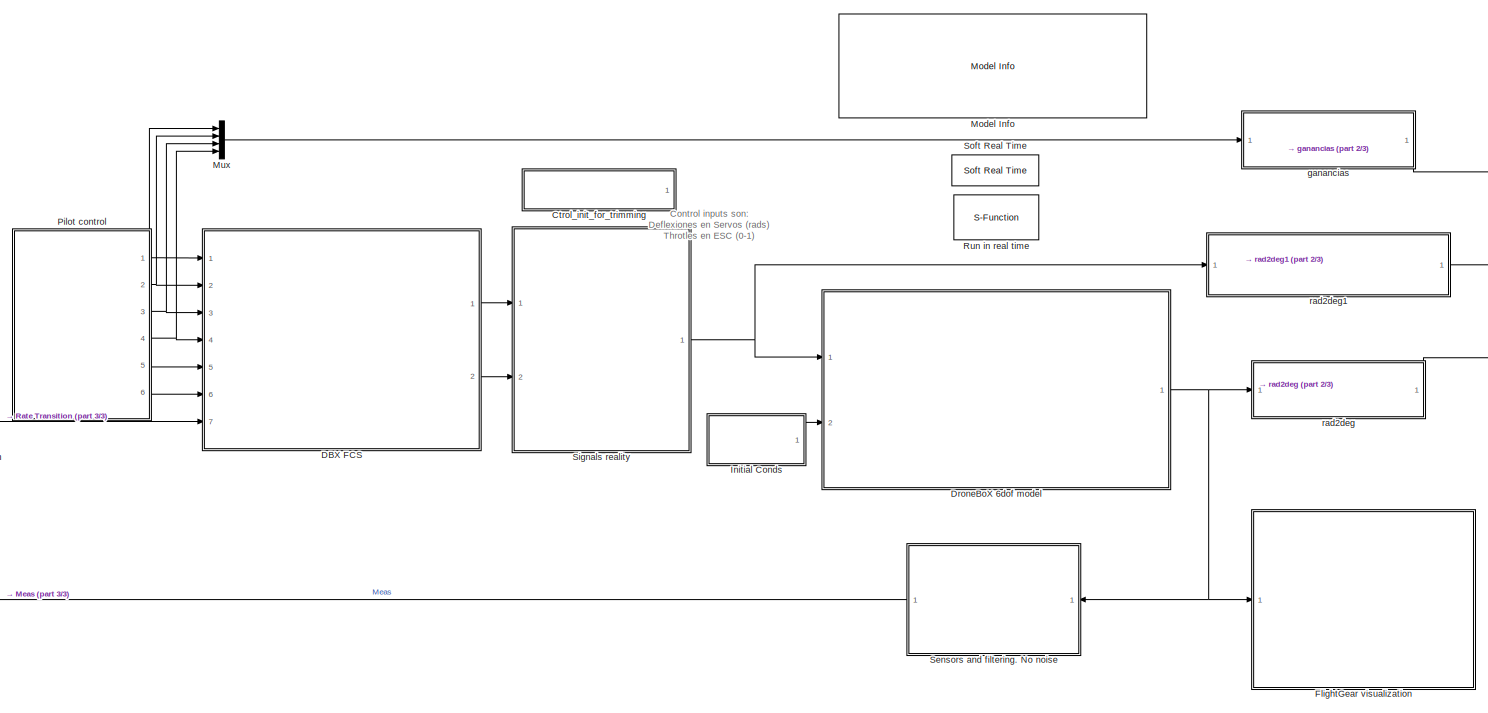
[diagram: root canvas - part 1/3, most of the canvas]
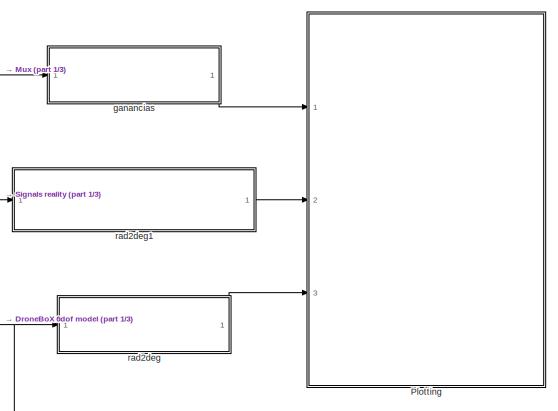
[diagram: root canvas - part 2/3, middle right region]
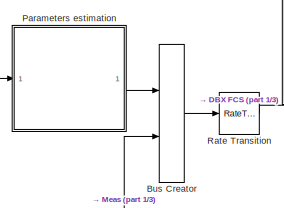
[diagram: root canvas - part 3/3, middle left region]
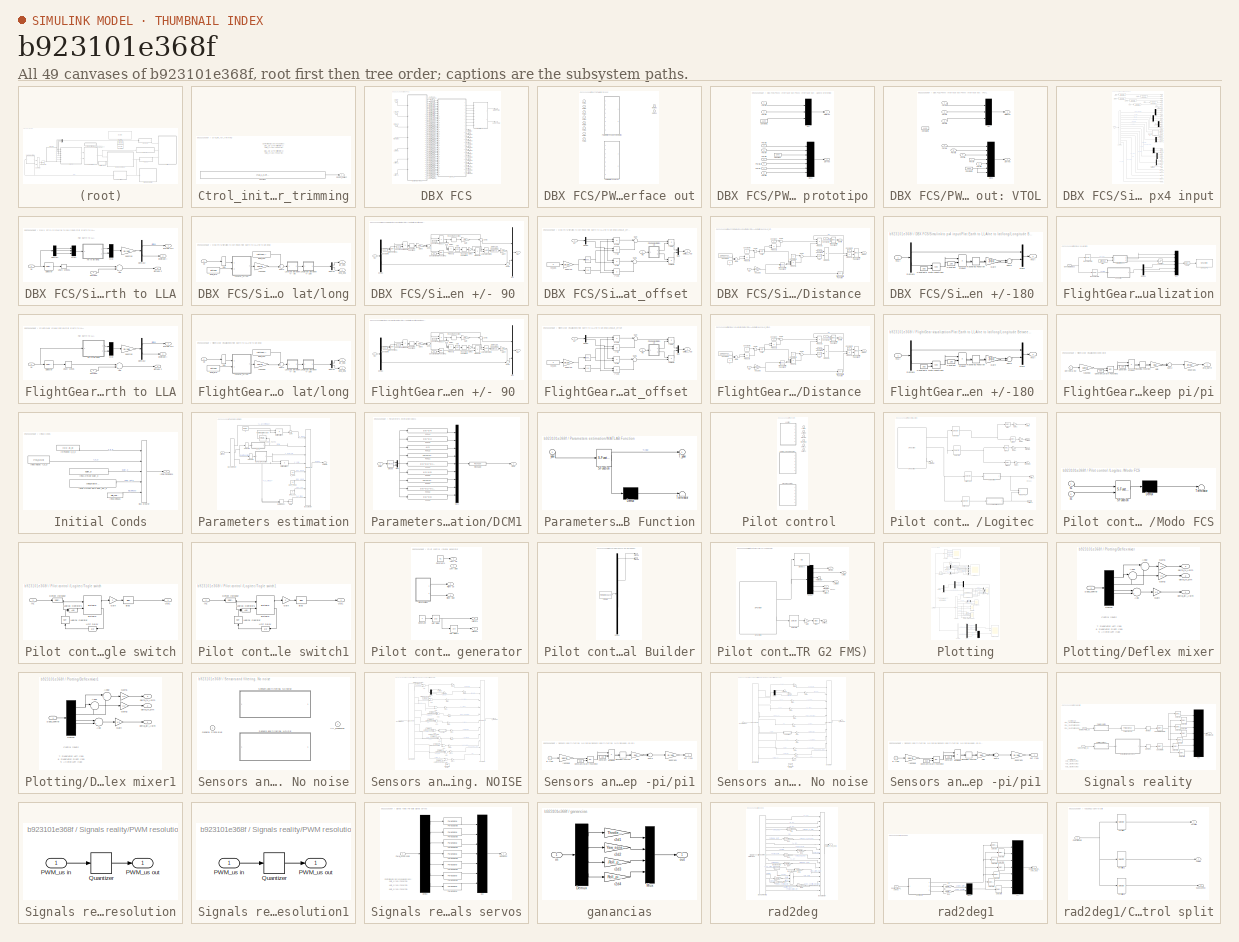
[diagram: thumbnail index - all 49 canvases of the model, root first then tree order]
MODEL slx_b923101e368f
KIND model
CONFIG AbsTol = auto
CONFIG FixedStep = T_sim
CONFIG MaxStep = auto
CONFIG MinStep = auto
CONFIG RelTol = 1e-3
CONFIG SampleTimeConstraint = Unconstrained
CONFIG Solver = ode2
CONFIG SolverMode = SingleTasking
CONFIG SolverName = ode2
CONFIG StartTime = 0.0
CONFIG StopTime = inf
BLOCK [BusCreator] Bus Creator
  DisplayOption = bar
  Inputs = 2
  Ports = [2, 1]
BLOCK [SubSystem] Ctrol_init_for_trimming
  Commented = on
  Ports = [0, 1]
  RequestExecContextInheritance = off
  TreatAsAtomicUnit = on
BLOCK [Constant] Ctrol_init_for_trimming/Constant
  Value = [tau_1_0,eta_1_0_servo,tau_2_0,eta_2_0_servo,tau_3_0,eta_3_0_servo,delta_rv_L_0_servo,delta_rv_R_0_servo,delta_a_L_0_servo,delta_a_R_0_servo]'
BLOCK [Outport] Ctrol_init_for_trimming/Control_deflect
  IconDisplay = Port number
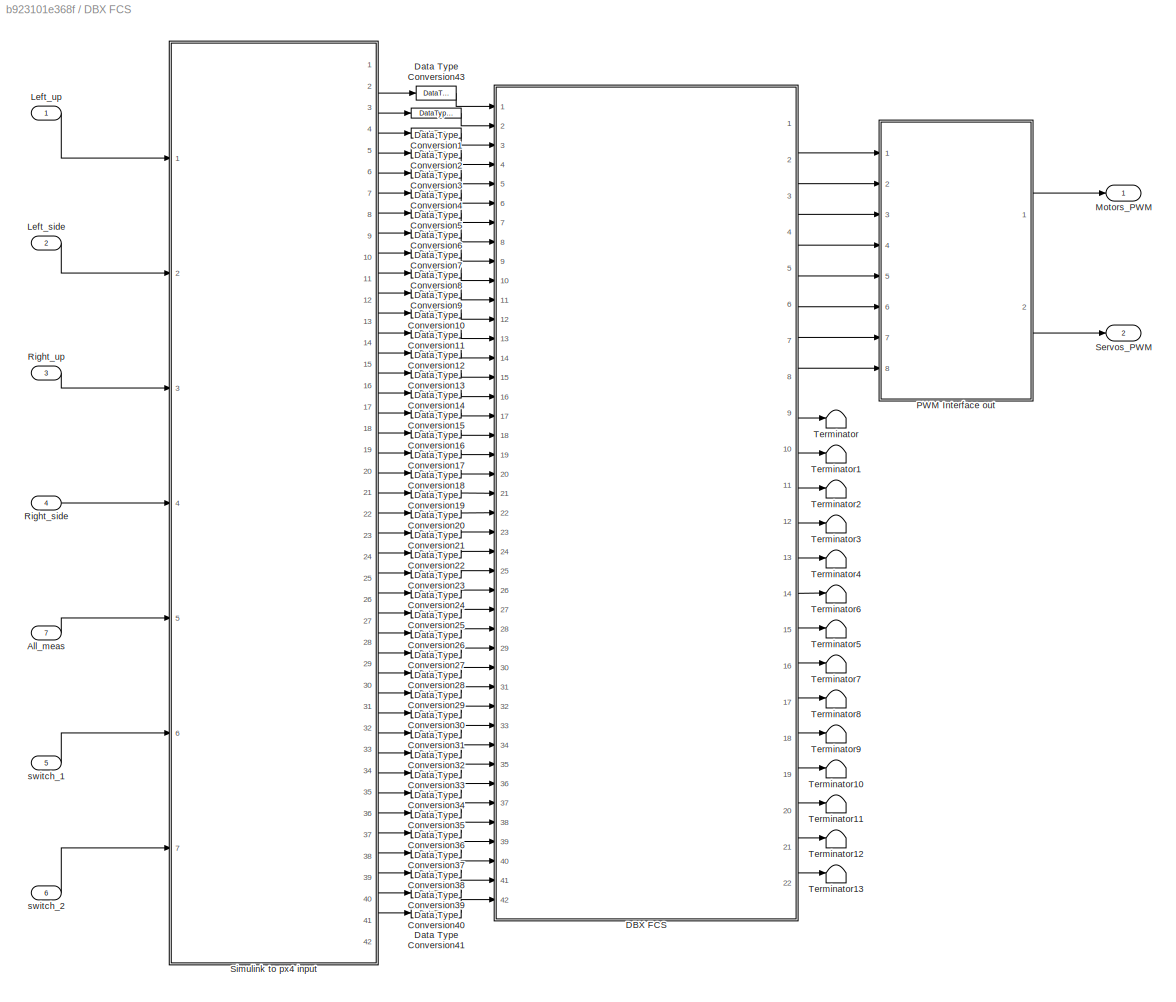
BLOCK [SubSystem] DBX FCS
  Ports = [7, 2]
  RequestExecContextInheritance = off
BLOCK [Inport] DBX FCS/All_meas
  IconDisplay = Port number
  Port = 7
BLOCK [ModelReference] DBX FCS/DBX  FCS
  CopyOfModelName = dbx_control_v0_05.slx
  DefaultDataLogging = on
  ModelNameDialog = dbx_control_v0_05.slx
  ModelReferenceVersion = 0.05
  Ports = [42, 22]
BLOCK [DataTypeConversion] DBX FCS/Data Type Conversion1
  OutDataTypeStr = double
  RndMeth = Floor
  SaturateOnIntegerOverflow = off
BLOCK [DataTypeConversion] DBX FCS/Data Type Conversion10
  OutDataTypeStr = double
  RndMeth = Floor
  SaturateOnIntegerOverflow = off
BLOCK [DataTypeConversion] DBX FCS/Data Type Conversion11
  OutDataTypeStr = double
  RndMeth = Floor
  SaturateOnIntegerOverflow = off
BLOCK [DataTypeConversion] DBX FCS/Data Type Conversion12
  OutDataTypeStr = double
  RndMeth = Floor
  SaturateOnIntegerOverflow = off
BLOCK [DataTypeConversion] DBX FCS/Data Type Conversion13
  OutDataTypeStr = double
  RndMeth = Floor
  SaturateOnIntegerOverflow = off
BLOCK [DataTypeConversion] DBX FCS/Data Type Conversion14
  OutDataTypeStr = double
  RndMeth = Floor
  SaturateOnIntegerOverflow = off
BLOCK [DataTypeConversion] DBX FCS/Data Type Conversion15
  OutDataTypeStr = double
  RndMeth = Floor
  SaturateOnIntegerOverflow = off
BLOCK [DataTypeConversion] DBX FCS/Data Type Conversion16
  OutDataTypeStr = double
  RndMeth = Floor
  SaturateOnIntegerOverflow = off
BLOCK [DataTypeConversion] DBX FCS/Data Type Conversion17
  OutDataTypeStr = double
  RndMeth = Floor
  SaturateOnIntegerOverflow = off
BLOCK [DataTypeConversion] DBX FCS/Data Type Conversion18
  OutDataTypeStr = double
  RndMeth = Floor
  SaturateOnIntegerOverflow = off
BLOCK [DataTypeConversion] DBX FCS/Data Type Conversion19
  OutDataTypeStr = double
  RndMeth = Floor
  SaturateOnIntegerOverflow = off
BLOCK [DataTypeConversion] DBX FCS/Data Type Conversion2
  OutDataTypeStr = double
  RndMeth = Floor
  SaturateOnIntegerOverflow = off
BLOCK [DataTypeConversion] DBX FCS/Data Type Conversion20
  OutDataTypeStr = double
  RndMeth = Floor
  SaturateOnIntegerOverflow = off
BLOCK [DataTypeConversion] DBX FCS/Data Type Conversion21
  OutDataTypeStr = double
  RndMeth = Floor
  SaturateOnIntegerOverflow = off
BLOCK [DataTypeConversion] DBX FCS/Data Type Conversion22
  OutDataTypeStr = double
  RndMeth = Floor
  SaturateOnIntegerOverflow = off
BLOCK [DataTypeConversion] DBX FCS/Data Type Conversion23
  OutDataTypeStr = double
  RndMeth = Floor
  SaturateOnIntegerOverflow = off
BLOCK [DataTypeConversion] DBX FCS/Data Type Conversion24
  OutDataTypeStr = double
  RndMeth = Floor
  SaturateOnIntegerOverflow = off
BLOCK [DataTypeConversion] DBX FCS/Data Type Conversion25
  OutDataTypeStr = double
  RndMeth = Floor
  SaturateOnIntegerOverflow = off
BLOCK [DataTypeConversion] DBX FCS/Data Type Conversion26
  OutDataTypeStr = double
  RndMeth = Floor
  SaturateOnIntegerOverflow = off
BLOCK [DataTypeConversion] DBX FCS/Data Type Conversion27
  OutDataTypeStr = double
  RndMeth = Floor
  SaturateOnIntegerOverflow = off
BLOCK [DataTypeConversion] DBX FCS/Data Type Conversion28
  OutDataTypeStr = double
  RndMeth = Floor
  SaturateOnIntegerOverflow = off
BLOCK [DataTypeConversion] DBX FCS/Data Type Conversion29
  OutDataTypeStr = double
  RndMeth = Floor
  SaturateOnIntegerOverflow = off
BLOCK [DataTypeConversion] DBX FCS/Data Type Conversion3
  OutDataTypeStr = double
  RndMeth = Floor
  SaturateOnIntegerOverflow = off
BLOCK [DataTypeConversion] DBX FCS/Data Type Conversion30
  OutDataTypeStr = double
  RndMeth = Floor
  SaturateOnIntegerOverflow = off
BLOCK [DataTypeConversion] DBX FCS/Data Type Conversion31
  OutDataTypeStr = double
  RndMeth = Floor
  SaturateOnIntegerOverflow = off
BLOCK [DataTypeConversion] DBX FCS/Data Type Conversion32
  OutDataTypeStr = double
  RndMeth = Floor
  SaturateOnIntegerOverflow = off
BLOCK [DataTypeConversion] DBX FCS/Data Type Conversion33
  OutDataTypeStr = double
  RndMeth = Floor
  SaturateOnIntegerOverflow = off
BLOCK [DataTypeConversion] DBX FCS/Data Type Conversion34
  OutDataTypeStr = double
  RndMeth = Floor
  SaturateOnIntegerOverflow = off
BLOCK [DataTypeConversion] DBX FCS/Data Type Conversion35
  OutDataTypeStr = double
  RndMeth = Floor
  SaturateOnIntegerOverflow = off
BLOCK [DataTypeConversion] DBX FCS/Data Type Conversion36
  OutDataTypeStr = double
  RndMeth = Floor
  SaturateOnIntegerOverflow = off
BLOCK [DataTypeConversion] DBX FCS/Data Type Conversion37
  OutDataTypeStr = double
  RndMeth = Floor
  SaturateOnIntegerOverflow = off
BLOCK [DataTypeConversion] DBX FCS/Data Type Conversion38
  OutDataTypeStr = double
  RndMeth = Floor
  SaturateOnIntegerOverflow = off
BLOCK [DataTypeConversion] DBX FCS/Data Type Conversion39
  OutDataTypeStr = double
  RndMeth = Floor
  SaturateOnIntegerOverflow = off
BLOCK [DataTypeConversion] DBX FCS/Data Type Conversion4
  OutDataTypeStr = double
  RndMeth = Floor
  SaturateOnIntegerOverflow = off
BLOCK [DataTypeConversion] DBX FCS/Data Type Conversion40
  OutDataTypeStr = double
  RndMeth = Floor
  SaturateOnIntegerOverflow = off
BLOCK [DataTypeConversion] DBX FCS/Data Type Conversion41
  OutDataTypeStr = double
  RndMeth = Floor
  SaturateOnIntegerOverflow = off
BLOCK [DataTypeConversion] DBX FCS/Data Type Conversion43
  OutDataTypeStr = double
  RndMeth = Floor
  SaturateOnIntegerOverflow = off
BLOCK [DataTypeConversion] DBX FCS/Data Type Conversion5
  OutDataTypeStr = double
  RndMeth = Floor
  SaturateOnIntegerOverflow = off
BLOCK [DataTypeConversion] DBX FCS/Data Type Conversion6
  OutDataTypeStr = double
  RndMeth = Floor
  SaturateOnIntegerOverflow = off
BLOCK [DataTypeConversion] DBX FCS/Data Type Conversion7
  OutDataTypeStr = double
  RndMeth = Floor
  SaturateOnIntegerOverflow = off
BLOCK [DataTypeConversion] DBX FCS/Data Type Conversion8
  OutDataTypeStr = double
  RndMeth = Floor
  SaturateOnIntegerOverflow = off
BLOCK [DataTypeConversion] DBX FCS/Data Type Conversion9
  OutDataTypeStr = double
  RndMeth = Floor
  SaturateOnIntegerOverflow = off
BLOCK [Inport] DBX FCS/Left_side
  IconDisplay = Port number
  Port = 2
BLOCK [Inport] DBX FCS/Left_up
  IconDisplay = Port number
BLOCK [Outport] DBX FCS/Motors_PWM
  IconDisplay = Port number
BLOCK [SubSystem] DBX FCS/PWM Interface out
  OverrideUsingVariant = Octubre
  Ports = [8, 2]
  RequestExecContextInheritance = off
  Variant = on
  VariantControl = Variant1
BLOCK [Outport] DBX FCS/PWM Interface out/Motores
  IconDisplay = Port number
BLOCK [SubSystem] DBX FCS/PWM Interface out/PWM Interface out: Agosto prototipo
  Ports = [8, 2]
  RequestExecContextInheritance = off
  TreatAsAtomicUnit = on
  VariantControl = Agosto
BLOCK [Constant] DBX FCS/PWM Interface out/PWM Interface out: Agosto prototipo/Constant
  Value = 1500
BLOCK [Constant] DBX FCS/PWM Interface out/PWM Interface out: Agosto prototipo/Constant1
  Value = 1100
BLOCK [Outport] DBX FCS/PWM Interface out/PWM Interface out: Agosto prototipo/Motores
  IconDisplay = Port number
BLOCK [Mux] DBX FCS/PWM Interface out/PWM Interface out: Agosto prototipo/Mux
  DisplayOption = bar
  Inputs = 3
  Ports = [3, 1]
BLOCK [Mux] DBX FCS/PWM Interface out/PWM Interface out: Agosto prototipo/Mux1
  DisplayOption = bar
  Inputs = 7
  Ports = [7, 1]
BLOCK [Inport] DBX FCS/PWM Interface out/PWM Interface out: Agosto prototipo/PWM1
  IconDisplay = Port number
BLOCK [Inport] DBX FCS/PWM Interface out/PWM Interface out: Agosto prototipo/PWM2
  IconDisplay = Port number
  Port = 2
BLOCK [Inport] DBX FCS/PWM Interface out/PWM Interface out: Agosto prototipo/PWM3
  IconDisplay = Port number
  Port = 3
BLOCK [Inport] DBX FCS/PWM Interface out/PWM Interface out: Agosto prototipo/PWM4
  IconDisplay = Port number
  Port = 4
BLOCK [Inport] DBX FCS/PWM Interface out/PWM Interface out: Agosto prototipo/PWM5
  IconDisplay = Port number
  Port = 5
BLOCK [Inport] DBX FCS/PWM Interface out/PWM Interface out: Agosto prototipo/PWM6
  IconDisplay = Port number
  Port = 6
BLOCK [Inport] DBX FCS/PWM Interface out/PWM Interface out: Agosto prototipo/PWM7
  IconDisplay = Port number
  Port = 7
BLOCK [Inport] DBX FCS/PWM Interface out/PWM Interface out: Agosto prototipo/PWM8
  IconDisplay = Port number
  Port = 8
BLOCK [Outport] DBX FCS/PWM Interface out/PWM Interface out: Agosto prototipo/Servos
  IconDisplay = Port number
  Port = 2
BLOCK [SubSystem] DBX FCS/PWM Interface out/PWM Interface out: VTOL
  Ports = [8, 2]
  RequestExecContextInheritance = off
  TreatAsAtomicUnit = on
  VariantControl = Octubre
BLOCK [Constant] DBX FCS/PWM Interface out/PWM Interface out: VTOL/Constant1
  Commented = on
  Value = 1100
BLOCK [Constant] DBX FCS/PWM Interface out/PWM Interface out: VTOL/Constant2
  Value = 1500
BLOCK [Outport] DBX FCS/PWM Interface out/PWM Interface out: VTOL/Motores
  IconDisplay = Port number
BLOCK [Mux] DBX FCS/PWM Interface out/PWM Interface out: VTOL/Mux
  DisplayOption = bar
  Inputs = 3
  Ports = [3, 1]
BLOCK [Mux] DBX FCS/PWM Interface out/PWM Interface out: VTOL/Mux1
  DisplayOption = bar
  Inputs = 7
  Ports = [7, 1]
BLOCK [Inport] DBX FCS/PWM Interface out/PWM Interface out: VTOL/PWM1
  IconDisplay = Port number
BLOCK [Inport] DBX FCS/PWM Interface out/PWM Interface out: VTOL/PWM2
  IconDisplay = Port number
  Port = 2
BLOCK [Inport] DBX FCS/PWM Interface out/PWM Interface out: VTOL/PWM3
  IconDisplay = Port number
  Port = 3
BLOCK [Inport] DBX FCS/PWM Interface out/PWM Interface out: VTOL/PWM4
  IconDisplay = Port number
  Port = 4
BLOCK [Inport] DBX FCS/PWM Interface out/PWM Interface out: VTOL/PWM5
  IconDisplay = Port number
  Port = 5
BLOCK [Inport] DBX FCS/PWM Interface out/PWM Interface out: VTOL/PWM6
  IconDisplay = Port number
  Port = 6
BLOCK [Inport] DBX FCS/PWM Interface out/PWM Interface out: VTOL/PWM7
  IconDisplay = Port number
  Port = 7
BLOCK [Inport] DBX FCS/PWM Interface out/PWM Interface out: VTOL/PWM8
  IconDisplay = Port number
  Port = 8
BLOCK [Outport] DBX FCS/PWM Interface out/PWM Interface out: VTOL/Servos
  IconDisplay = Port number
  Port = 2
BLOCK [Inport] DBX FCS/PWM Interface out/PWM1
  IconDisplay = Port number
BLOCK [Inport] DBX FCS/PWM Interface out/PWM2
  IconDisplay = Port number
  Port = 2
BLOCK [Inport] DBX FCS/PWM Interface out/PWM3
  IconDisplay = Port number
  Port = 3
BLOCK [Inport] DBX FCS/PWM Interface out/PWM4
  IconDisplay = Port number
  Port = 4
BLOCK [Inport] DBX FCS/PWM Interface out/PWM5
  IconDisplay = Port number
  Port = 5
BLOCK [Inport] DBX FCS/PWM Interface out/PWM6
  IconDisplay = Port number
  Port = 6
BLOCK [Inport] DBX FCS/PWM Interface out/PWM7
  IconDisplay = Port number
  Port = 7
BLOCK [Inport] DBX FCS/PWM Interface out/PWM8
  IconDisplay = Port number
  Port = 8
BLOCK [Outport] DBX FCS/PWM Interface out/Servos
  IconDisplay = Port number
  Port = 2
BLOCK [Inport] DBX FCS/Right_side
  IconDisplay = Port number
  Port = 4
BLOCK [Inport] DBX FCS/Right_up
  IconDisplay = Port number
  Port = 3
BLOCK [Outport] DBX FCS/Servos_PWM
  IconDisplay = Port number
  Port = 2
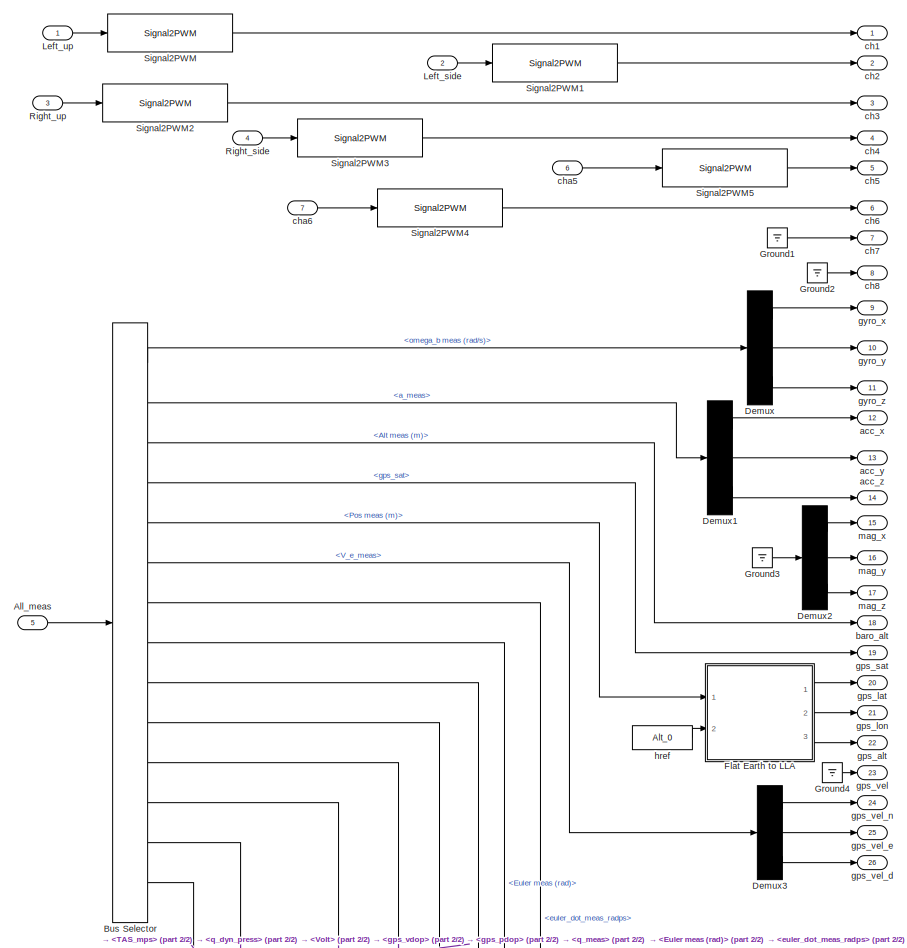
[diagram: DBX FCS/Simulink to px4 input - part 1/2, full width, top band]
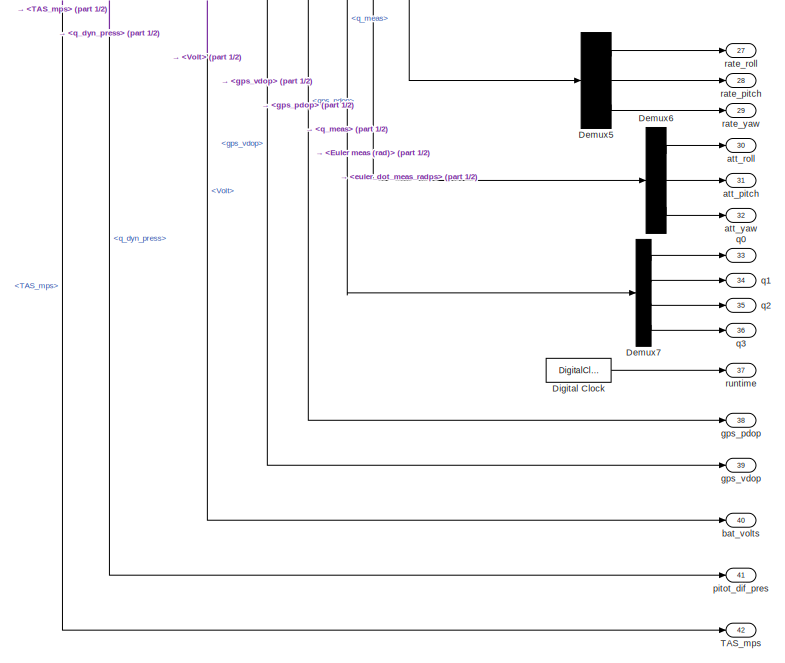
[diagram: DBX FCS/Simulink to px4 input - part 2/2, full width, bottom band]
BLOCK [SubSystem] DBX FCS/Simulink to px4 input
  Ports = [7, 42]
  RequestExecContextInheritance = off
  TreatAsAtomicUnit = on
BLOCK [Inport] DBX FCS/Simulink to px4 input/All_meas
  IconDisplay = Port number
  Port = 5
BLOCK [BusSelector] DBX FCS/Simulink to px4 input/Bus Selector
  OutputSignals = Meas.omega_b meas (rad/s),Params.a_meas,Meas.Alt meas (m),Params.gps_sat,Meas.Pos meas (m),Meas.V_e_meas,Meas.euler_dot_meas_radps,Meas.Euler meas (rad),Meas.q_meas,Params.gps_pdop,Params.gps_vdop,Meas.Volt,Meas.q_dyn_press,Params.TAS_mps
  Ports = [1, 14]
BLOCK [Demux] DBX FCS/Simulink to px4 input/Demux
  DisplayOption = bar
  Outputs = 3
  Ports = [1, 3]
BLOCK [Demux] DBX FCS/Simulink to px4 input/Demux1
  DisplayOption = bar
  Outputs = 3
  Ports = [1, 3]
BLOCK [Demux] DBX FCS/Simulink to px4 input/Demux2
  DisplayOption = bar
  Outputs = 3
  Ports = [1, 3]
BLOCK [Demux] DBX FCS/Simulink to px4 input/Demux3
  DisplayOption = bar
  Outputs = 3
  Ports = [1, 3]
BLOCK [Demux] DBX FCS/Simulink to px4 input/Demux5
  DisplayOption = bar
  Outputs = 3
  Ports = [1, 3]
BLOCK [Demux] DBX FCS/Simulink to px4 input/Demux6
  DisplayOption = bar
  Outputs = 3
  Ports = [1, 3]
BLOCK [Demux] DBX FCS/Simulink to px4 input/Demux7
  DisplayOption = bar
  Ports = [1, 4]
BLOCK [DigitalClock] DBX FCS/Simulink to px4 input/Digital Clock
  SampleTime = T_ctrl
BLOCK [SubSystem] DBX FCS/Simulink to px4 input/Flat Earth to LLA
  Ports = [2, 3]
  RequestExecContextInheritance = off
BLOCK [Sum] DBX FCS/Simulink to px4 input/Flat Earth to LLA/Add
  InputSameDT = off
  OutDataTypeStr = Inherit: Inherit via internal rule
  Ports = [2, 1]
  SaturateOnIntegerOverflow = off
BLOCK [Demux] DBX FCS/Simulink to px4 input/Flat Earth to LLA/Demux1
  Outputs = 3
  Ports = [1, 3]
BLOCK [Demux] DBX FCS/Simulink to px4 input/Flat Earth to LLA/Demux2
  Outputs = 2
  Ports = [1, 2]
BLOCK [Mux] DBX FCS/Simulink to px4 input/Flat Earth to LLA/Mux
  DisplayOption = bar
  Inputs = 2
  Ports = [2, 1]
BLOCK [Mux] DBX FCS/Simulink to px4 input/Flat Earth to LLA/Mux1
  DisplayOption = bar
  Inputs = 3
  Ports = [3, 1]
BLOCK [Selector] DBX FCS/Simulink to px4 input/Flat Earth to LLA/Selector
  Indices = 3
  InputPortWidth = 3
  Ports = [1, 1]
BLOCK [UnaryMinus] DBX FCS/Simulink to px4 input/Flat Earth to LLA/Unary Minus1
BLOCK [Inport] DBX FCS/Simulink to px4 input/Flat Earth to LLA/Xe
  IconDisplay = Port number
BLOCK [Outport] DBX FCS/Simulink to px4 input/Flat Earth to LLA/altitude h
  IconDisplay = Port number
  Port = 3
BLOCK [Inport] DBX FCS/Simulink to px4 input/Flat Earth to LLA/altitude0
  IconDisplay = Port number
  Port = 2
BLOCK [Gain] DBX FCS/Simulink to px4 input/Flat Earth to LLA/deg2rad
  Gain = pi/180
  OutDataTypeStr = Inherit: Inherit via internal rule
BLOCK [Outport] DBX FCS/Simulink to px4 input/Flat Earth to LLA/latitude mu
  IconDisplay = Port number
BLOCK [Outport] DBX FCS/Simulink to px4 input/Flat Earth to LLA/longitude l
  IconDisplay = Port number
  Port = 2
BLOCK [SubSystem] DBX FCS/Simulink to px4 input/Flat Earth to LLA/ne to lat//long
  Ports = [1, 2]
  RequestExecContextInheritance = off
BLOCK [Demux] DBX FCS/Simulink to px4 input/Flat Earth to LLA/ne to lat//long/Demux
  DisplayOption = bar
  Outputs = 2
  Ports = [1, 2]
BLOCK [SubSystem] DBX FCS/Simulink to px4 input/Flat Earth to LLA/ne to lat//long/Latitude Between +//- 90 
  Ports = [1, 1]
  RequestExecContextInheritance = off
  TreatAsAtomicUnit = on
BLOCK [Constant] DBX FCS/Simulink to px4 input/Flat Earth to LLA/ne to lat//long/Latitude Between +//- 90 /Constant1
  Value = 180
BLOCK [Constant] DBX FCS/Simulink to px4 input/Flat Earth to LLA/ne to lat//long/Latitude Between +//- 90 /Constant3
  Value = 90
BLOCK [Constant] DBX FCS/Simulink to px4 input/Flat Earth to LLA/ne to lat//long/Latitude Between +//- 90 /Constant4
  Value = 180
BLOCK [Constant] DBX FCS/Simulink to px4 input/Flat Earth to LLA/ne to lat//long/Latitude Between +//- 90 /Constant5
  Value = 360
BLOCK [DataTypeConversion] DBX FCS/Simulink to px4 input/Flat Earth to LLA/ne to lat//long/Latitude Between +//- 90 /Data Type Conversion
  RndMeth = Floor
  SaturateOnIntegerOverflow = off
BLOCK [Demux] DBX FCS/Simulink to px4 input/Flat Earth to LLA/ne to lat//long/Latitude Between +//- 90 /Demux
  DisplayOption = bar
  Outputs = 2
  Ports = [1, 2]
BLOCK [Gain] DBX FCS/Simulink to px4 input/Flat Earth to LLA/ne to lat//long/Latitude Between +//- 90 /Gain
  Gain = 180
  OutDataTypeStr = Inherit: Inherit via internal rule
  ParamDataTypeStr = Inherit: Inherit via internal rule
  SaturateOnIntegerOverflow = off
BLOCK [Gain] DBX FCS/Simulink to px4 input/Flat Earth to LLA/ne to lat//long/Latitude Between +//- 90 /Gain1
  Gain = 2
  OutDataTypeStr = Inherit: Inherit via internal rule
  ParamDataTypeStr = Inherit: Inherit via internal rule
  SaturateOnIntegerOverflow = off
BLOCK [Gain] DBX FCS/Simulink to px4 input/Flat Earth to LLA/ne to lat//long/Latitude Between +//- 90 /Gain2
  Gain = 2
  OutDataTypeStr = Inherit: Inherit via internal rule
  ParamDataTypeStr = Inherit: Inherit via internal rule
  SaturateOnIntegerOverflow = off
BLOCK [Gain] DBX FCS/Simulink to px4 input/Flat Earth to LLA/ne to lat//long/Latitude Between +//- 90 /Gain3
  Gain = 360
  OutDataTypeStr = Inherit: Inherit via internal rule
  ParamDataTypeStr = Inherit: Inherit via internal rule
  SaturateOnIntegerOverflow = off
BLOCK [Gain] DBX FCS/Simulink to px4 input/Flat Earth to LLA/ne to lat//long/Latitude Between +//- 90 /Gain4
  Gain = 180
  OutDataTypeStr = Inherit: Inherit via internal rule
  ParamDataTypeStr = Inherit: Inherit via internal rule
  SaturateOnIntegerOverflow = off
BLOCK [Logic] DBX FCS/Simulink to px4 input/Flat Earth to LLA/ne to lat//long/Latitude Between +//- 90 /Logical Operator1
  AllPortsSameDT = off
  OutDataTypeStr = boolean
  Ports = [2, 1]
BLOCK [Math] DBX FCS/Simulink to px4 input/Flat Earth to LLA/ne to lat//long/Latitude Between +//- 90 /Math Function1
  Operator = rem
  Ports = [2, 1]
BLOCK [Math] DBX FCS/Simulink to px4 input/Flat Earth to LLA/ne to lat//long/Latitude Between +//- 90 /Math Function2
  Operator = rem
  Ports = [2, 1]
BLOCK [Mux] DBX FCS/Simulink to px4 input/Flat Earth to LLA/ne to lat//long/Latitude Between +//- 90 /Mux
  DisplayOption = bar
  Inputs = 2
  Ports = [2, 1]
BLOCK [Product] DBX FCS/Simulink to px4 input/Flat Earth to LLA/ne to lat//long/Latitude Between +//- 90 /Product
  InputSameDT = off
  Inputs = */
  OutDataTypeStr = Inherit: Inherit via internal rule
  Ports = [2, 1]
  SaturateOnIntegerOverflow = off
BLOCK [Product] DBX FCS/Simulink to px4 input/Flat Earth to LLA/ne to lat//long/Latitude Between +//- 90 /Product1
  InputSameDT = off
  OutDataTypeStr = Inherit: Inherit via internal rule
  Ports = [2, 1]
  SaturateOnIntegerOverflow = off
BLOCK [Product] DBX FCS/Simulink to px4 input/Flat Earth to LLA/ne to lat//long/Latitude Between +//- 90 /Product2
  InputSameDT = off
  Inputs = */
  OutDataTypeStr = Inherit: Inherit via internal rule
  Ports = [2, 1]
  SaturateOnIntegerOverflow = off
BLOCK [Product] DBX FCS/Simulink to px4 input/Flat Earth to LLA/ne to lat//long/Latitude Between +//- 90 /Product3
  InputSameDT = off
  OutDataTypeStr = Inherit: Inherit via internal rule
  Ports = [2, 1]
  SaturateOnIntegerOverflow = off
BLOCK [Rounding] DBX FCS/Simulink to px4 input/Flat Earth to LLA/ne to lat//long/Latitude Between +//- 90 /Rounding Function
  Operator = fix
BLOCK [Rounding] DBX FCS/Simulink to px4 input/Flat Earth to LLA/ne to lat//long/Latitude Between +//- 90 /Rounding Function1
  Operator = fix
BLOCK [Rounding] DBX FCS/Simulink to px4 input/Flat Earth to LLA/ne to lat//long/Latitude Between +//- 90 /Rounding Function2
  Operator = fix
BLOCK [Sum] DBX FCS/Simulink to px4 input/Flat Earth to LLA/ne to lat//long/Latitude Between +//- 90 /Sum1
  IconShape = round
  InputSameDT = off
  Inputs = |-+
  OutDataTypeStr = Inherit: Inherit via internal rule
  Ports = [2, 1]
  SaturateOnIntegerOverflow = off
BLOCK [Sum] DBX FCS/Simulink to px4 input/Flat Earth to LLA/ne to lat//long/Latitude Between +//- 90 /Sum2
  IconShape = round
  InputSameDT = off
  Inputs = +--
  OutDataTypeStr = Inherit: Inherit via internal rule
  Ports = [3, 1]
  SaturateOnIntegerOverflow = off
BLOCK [Sum] DBX FCS/Simulink to px4 input/Flat Earth to LLA/ne to lat//long/Latitude Between +//- 90 /Sum3
  IconShape = round
  InputSameDT = off
  Inputs = ++|
  OutDataTypeStr = Inherit: Inherit via internal rule
  Ports = [2, 1]
  SaturateOnIntegerOverflow = off
BLOCK [Inport] DBX FCS/Simulink to px4 input/Flat Earth to LLA/ne to lat//long/Latitude Between +//- 90 /mu l
  IconDisplay = Port number
BLOCK [Outport] DBX FCS/Simulink to px4 input/Flat Earth to LLA/ne to lat//long/Latitude Between +//- 90 /mu l 
  IconDisplay = Port number
BLOCK [Sqrt] DBX FCS/Simulink to px4 input/Flat Earth to LLA/ne to lat//long/Latitude Between +//- 90 /sqrt
  AlgorithmType = Newton-Raphson
BLOCK [SubSystem] DBX FCS/Simulink to px4 input/Flat Earth to LLA/ne to lat//long/LongLat_offset 
  Ports = [2, 1]
  RequestExecContextInheritance = off
  TreatAsAtomicUnit = on
BLOCK [Trigonometry] DBX FCS/Simulink to px4 input/Flat Earth to LLA/ne to lat//long/LongLat_offset / 
  Ports = [1, 1]
BLOCK [Trigonometry] DBX FCS/Simulink to px4 input/Flat Earth to LLA/ne to lat//long/LongLat_offset /  
  Operator = cos
  Ports = [1, 1]
BLOCK [Outport] DBX FCS/Simulink to px4 input/Flat Earth to LLA/ne to lat//long/LongLat_offset /DeltaLL_rad
  IconDisplay = Port number
BLOCK [Demux] DBX FCS/Simulink to px4 input/Flat Earth to LLA/ne to lat//long/LongLat_offset /Demux
  DisplayOption = bar
  Outputs = 2
  Ports = [1, 2]
BLOCK [SubSystem] DBX FCS/Simulink to px4 input/Flat Earth to LLA/ne to lat//long/LongLat_offset /Find Radian//Distance 
  Ports = [1, 2]
  RequestExecContextInheritance = off
  TreatAsAtomicUnit = on
BLOCK [Constant] DBX FCS/Simulink to px4 input/Flat Earth to LLA/ne to lat//long/LongLat_offset /Find Radian//Distance /Constant
BLOCK [Constant] DBX FCS/Simulink to px4 input/Flat Earth to LLA/ne to lat//long/LongLat_offset /Find Radian//Distance /Constant1
  Value = 6378137
BLOCK [Constant] DBX FCS/Simulink to px4 input/Flat Earth to LLA/ne to lat//long/LongLat_offset /Find Radian//Distance /Constant2
BLOCK [Constant] DBX FCS/Simulink to px4 input/Flat Earth to LLA/ne to lat//long/LongLat_offset /Find Radian//Distance /Constant3
BLOCK [Constant] DBX FCS/Simulink to px4 input/Flat Earth to LLA/ne to lat//long/LongLat_offset /Find Radian//Distance /Constant4
  Value = 1/298.257223563
BLOCK [Constant] DBX FCS/Simulink to px4 input/Flat Earth to LLA/ne to lat//long/LongLat_offset /Find Radian//Distance /Constant5
BLOCK [Constant] DBX FCS/Simulink to px4 input/Flat Earth to LLA/ne to lat//long/LongLat_offset /Find Radian//Distance /Constant6
BLOCK [Product] DBX FCS/Simulink to px4 input/Flat Earth to LLA/ne to lat//long/LongLat_offset /Find Radian//Distance /Product1
  InputSameDT = off
  Inputs = */
  OutDataTypeStr = Inherit: Inherit via internal rule
  Ports = [2, 1]
  SaturateOnIntegerOverflow = off
BLOCK [Product] DBX FCS/Simulink to px4 input/Flat Earth to LLA/ne to lat//long/LongLat_offset /Find Radian//Distance /Product2
  InputSameDT = off
  OutDataTypeStr = Inherit: Inherit via internal rule
  Ports = [2, 1]
  SaturateOnIntegerOverflow = off
BLOCK [Product] DBX FCS/Simulink to px4 input/Flat Earth to LLA/ne to lat//long/LongLat_offset /Find Radian//Distance /Product3
  InputSameDT = off
  Inputs = **/
  OutDataTypeStr = Inherit: Inherit via internal rule
  Ports = [3, 1]
  SaturateOnIntegerOverflow = off
BLOCK [Product] DBX FCS/Simulink to px4 input/Flat Earth to LLA/ne to lat//long/LongLat_offset /Find Radian//Distance /Product4
  InputSameDT = off
  OutDataTypeStr = Inherit: Inherit via internal rule
  Ports = [2, 1]
  SaturateOnIntegerOverflow = off
BLOCK [Product] DBX FCS/Simulink to px4 input/Flat Earth to LLA/ne to lat//long/LongLat_offset /Find Radian//Distance /Product5
  InputSameDT = off
  OutDataTypeStr = Inherit: Inherit via internal rule
  Ports = [2, 1]
  SaturateOnIntegerOverflow = off
BLOCK [Product] DBX FCS/Simulink to px4 input/Flat Earth to LLA/ne to lat//long/LongLat_offset /Find Radian//Distance /Product6
  InputSameDT = off
  Inputs = 4
  OutDataTypeStr = Inherit: Inherit via internal rule
  Ports = [4, 1]
  SaturateOnIntegerOverflow = off
BLOCK [Sum] DBX FCS/Simulink to px4 input/Flat Earth to LLA/ne to lat//long/LongLat_offset /Find Radian//Distance /Sum
  IconShape = round
  InputSameDT = off
  Inputs = -+
  OutDataTypeStr = Inherit: Inherit via internal rule
  Ports = [2, 1]
  SaturateOnIntegerOverflow = off
BLOCK [Sum] DBX FCS/Simulink to px4 input/Flat Earth to LLA/ne to lat//long/LongLat_offset /Find Radian//Distance /Sum1
  IconShape = round
  InputSameDT = off
  Inputs = |+-
  OutDataTypeStr = Inherit: Inherit via internal rule
  Ports = [2, 1]
  SaturateOnIntegerOverflow = off
BLOCK [Sum] DBX FCS/Simulink to px4 input/Flat Earth to LLA/ne to lat//long/LongLat_offset /Find Radian//Distance /Sum2
  IconShape = round
  InputSameDT = off
  Inputs = |+-
  OutDataTypeStr = Inherit: Inherit via internal rule
  Ports = [2, 1]
  SaturateOnIntegerOverflow = off
BLOCK [Sum] DBX FCS/Simulink to px4 input/Flat Earth to LLA/ne to lat//long/LongLat_offset /Find Radian//Distance /Sum3
  IconShape = round
  InputSameDT = off
  Inputs = |+-
  OutDataTypeStr = Inherit: Inherit via internal rule
  Ports = [2, 1]
  SaturateOnIntegerOverflow = off
BLOCK [Trigonometry] DBX FCS/Simulink to px4 input/Flat Earth to LLA/ne to lat//long/LongLat_offset /Find Radian//Distance /Trigonometric Function
  Operator = cos
  Ports = [1, 1]
BLOCK [Trigonometry] DBX FCS/Simulink to px4 input/Flat Earth to LLA/ne to lat//long/LongLat_offset /Find Radian//Distance /Trigonometric Function1
  Operator = atan2
  Ports = [2, 1]
BLOCK [Trigonometry] DBX FCS/Simulink to px4 input/Flat Earth to LLA/ne to lat//long/LongLat_offset /Find Radian//Distance /Trigonometric Function2
  Operator = atan2
  Ports = [2, 1]
BLOCK [Trigonometry] DBX FCS/Simulink to px4 input/Flat Earth to LLA/ne to lat//long/LongLat_offset /Find Radian//Distance /Trigonometric Function3
  Ports = [1, 1]
BLOCK [Outport] DBX FCS/Simulink to px4 input/Flat Earth to LLA/ne to lat//long/LongLat_offset /Find Radian//Distance /dEast
  IconDisplay = Port number
  Port = 2
BLOCK [Outport] DBX FCS/Simulink to px4 input/Flat Earth to LLA/ne to lat//long/LongLat_offset /Find Radian//Distance /dNorth
  IconDisplay = Port number
BLOCK [Gain] DBX FCS/Simulink to px4 input/Flat Earth to LLA/ne to lat//long/LongLat_offset /Find Radian//Distance /deg2rad
  Gain = pi/180
BLOCK [Constant] DBX FCS/Simulink to px4 input/Flat Earth to LLA/ne to lat//long/LongLat_offset /Find Radian//Distance /f
BLOCK [Inport] DBX FCS/Simulink to px4 input/Flat Earth to LLA/ne to lat//long/LongLat_offset /Find Radian//Distance /mu
  IconDisplay = Port number
BLOCK [Sqrt] DBX FCS/Simulink to px4 input/Flat Earth to LLA/ne to lat//long/LongLat_offset /Find Radian//Distance /sqrt
  AlgorithmType = Newton-Raphson
BLOCK [Sqrt] DBX FCS/Simulink to px4 input/Flat Earth to LLA/ne to lat//long/LongLat_offset /Find Radian//Distance /sqrt1
  AlgorithmType = Newton-Raphson
BLOCK [Mux] DBX FCS/Simulink to px4 input/Flat Earth to LLA/ne to lat//long/LongLat_offset /Mux
  DisplayOption = bar
  Inputs = 2
  Ports = [2, 1]
BLOCK [Sum] DBX FCS/Simulink to px4 input/Flat Earth to LLA/ne to lat//long/LongLat_offset /Sum
  IconShape = round
  InputSameDT = off
  Inputs = |+-
  OutDataTypeStr = Inherit: Inherit via internal rule
  Ports = [2, 1]
  SaturateOnIntegerOverflow = off
BLOCK [Sum] DBX FCS/Simulink to px4 input/Flat Earth to LLA/ne to lat//long/LongLat_offset /Sum1
  IconShape = round
  InputSameDT = off
  Inputs = |++
  OutDataTypeStr = Inherit: Inherit via internal rule
  Ports = [2, 1]
  SaturateOnIntegerOverflow = off
BLOCK [Inport] DBX FCS/Simulink to px4 input/Flat Earth to LLA/ne to lat//long/LongLat_offset /XY
  IconDisplay = Port number
BLOCK [Gain] DBX FCS/Simulink to px4 input/Flat Earth to LLA/ne to lat//long/LongLat_offset /deg2rad
  Gain = pi/180
BLOCK [Inport] DBX FCS/Simulink to px4 input/Flat Earth to LLA/ne to lat//long/LongLat_offset /mu
  IconDisplay = Port number
  Port = 2
BLOCK [Product] DBX FCS/Simulink to px4 input/Flat Earth to LLA/ne to lat//long/LongLat_offset /rad lat
  InputSameDT = off
  OutDataTypeStr = Inherit: Inherit via internal rule
  Ports = [2, 1]
  SaturateOnIntegerOverflow = off
BLOCK [Product] DBX FCS/Simulink to px4 input/Flat Earth to LLA/ne to lat//long/LongLat_offset /rad long 
  InputSameDT = off
  OutDataTypeStr = Inherit: Inherit via internal rule
  Ports = [2, 1]
  SaturateOnIntegerOverflow = off
BLOCK [Constant] DBX FCS/Simulink to px4 input/Flat Earth to LLA/ne to lat//long/LongLat_offset /ref_pos
  Value = 0
BLOCK [Product] DBX FCS/Simulink to px4 input/Flat Earth to LLA/ne to lat//long/LongLat_offset /x*cos
  InputSameDT = off
  OutDataTypeStr = Inherit: Inherit via internal rule
  Ports = [2, 1]
  SaturateOnIntegerOverflow = off
BLOCK [Product] DBX FCS/Simulink to px4 input/Flat Earth to LLA/ne to lat//long/LongLat_offset /x*sin
  InputSameDT = off
  OutDataTypeStr = Inherit: Inherit via internal rule
  Ports = [2, 1]
  SaturateOnIntegerOverflow = off
BLOCK [Product] DBX FCS/Simulink to px4 input/Flat Earth to LLA/ne to lat//long/LongLat_offset /y*cos
  InputSameDT = off
  OutDataTypeStr = Inherit: Inherit via internal rule
  Ports = [2, 1]
  SaturateOnIntegerOverflow = off
BLOCK [Product] DBX FCS/Simulink to px4 input/Flat Earth to LLA/ne to lat//long/LongLat_offset /y*sin
  InputSameDT = off
  OutDataTypeStr = Inherit: Inherit via internal rule
  Ports = [2, 1]
  SaturateOnIntegerOverflow = off
BLOCK [SubSystem] DBX FCS/Simulink to px4 input/Flat Earth to LLA/ne to lat//long/Longitude Between +//-180 
  Ports = [1, 1]
  RequestExecContextInheritance = off
  TreatAsAtomicUnit = on
BLOCK [Constant] DBX FCS/Simulink to px4 input/Flat Earth to LLA/ne to lat//long/Longitude Between +//-180 /Constant
  Value = 180
BLOCK [Constant] DBX FCS/Simulink to px4 input/Flat Earth to LLA/ne to lat//long/Longitude Between +//-180 /Constant2
  Value = 360
BLOCK [Demux] DBX FCS/Simulink to px4 input/Flat Earth to LLA/ne to lat//long/Longitude Between +//-180 /Demux1
  DisplayOption = bar
  Outputs = 2
  Ports = [1, 2]
BLOCK [Gain] DBX FCS/Simulink to px4 input/Flat Earth to LLA/ne to lat//long/Longitude Between +//-180 /Gain
  Gain = 360
  OutDataTypeStr = Inherit: Inherit via internal rule
  ParamDataTypeStr = Inherit: Inherit via internal rule
  SaturateOnIntegerOverflow = off
BLOCK [Math] DBX FCS/Simulink to px4 input/Flat Earth to LLA/ne to lat//long/Longitude Between +//-180 /Math Function2
  Operator = rem
  Ports = [2, 1]
BLOCK [Mux] DBX FCS/Simulink to px4 input/Flat Earth to LLA/ne to lat//long/Longitude Between +//-180 /Mux1
  DisplayOption = bar
  Inputs = 2
  Ports = [2, 1]
BLOCK [Product] DBX FCS/Simulink to px4 input/Flat Earth to LLA/ne to lat//long/Longitude Between +//-180 /Product
  InputSameDT = off
  Inputs = */
  OutDataTypeStr = Inherit: Inherit via internal rule
  Ports = [2, 1]
  SaturateOnIntegerOverflow = off
BLOCK [Rounding] DBX FCS/Simulink to px4 input/Flat Earth to LLA/ne to lat//long/Longitude Between +//-180 /Rounding Function
  Operator = fix
BLOCK [Sum] DBX FCS/Simulink to px4 input/Flat Earth to LLA/ne to lat//long/Longitude Between +//-180 /Sum2
  IconShape = round
  InputSameDT = off
  Inputs = |-+
  OutDataTypeStr = Inherit: Inherit via internal rule
  Ports = [2, 1]
  SaturateOnIntegerOverflow = off
BLOCK [Inport] DBX FCS/Simulink to px4 input/Flat Earth to LLA/ne to lat//long/Longitude Between +//-180 /mu l
  IconDisplay = Port number
BLOCK [Outport] DBX FCS/Simulink to px4 input/Flat Earth to LLA/ne to lat//long/Longitude Between +//-180 /mu l 
  IconDisplay = Port number
BLOCK [Selector] DBX FCS/Simulink to px4 input/Flat Earth to LLA/ne to lat//long/Sel1
  Indices = [1,2]
  InputPortWidth = 3
  Ports = [1, 1]
BLOCK [Sum] DBX FCS/Simulink to px4 input/Flat Earth to LLA/ne to lat//long/Sum2
  IconShape = round
  InputSameDT = off
  Inputs = ++|
  OutDataTypeStr = Inherit: Inherit via internal rule
  Ports = [2, 1]
  SaturateOnIntegerOverflow = off
BLOCK [Inport] DBX FCS/Simulink to px4 input/Flat Earth to LLA/ne to lat//long/Xe
  IconDisplay = Port number
BLOCK [Constant] DBX FCS/Simulink to px4 input/Flat Earth to LLA/ne to lat//long/initial_latg
  Value = latitude
BLOCK [Constant] DBX FCS/Simulink to px4 input/Flat Earth to LLA/ne to lat//long/initial_pos
  Value = [latitude,longitude]
BLOCK [Outport] DBX FCS/Simulink to px4 input/Flat Earth to LLA/ne to lat//long/lat_deg
  IconDisplay = Port number
BLOCK [Outport] DBX FCS/Simulink to px4 input/Flat Earth to LLA/ne to lat//long/long_deg
  IconDisplay = Port number
  Port = 2
BLOCK [Gain] DBX FCS/Simulink to px4 input/Flat Earth to LLA/ne to lat//long/rad2deg
  Gain = 180/pi
BLOCK [Ground] DBX FCS/Simulink to px4 input/Ground1
BLOCK [Ground] DBX FCS/Simulink to px4 input/Ground2
BLOCK [Ground] DBX FCS/Simulink to px4 input/Ground3
BLOCK [Ground] DBX FCS/Simulink to px4 input/Ground4
BLOCK [Inport] DBX FCS/Simulink to px4 input/Left_side
  IconDisplay = Port number
  Port = 2
BLOCK [Inport] DBX FCS/Simulink to px4 input/Left_up
  IconDisplay = Port number
BLOCK [Inport] DBX FCS/Simulink to px4 input/Right_side
  IconDisplay = Port number
  Port = 4
BLOCK [Inport] DBX FCS/Simulink to px4 input/Right_up
  IconDisplay = Port number
  Port = 3
BLOCK [Reference] DBX FCS/Simulink to px4 input/Signal2PWM  REF=DBX_model/Signal2PWM
  Ports = [1, 1]
  SourceBlock = DBX_model/Signal2PWM
  a = 2000
  b = 1
  c = 1000
  d = -1
BLOCK [Reference] DBX FCS/Simulink to px4 input/Signal2PWM1  REF=DBX_model/Signal2PWM
  Ports = [1, 1]
  SourceBlock = DBX_model/Signal2PWM
  a = 2000
  b = 1
  c = 1000
  d = -1
BLOCK [Reference] DBX FCS/Simulink to px4 input/Signal2PWM2  REF=DBX_model/Signal2PWM
  Ports = [1, 1]
  SourceBlock = DBX_model/Signal2PWM
  a = 2000
  b = 1
  c = 1000
  d = -1
BLOCK [Reference] DBX FCS/Simulink to px4 input/Signal2PWM3  REF=DBX_model/Signal2PWM
  Ports = [1, 1]
  SourceBlock = DBX_model/Signal2PWM
  a = 2000
  b = 1
  c = 1000
  d = -1
BLOCK [Reference] DBX FCS/Simulink to px4 input/Signal2PWM4  REF=DBX_model/Signal2PWM
  Ports = [1, 1]
  SourceBlock = DBX_model/Signal2PWM
  a = 2000
  b = 1
  c = 1000
  d = -1
BLOCK [Reference] DBX FCS/Simulink to px4 input/Signal2PWM5  REF=DBX_model/Signal2PWM
  Ports = [1, 1]
  SourceBlock = DBX_model/Signal2PWM
  a = 2000
  b = 1
  c = 1000
  d = -1
BLOCK [Outport] DBX FCS/Simulink to px4 input/TAS_mps
  IconDisplay = Port number
  Port = 42
BLOCK [Outport] DBX FCS/Simulink to px4 input/acc_x
  IconDisplay = Port number
  Port = 12
BLOCK [Outport] DBX FCS/Simulink to px4 input/acc_y
  IconDisplay = Port number
  Port = 13
BLOCK [Outport] DBX FCS/Simulink to px4 input/acc_z
  IconDisplay = Port number
  Port = 14
BLOCK [Outport] DBX FCS/Simulink to px4 input/att_pitch
  IconDisplay = Port number
  Port = 31
BLOCK [Outport] DBX FCS/Simulink to px4 input/att_roll
  IconDisplay = Port number
  Port = 30
BLOCK [Outport] DBX FCS/Simulink to px4 input/att_yaw
  IconDisplay = Port number
  Port = 32
BLOCK [Outport] DBX FCS/Simulink to px4 input/baro_alt
  IconDisplay = Port number
  Port = 18
BLOCK [Outport] DBX FCS/Simulink to px4 input/bat_volts
  IconDisplay = Port number
  Port = 40
BLOCK [Outport] DBX FCS/Simulink to px4 input/ch1
  IconDisplay = Port number
BLOCK [Outport] DBX FCS/Simulink to px4 input/ch2
  IconDisplay = Port number
  Port = 2
BLOCK [Outport] DBX FCS/Simulink to px4 input/ch3
  IconDisplay = Port number
  Port = 3
BLOCK [Outport] DBX FCS/Simulink to px4 input/ch4
  IconDisplay = Port number
  Port = 4
BLOCK [Outport] DBX FCS/Simulink to px4 input/ch5
  IconDisplay = Port number
  Port = 5
BLOCK [Outport] DBX FCS/Simulink to px4 input/ch6
  IconDisplay = Port number
  Port = 6
BLOCK [Outport] DBX FCS/Simulink to px4 input/ch7
  IconDisplay = Port number
  Port = 7
BLOCK [Outport] DBX FCS/Simulink to px4 input/ch8
  IconDisplay = Port number
  Port = 8
BLOCK [Inport] DBX FCS/Simulink to px4 input/cha5
  IconDisplay = Port number
  Port = 6
BLOCK [Inport] DBX FCS/Simulink to px4 input/cha6
  IconDisplay = Port number
  Port = 7
BLOCK [Outport] DBX FCS/Simulink to px4 input/gps_alt
  IconDisplay = Port number
  Port = 22
BLOCK [Outport] DBX FCS/Simulink to px4 input/gps_lat
  IconDisplay = Port number
  Port = 20
BLOCK [Outport] DBX FCS/Simulink to px4 input/gps_lon
  IconDisplay = Port number
  Port = 21
BLOCK [Outport] DBX FCS/Simulink to px4 input/gps_pdop
  IconDisplay = Port number
  Port = 38
BLOCK [Outport] DBX FCS/Simulink to px4 input/gps_sat
  IconDisplay = Port number
  Port = 19
BLOCK [Outport] DBX FCS/Simulink to px4 input/gps_vdop
  IconDisplay = Port number
  Port = 39
BLOCK [Outport] DBX FCS/Simulink to px4 input/gps_vel
  IconDisplay = Port number
  Port = 23
BLOCK [Outport] DBX FCS/Simulink to px4 input/gps_vel_d
  IconDisplay = Port number
  Port = 26
BLOCK [Outport] DBX FCS/Simulink to px4 input/gps_vel_e
  IconDisplay = Port number
  Port = 25
BLOCK [Outport] DBX FCS/Simulink to px4 input/gps_vel_n
  IconDisplay = Port number
  Port = 24
BLOCK [Outport] DBX FCS/Simulink to px4 input/gyro_x
  IconDisplay = Port number
  Port = 9
BLOCK [Outport] DBX FCS/Simulink to px4 input/gyro_y
  IconDisplay = Port number
  Port = 10
BLOCK [Outport] DBX FCS/Simulink to px4 input/gyro_z
  IconDisplay = Port number
  Port = 11
BLOCK [Constant] DBX FCS/Simulink to px4 input/href
  Value = Alt_0
  VectorParams1D = off
BLOCK [Outport] DBX FCS/Simulink to px4 input/mag_x
  IconDisplay = Port number
  Port = 15
BLOCK [Outport] DBX FCS/Simulink to px4 input/mag_y
  IconDisplay = Port number
  Port = 16
BLOCK [Outport] DBX FCS/Simulink to px4 input/mag_z
  IconDisplay = Port number
  Port = 17
BLOCK [Outport] DBX FCS/Simulink to px4 input/pitot_dif_pres
  IconDisplay = Port number
  Port = 41
BLOCK [Outport] DBX FCS/Simulink to px4 input/q0
  IconDisplay = Port number
  Port = 33
BLOCK [Outport] DBX FCS/Simulink to px4 input/q1
  IconDisplay = Port number
  Port = 34
BLOCK [Outport] DBX FCS/Simulink to px4 input/q2
  IconDisplay = Port number
  Port = 35
BLOCK [Outport] DBX FCS/Simulink to px4 input/q3
  IconDisplay = Port number
  Port = 36
BLOCK [Outport] DBX FCS/Simulink to px4 input/rate_pitch
  IconDisplay = Port number
  Port = 28
BLOCK [Outport] DBX FCS/Simulink to px4 input/rate_roll
  IconDisplay = Port number
  Port = 27
BLOCK [Outport] DBX FCS/Simulink to px4 input/rate_yaw
  IconDisplay = Port number
  Port = 29
BLOCK [Outport] DBX FCS/Simulink to px4 input/runtime
  IconDisplay = Port number
  Port = 37
BLOCK [Terminator] DBX FCS/Terminator
BLOCK [Terminator] DBX FCS/Terminator1
BLOCK [Terminator] DBX FCS/Terminator10
BLOCK [Terminator] DBX FCS/Terminator11
BLOCK [Terminator] DBX FCS/Terminator12
BLOCK [Terminator] DBX FCS/Terminator13
BLOCK [Terminator] DBX FCS/Terminator2
BLOCK [Terminator] DBX FCS/Terminator3
BLOCK [Terminator] DBX FCS/Terminator4
BLOCK [Terminator] DBX FCS/Terminator5
BLOCK [Terminator] DBX FCS/Terminator6
BLOCK [Terminator] DBX FCS/Terminator7
BLOCK [Terminator] DBX FCS/Terminator8
BLOCK [Terminator] DBX FCS/Terminator9
BLOCK [Inport] DBX FCS/switch_1
  IconDisplay = Port number
  Port = 5
BLOCK [Inport] DBX FCS/switch_2
  IconDisplay = Port number
  Port = 6
BLOCK [ModelReference] DroneBoX 6dof model
  CopyOfModelName = DBX_model_all.slx
  DefaultDataLogging = on
  ModelNameDialog = DBX_model_all.slx
  ModelReferenceVersion = 1.02
  OverrideUsingVariant = Model_all
  Ports = [2, 1]
BLOCK [SubSystem] FlightGear visualization
  Ports = [1]
  RequestExecContextInheritance = off
  TreatAsAtomicUnit = on
BLOCK [BusSelector] FlightGear visualization/Bus Selector1
  OutputSignals = euler
  Ports = [1, 1]
BLOCK [BusSelector] FlightGear visualization/Bus Selector4
  OutputSignals = X_e
  Ports = [1, 1]
BLOCK [Demux] FlightGear visualization/Demux
  DisplayOption = bar
  Outputs = 3
  Ports = [1, 3]
BLOCK [SubSystem] FlightGear visualization/Flat Earth to LLA
  Ports = [2, 3]
  RequestExecContextInheritance = off
BLOCK [Sum] FlightGear visualization/Flat Earth to LLA/Add
  InputSameDT = off
  OutDataTypeStr = Inherit: Inherit via internal rule
  Ports = [2, 1]
  SaturateOnIntegerOverflow = off
BLOCK [Demux] FlightGear visualization/Flat Earth to LLA/Demux2
  Outputs = 2
  Ports = [1, 2]
BLOCK [Mux] FlightGear visualization/Flat Earth to LLA/Mux
  DisplayOption = bar
  Inputs = 2
  Ports = [2, 1]
BLOCK [Selector] FlightGear visualization/Flat Earth to LLA/Selector
  Indices = 3
  InputPortWidth = 3
  Ports = [1, 1]
BLOCK [UnaryMinus] FlightGear visualization/Flat Earth to LLA/Unary Minus
BLOCK [Inport] FlightGear visualization/Flat Earth to LLA/Xe
  IconDisplay = Port number
BLOCK [Outport] FlightGear visualization/Flat Earth to LLA/altitude h
  IconDisplay = Port number
  Port = 3
BLOCK [Inport] FlightGear visualization/Flat Earth to LLA/altitude0
  IconDisplay = Port number
  Port = 2
BLOCK [Gain] FlightGear visualization/Flat Earth to LLA/deg2rad
  Gain = pi/180
BLOCK [Outport] FlightGear visualization/Flat Earth to LLA/latitude mu
  IconDisplay = Port number
  Port = 2
BLOCK [Outport] FlightGear visualization/Flat Earth to LLA/longitude l
  IconDisplay = Port number
BLOCK [SubSystem] FlightGear visualization/Flat Earth to LLA/ne to lat//long
  Ports = [1, 2]
  RequestExecContextInheritance = off
BLOCK [Demux] FlightGear visualization/Flat Earth to LLA/ne to lat//long/Demux
  DisplayOption = bar
  Outputs = 2
  Ports = [1, 2]
BLOCK [SubSystem] FlightGear visualization/Flat Earth to LLA/ne to lat//long/Latitude Between +//- 90 
  Ports = [1, 1]
  RequestExecContextInheritance = off
  TreatAsAtomicUnit = on
BLOCK [Constant] FlightGear visualization/Flat Earth to LLA/ne to lat//long/Latitude Between +//- 90 /Constant1
  Value = 180
BLOCK [Constant] FlightGear visualization/Flat Earth to LLA/ne to lat//long/Latitude Between +//- 90 /Constant3
  Value = 90
BLOCK [Constant] FlightGear visualization/Flat Earth to LLA/ne to lat//long/Latitude Between +//- 90 /Constant4
  Value = 180
BLOCK [Constant] FlightGear visualization/Flat Earth to LLA/ne to lat//long/Latitude Between +//- 90 /Constant5
  Value = 360
BLOCK [DataTypeConversion] FlightGear visualization/Flat Earth to LLA/ne to lat//long/Latitude Between +//- 90 /Data Type Conversion
  RndMeth = Floor
  SaturateOnIntegerOverflow = off
BLOCK [Demux] FlightGear visualization/Flat Earth to LLA/ne to lat//long/Latitude Between +//- 90 /Demux
  DisplayOption = bar
  Outputs = 2
  Ports = [1, 2]
BLOCK [Gain] FlightGear visualization/Flat Earth to LLA/ne to lat//long/Latitude Between +//- 90 /Gain
  Gain = 180
  OutDataTypeStr = Inherit: Inherit via internal rule
  ParamDataTypeStr = Inherit: Inherit via internal rule
  SaturateOnIntegerOverflow = off
BLOCK [Gain] FlightGear visualization/Flat Earth to LLA/ne to lat//long/Latitude Between +//- 90 /Gain1
  Gain = 2
  OutDataTypeStr = Inherit: Inherit via internal rule
  ParamDataTypeStr = Inherit: Inherit via internal rule
  SaturateOnIntegerOverflow = off
BLOCK [Gain] FlightGear visualization/Flat Earth to LLA/ne to lat//long/Latitude Between +//- 90 /Gain2
  Gain = 2
  OutDataTypeStr = Inherit: Inherit via internal rule
  ParamDataTypeStr = Inherit: Inherit via internal rule
  SaturateOnIntegerOverflow = off
BLOCK [Gain] FlightGear visualization/Flat Earth to LLA/ne to lat//long/Latitude Between +//- 90 /Gain3
  Gain = 360
  OutDataTypeStr = Inherit: Inherit via internal rule
  ParamDataTypeStr = Inherit: Inherit via internal rule
  SaturateOnIntegerOverflow = off
BLOCK [Gain] FlightGear visualization/Flat Earth to LLA/ne to lat//long/Latitude Between +//- 90 /Gain4
  Gain = 180
  OutDataTypeStr = Inherit: Inherit via internal rule
  ParamDataTypeStr = Inherit: Inherit via internal rule
  SaturateOnIntegerOverflow = off
BLOCK [Logic] FlightGear visualization/Flat Earth to LLA/ne to lat//long/Latitude Between +//- 90 /Logical Operator1
  AllPortsSameDT = off
  OutDataTypeStr = boolean
  Ports = [2, 1]
BLOCK [Math] FlightGear visualization/Flat Earth to LLA/ne to lat//long/Latitude Between +//- 90 /Math Function1
  Operator = rem
  Ports = [2, 1]
BLOCK [Math] FlightGear visualization/Flat Earth to LLA/ne to lat//long/Latitude Between +//- 90 /Math Function2
  Operator = rem
  Ports = [2, 1]
BLOCK [Mux] FlightGear visualization/Flat Earth to LLA/ne to lat//long/Latitude Between +//- 90 /Mux
  DisplayOption = bar
  Inputs = 2
  Ports = [2, 1]
BLOCK [Product] FlightGear visualization/Flat Earth to LLA/ne to lat//long/Latitude Between +//- 90 /Product
  InputSameDT = off
  Inputs = */
  OutDataTypeStr = Inherit: Inherit via internal rule
  Ports = [2, 1]
  SaturateOnIntegerOverflow = off
BLOCK [Product] FlightGear visualization/Flat Earth to LLA/ne to lat//long/Latitude Between +//- 90 /Product1
  InputSameDT = off
  OutDataTypeStr = Inherit: Inherit via internal rule
  Ports = [2, 1]
  SaturateOnIntegerOverflow = off
BLOCK [Product] FlightGear visualization/Flat Earth to LLA/ne to lat//long/Latitude Between +//- 90 /Product2
  InputSameDT = off
  Inputs = */
  OutDataTypeStr = Inherit: Inherit via internal rule
  Ports = [2, 1]
  SaturateOnIntegerOverflow = off
BLOCK [Product] FlightGear visualization/Flat Earth to LLA/ne to lat//long/Latitude Between +//- 90 /Product3
  InputSameDT = off
  OutDataTypeStr = Inherit: Inherit via internal rule
  Ports = [2, 1]
  SaturateOnIntegerOverflow = off
BLOCK [Rounding] FlightGear visualization/Flat Earth to LLA/ne to lat//long/Latitude Between +//- 90 /Rounding Function
  Operator = fix
BLOCK [Rounding] FlightGear visualization/Flat Earth to LLA/ne to lat//long/Latitude Between +//- 90 /Rounding Function1
  Operator = fix
BLOCK [Rounding] FlightGear visualization/Flat Earth to LLA/ne to lat//long/Latitude Between +//- 90 /Rounding Function2
  Operator = fix
BLOCK [Sum] FlightGear visualization/Flat Earth to LLA/ne to lat//long/Latitude Between +//- 90 /Sum1
  IconShape = round
  InputSameDT = off
  Inputs = |-+
  OutDataTypeStr = Inherit: Inherit via internal rule
  Ports = [2, 1]
  SaturateOnIntegerOverflow = off
BLOCK [Sum] FlightGear visualization/Flat Earth to LLA/ne to lat//long/Latitude Between +//- 90 /Sum2
  IconShape = round
  InputSameDT = off
  Inputs = +--
  OutDataTypeStr = Inherit: Inherit via internal rule
  Ports = [3, 1]
  SaturateOnIntegerOverflow = off
BLOCK [Sum] FlightGear visualization/Flat Earth to LLA/ne to lat//long/Latitude Between +//- 90 /Sum3
  IconShape = round
  InputSameDT = off
  Inputs = ++|
  OutDataTypeStr = Inherit: Inherit via internal rule
  Ports = [2, 1]
  SaturateOnIntegerOverflow = off
BLOCK [Inport] FlightGear visualization/Flat Earth to LLA/ne to lat//long/Latitude Between +//- 90 /mu l
  IconDisplay = Port number
BLOCK [Outport] FlightGear visualization/Flat Earth to LLA/ne to lat//long/Latitude Between +//- 90 /mu l 
  IconDisplay = Port number
BLOCK [Sqrt] FlightGear visualization/Flat Earth to LLA/ne to lat//long/Latitude Between +//- 90 /sqrt
  AlgorithmType = Newton-Raphson
BLOCK [SubSystem] FlightGear visualization/Flat Earth to LLA/ne to lat//long/LongLat_offset 
  Ports = [2, 1]
  RequestExecContextInheritance = off
  TreatAsAtomicUnit = on
BLOCK [Trigonometry] FlightGear visualization/Flat Earth to LLA/ne to lat//long/LongLat_offset / 
  Ports = [1, 1]
BLOCK [Trigonometry] FlightGear visualization/Flat Earth to LLA/ne to lat//long/LongLat_offset /  
  Operator = cos
  Ports = [1, 1]
BLOCK [Outport] FlightGear visualization/Flat Earth to LLA/ne to lat//long/LongLat_offset /DeltaLL_rad
  IconDisplay = Port number
BLOCK [Demux] FlightGear visualization/Flat Earth to LLA/ne to lat//long/LongLat_offset /Demux
  DisplayOption = bar
  Outputs = 2
  Ports = [1, 2]
BLOCK [SubSystem] FlightGear visualization/Flat Earth to LLA/ne to lat//long/LongLat_offset /Find Radian//Distance 
  Ports = [1, 2]
  RequestExecContextInheritance = off
  TreatAsAtomicUnit = on
BLOCK [Constant] FlightGear visualization/Flat Earth to LLA/ne to lat//long/LongLat_offset /Find Radian//Distance /Constant
BLOCK [Constant] FlightGear visualization/Flat Earth to LLA/ne to lat//long/LongLat_offset /Find Radian//Distance /Constant1
  Value = 6378137
BLOCK [Constant] FlightGear visualization/Flat Earth to LLA/ne to lat//long/LongLat_offset /Find Radian//Distance /Constant2
BLOCK [Constant] FlightGear visualization/Flat Earth to LLA/ne to lat//long/LongLat_offset /Find Radian//Distance /Constant3
BLOCK [Constant] FlightGear visualization/Flat Earth to LLA/ne to lat//long/LongLat_offset /Find Radian//Distance /Constant4
  Value = 1/298.257223563
BLOCK [Constant] FlightGear visualization/Flat Earth to LLA/ne to lat//long/LongLat_offset /Find Radian//Distance /Constant5
BLOCK [Constant] FlightGear visualization/Flat Earth to LLA/ne to lat//long/LongLat_offset /Find Radian//Distance /Constant6
BLOCK [Product] FlightGear visualization/Flat Earth to LLA/ne to lat//long/LongLat_offset /Find Radian//Distance /Product1
  InputSameDT = off
  Inputs = */
  OutDataTypeStr = Inherit: Inherit via internal rule
  Ports = [2, 1]
  SaturateOnIntegerOverflow = off
BLOCK [Product] FlightGear visualization/Flat Earth to LLA/ne to lat//long/LongLat_offset /Find Radian//Distance /Product2
  InputSameDT = off
  OutDataTypeStr = Inherit: Inherit via internal rule
  Ports = [2, 1]
  SaturateOnIntegerOverflow = off
BLOCK [Product] FlightGear visualization/Flat Earth to LLA/ne to lat//long/LongLat_offset /Find Radian//Distance /Product3
  InputSameDT = off
  Inputs = **/
  OutDataTypeStr = Inherit: Inherit via internal rule
  Ports = [3, 1]
  SaturateOnIntegerOverflow = off
BLOCK [Product] FlightGear visualization/Flat Earth to LLA/ne to lat//long/LongLat_offset /Find Radian//Distance /Product4
  InputSameDT = off
  OutDataTypeStr = Inherit: Inherit via internal rule
  Ports = [2, 1]
  SaturateOnIntegerOverflow = off
BLOCK [Product] FlightGear visualization/Flat Earth to LLA/ne to lat//long/LongLat_offset /Find Radian//Distance /Product5
  InputSameDT = off
  OutDataTypeStr = Inherit: Inherit via internal rule
  Ports = [2, 1]
  SaturateOnIntegerOverflow = off
BLOCK [Product] FlightGear visualization/Flat Earth to LLA/ne to lat//long/LongLat_offset /Find Radian//Distance /Product6
  InputSameDT = off
  Inputs = 4
  OutDataTypeStr = Inherit: Inherit via internal rule
  Ports = [4, 1]
  SaturateOnIntegerOverflow = off
BLOCK [Sum] FlightGear visualization/Flat Earth to LLA/ne to lat//long/LongLat_offset /Find Radian//Distance /Sum
  IconShape = round
  InputSameDT = off
  Inputs = -+
  OutDataTypeStr = Inherit: Inherit via internal rule
  Ports = [2, 1]
  SaturateOnIntegerOverflow = off
BLOCK [Sum] FlightGear visualization/Flat Earth to LLA/ne to lat//long/LongLat_offset /Find Radian//Distance /Sum1
  IconShape = round
  InputSameDT = off
  Inputs = |+-
  OutDataTypeStr = Inherit: Inherit via internal rule
  Ports = [2, 1]
  SaturateOnIntegerOverflow = off
BLOCK [Sum] FlightGear visualization/Flat Earth to LLA/ne to lat//long/LongLat_offset /Find Radian//Distance /Sum2
  IconShape = round
  InputSameDT = off
  Inputs = |+-
  OutDataTypeStr = Inherit: Inherit via internal rule
  Ports = [2, 1]
  SaturateOnIntegerOverflow = off
BLOCK [Sum] FlightGear visualization/Flat Earth to LLA/ne to lat//long/LongLat_offset /Find Radian//Distance /Sum3
  IconShape = round
  InputSameDT = off
  Inputs = |+-
  OutDataTypeStr = Inherit: Inherit via internal rule
  Ports = [2, 1]
  SaturateOnIntegerOverflow = off
BLOCK [Trigonometry] FlightGear visualization/Flat Earth to LLA/ne to lat//long/LongLat_offset /Find Radian//Distance /Trigonometric Function
  Operator = cos
  Ports = [1, 1]
BLOCK [Trigonometry] FlightGear visualization/Flat Earth to LLA/ne to lat//long/LongLat_offset /Find Radian//Distance /Trigonometric Function1
  Operator = atan2
  Ports = [2, 1]
BLOCK [Trigonometry] FlightGear visualization/Flat Earth to LLA/ne to lat//long/LongLat_offset /Find Radian//Distance /Trigonometric Function2
  Operator = atan2
  Ports = [2, 1]
BLOCK [Trigonometry] FlightGear visualization/Flat Earth to LLA/ne to lat//long/LongLat_offset /Find Radian//Distance /Trigonometric Function3
  Ports = [1, 1]
BLOCK [Outport] FlightGear visualization/Flat Earth to LLA/ne to lat//long/LongLat_offset /Find Radian//Distance /dEast
  IconDisplay = Port number
  Port = 2
BLOCK [Outport] FlightGear visualization/Flat Earth to LLA/ne to lat//long/LongLat_offset /Find Radian//Distance /dNorth
  IconDisplay = Port number
BLOCK [Gain] FlightGear visualization/Flat Earth to LLA/ne to lat//long/LongLat_offset /Find Radian//Distance /deg2rad
  Gain = pi/180
BLOCK [Constant] FlightGear visualization/Flat Earth to LLA/ne to lat//long/LongLat_offset /Find Radian//Distance /f
BLOCK [Inport] FlightGear visualization/Flat Earth to LLA/ne to lat//long/LongLat_offset /Find Radian//Distance /mu
  IconDisplay = Port number
BLOCK [Sqrt] FlightGear visualization/Flat Earth to LLA/ne to lat//long/LongLat_offset /Find Radian//Distance /sqrt
  AlgorithmType = Newton-Raphson
BLOCK [Sqrt] FlightGear visualization/Flat Earth to LLA/ne to lat//long/LongLat_offset /Find Radian//Distance /sqrt1
  AlgorithmType = Newton-Raphson
BLOCK [Mux] FlightGear visualization/Flat Earth to LLA/ne to lat//long/LongLat_offset /Mux
  DisplayOption = bar
  Inputs = 2
  Ports = [2, 1]
BLOCK [Sum] FlightGear visualization/Flat Earth to LLA/ne to lat//long/LongLat_offset /Sum
  IconShape = round
  InputSameDT = off
  Inputs = |+-
  OutDataTypeStr = Inherit: Inherit via internal rule
  Ports = [2, 1]
  SaturateOnIntegerOverflow = off
BLOCK [Sum] FlightGear visualization/Flat Earth to LLA/ne to lat//long/LongLat_offset /Sum1
  IconShape = round
  InputSameDT = off
  Inputs = |++
  OutDataTypeStr = Inherit: Inherit via internal rule
  Ports = [2, 1]
  SaturateOnIntegerOverflow = off
BLOCK [Inport] FlightGear visualization/Flat Earth to LLA/ne to lat//long/LongLat_offset /XY
  IconDisplay = Port number
BLOCK [Gain] FlightGear visualization/Flat Earth to LLA/ne to lat//long/LongLat_offset /deg2rad
  Gain = pi/180
BLOCK [Inport] FlightGear visualization/Flat Earth to LLA/ne to lat//long/LongLat_offset /mu
  IconDisplay = Port number
  Port = 2
BLOCK [Product] FlightGear visualization/Flat Earth to LLA/ne to lat//long/LongLat_offset /rad lat
  InputSameDT = off
  OutDataTypeStr = Inherit: Inherit via internal rule
  Ports = [2, 1]
  SaturateOnIntegerOverflow = off
BLOCK [Product] FlightGear visualization/Flat Earth to LLA/ne to lat//long/LongLat_offset /rad long 
  InputSameDT = off
  OutDataTypeStr = Inherit: Inherit via internal rule
  Ports = [2, 1]
  SaturateOnIntegerOverflow = off
BLOCK [Constant] FlightGear visualization/Flat Earth to LLA/ne to lat//long/LongLat_offset /ref_pos
  Value = 0
BLOCK [Product] FlightGear visualization/Flat Earth to LLA/ne to lat//long/LongLat_offset /x*cos
  InputSameDT = off
  OutDataTypeStr = Inherit: Inherit via internal rule
  Ports = [2, 1]
  SaturateOnIntegerOverflow = off
BLOCK [Product] FlightGear visualization/Flat Earth to LLA/ne to lat//long/LongLat_offset /x*sin
  InputSameDT = off
  OutDataTypeStr = Inherit: Inherit via internal rule
  Ports = [2, 1]
  SaturateOnIntegerOverflow = off
BLOCK [Product] FlightGear visualization/Flat Earth to LLA/ne to lat//long/LongLat_offset /y*cos
  InputSameDT = off
  OutDataTypeStr = Inherit: Inherit via internal rule
  Ports = [2, 1]
  SaturateOnIntegerOverflow = off
BLOCK [Product] FlightGear visualization/Flat Earth to LLA/ne to lat//long/LongLat_offset /y*sin
  InputSameDT = off
  OutDataTypeStr = Inherit: Inherit via internal rule
  Ports = [2, 1]
  SaturateOnIntegerOverflow = off
BLOCK [SubSystem] FlightGear visualization/Flat Earth to LLA/ne to lat//long/Longitude Between +//-180 
  Ports = [1, 1]
  RequestExecContextInheritance = off
  TreatAsAtomicUnit = on
BLOCK [Constant] FlightGear visualization/Flat Earth to LLA/ne to lat//long/Longitude Between +//-180 /Constant
  Value = 180
BLOCK [Constant] FlightGear visualization/Flat Earth to LLA/ne to lat//long/Longitude Between +//-180 /Constant2
  Value = 360
BLOCK [Demux] FlightGear visualization/Flat Earth to LLA/ne to lat//long/Longitude Between +//-180 /Demux1
  DisplayOption = bar
  Outputs = 2
  Ports = [1, 2]
BLOCK [Gain] FlightGear visualization/Flat Earth to LLA/ne to lat//long/Longitude Between +//-180 /Gain
  Gain = 360
  OutDataTypeStr = Inherit: Inherit via internal rule
  ParamDataTypeStr = Inherit: Inherit via internal rule
  SaturateOnIntegerOverflow = off
BLOCK [Math] FlightGear visualization/Flat Earth to LLA/ne to lat//long/Longitude Between +//-180 /Math Function2
  Operator = rem
  Ports = [2, 1]
BLOCK [Mux] FlightGear visualization/Flat Earth to LLA/ne to lat//long/Longitude Between +//-180 /Mux1
  DisplayOption = bar
  Inputs = 2
  Ports = [2, 1]
BLOCK [Product] FlightGear visualization/Flat Earth to LLA/ne to lat//long/Longitude Between +//-180 /Product
  InputSameDT = off
  Inputs = */
  OutDataTypeStr = Inherit: Inherit via internal rule
  Ports = [2, 1]
  SaturateOnIntegerOverflow = off
BLOCK [Rounding] FlightGear visualization/Flat Earth to LLA/ne to lat//long/Longitude Between +//-180 /Rounding Function
  Operator = fix
BLOCK [Sum] FlightGear visualization/Flat Earth to LLA/ne to lat//long/Longitude Between +//-180 /Sum2
  IconShape = round
  InputSameDT = off
  Inputs = |-+
  OutDataTypeStr = Inherit: Inherit via internal rule
  Ports = [2, 1]
  SaturateOnIntegerOverflow = off
BLOCK [Inport] FlightGear visualization/Flat Earth to LLA/ne to lat//long/Longitude Between +//-180 /mu l
  IconDisplay = Port number
BLOCK [Outport] FlightGear visualization/Flat Earth to LLA/ne to lat//long/Longitude Between +//-180 /mu l 
  IconDisplay = Port number
BLOCK [Selector] FlightGear visualization/Flat Earth to LLA/ne to lat//long/Sel1
  Indices = [1,2]
  InputPortWidth = 3
  Ports = [1, 1]
BLOCK [Sum] FlightGear visualization/Flat Earth to LLA/ne to lat//long/Sum2
  IconShape = round
  InputSameDT = off
  Inputs = ++|
  OutDataTypeStr = Inherit: Inherit via internal rule
  Ports = [2, 1]
  SaturateOnIntegerOverflow = off
BLOCK [Inport] FlightGear visualization/Flat Earth to LLA/ne to lat//long/Xe
  IconDisplay = Port number
BLOCK [Constant] FlightGear visualization/Flat Earth to LLA/ne to lat//long/initial_latg
  Value = latitude
BLOCK [Constant] FlightGear visualization/Flat Earth to LLA/ne to lat//long/initial_pos
  Value = [latitude,longitude]
BLOCK [Outport] FlightGear visualization/Flat Earth to LLA/ne to lat//long/lat_deg
  IconDisplay = Port number
BLOCK [Outport] FlightGear visualization/Flat Earth to LLA/ne to lat//long/long_deg
  IconDisplay = Port number
  Port = 2
BLOCK [Gain] FlightGear visualization/Flat Earth to LLA/ne to lat//long/rad2deg
  Gain = 180/pi
BLOCK [Inport] FlightGear visualization/General State Bus
  IconDisplay = Port number
BLOCK [Mux] FlightGear visualization/Mux
  DisplayOption = bar
  Inputs = 6
  Ports = [6, 1]
BLOCK [Saturate] FlightGear visualization/Saturation
  InputPortMap = u0
  LowerLimit = -1e5
  OutDataTypeStr = double
  Ports = [1, 1]
  UpperLimit = 1e8
BLOCK [S-Function] FlightGear visualization/Send2FG
  FunctionName = sim2fg
  Parameters = 'localhost',5502
  Ports = [1]
BLOCK [DataTypeConversion] FlightGear visualization/cast1
  OutDataTypeStr = double
  RndMeth = Floor
BLOCK [Constant] FlightGear visualization/href
  Value = airport_alt
  VectorParams1D = off
BLOCK [SubSystem] FlightGear visualization/keep pi//pi
  Ports = [1, 1]
  RequestExecContextInheritance = off
BLOCK [Constant] FlightGear visualization/keep pi//pi/Constant
  Value = 180
BLOCK [Constant] FlightGear visualization/keep pi//pi/Constant2
  Value = 360
BLOCK [Gain] FlightGear visualization/keep pi//pi/Gain
  Gain = 360
  OutDataTypeStr = Inherit: Inherit via internal rule
  ParamDataTypeStr = Inherit: Inherit via internal rule
  SaturateOnIntegerOverflow = off
BLOCK [Math] FlightGear visualization/keep pi//pi/Math Function2
  Operator = rem
  Ports = [2, 1]
BLOCK [Product] FlightGear visualization/keep pi//pi/Product
  InputSameDT = off
  Inputs = */
  OutDataTypeStr = Inherit: Inherit via internal rule
  Ports = [2, 1]
  SaturateOnIntegerOverflow = off
BLOCK [Rounding] FlightGear visualization/keep pi//pi/Rounding Function
  Operator = fix
BLOCK [Sum] FlightGear visualization/keep pi//pi/Sum2
  IconShape = round
  InputSameDT = off
  Inputs = |-+
  OutDataTypeStr = Inherit: Inherit via internal rule
  Ports = [2, 1]
  SaturateOnIntegerOverflow = off
BLOCK [Gain] FlightGear visualization/keep pi//pi/deg2rad1
  Gain = pi/180
BLOCK [Inport] FlightGear visualization/keep pi//pi/phi theta psi
  IconDisplay = Port number
BLOCK [Outport] FlightGear visualization/keep pi//pi/ptp_earth
  IconDisplay = Port number
BLOCK [Gain] FlightGear visualization/keep pi//pi/rad2deg
  Gain = 180/pi
BLOCK [SubSystem] Initial Conds
  Ports = [0, 1]
  RequestExecContextInheritance = off
  TreatAsAtomicUnit = on
BLOCK [BusCreator] Initial Conds/Bus Creator
  DisplayOption = bar
  Inputs = 5
  OutDataTypeStr = Bus: slBus1
  Ports = [5, 1]
BLOCK [Constant] Initial Conds/Ini Position X_e_0
  Value = [0;0;-Alt_0]
BLOCK [Constant] Initial Conds/Initial Attitude Euler_0
  Value = Euler_0
BLOCK [Constant] Initial Conds/Initial Attitude Rate  Euler_dot_0
  Value = [deg2rad(0);deg2rad(0);deg2rad(0)]
BLOCK [Outport] Initial Conds/Initial Conditions
  IconDisplay = Port number
BLOCK [Constant] Initial Conds/Initial Velocity V_e_0
  Value = [TAS_0;0;0]
BLOCK [Constant] Initial Conds/Initial omegas
  Value = Initial_Omegas
BLOCK [Reference] Model Info  REF=simulink/Model-Wide
Utilities/Model Info
  DisplayStringWithTags = Model %<ModelName>\n\nCreado por %<Creator>\nModificado el %<LastModificationDate> por %<LastModifiedBy>\nVersion %<ModelVersion>
  Frame = on
  HorizontalTextAlignment = Center
  LeftAlignmentValue = 0.5
  MaskDisplayString = Model DBX_control_harness\n\nCreado por DavidTorres\nModificado el 28-dic-2015 12:45:43 por David\nVersion 1.00
  Ports = []
  SourceBlock = simulink/Model-Wide\nUtilities/Model Info
  SourceBlockDiagram = DBX_control_harness
  SourceType = CMBlock
  TagMaxNumber = 20
BLOCK [Mux] Mux
  DisplayOption = bar
  Ports = [4, 1]
BLOCK [SubSystem] Parameters estimation
  Ports = [1, 1]
  RequestExecContextInheritance = off
  TreatAsAtomicUnit = on
BLOCK [Inport] Parameters estimation/All meas
  IconDisplay = Port number
BLOCK [BusCreator] Parameters estimation/Bus Creator
  DisplayOption = bar
  Inputs = 8
  Ports = [8, 1]
BLOCK [BusSelector] Parameters estimation/Bus Selector
  OutputSignals = A_accel meas,Euler meas (rad),V_e_meas
  Ports = [1, 3]
BLOCK [SubSystem] Parameters estimation/DCM1
  Ports = [1, 1]
  RequestExecContextInheritance = off
  TreatAsAtomicUnit = on
BLOCK [Outport] Parameters estimation/DCM1/DCM
  IconDisplay = Port number
  PortDimensions = [3,3]
BLOCK [Inport] Parameters estimation/DCM1/Euler
  IconDisplay = Port number
  PortDimensions = 3
BLOCK [Fcn] Parameters estimation/DCM1/Fcn11
  Expr = u(5)*u(4)
BLOCK [Fcn] Parameters estimation/DCM1/Fcn12
  Expr = u(5)*u(1)
BLOCK [Fcn] Parameters estimation/DCM1/Fcn13
  Expr = -u(2)
BLOCK [Fcn] Parameters estimation/DCM1/Fcn21
  Expr = u(3)*u(2)*u(4) - u(6)*u(1)
BLOCK [Fcn] Parameters estimation/DCM1/Fcn22
  Expr = u(3)*u(2)*u(1) + u(6)*u(4)
BLOCK [Fcn] Parameters estimation/DCM1/Fcn23
  Expr = u(3)*u(5)
BLOCK [Fcn] Parameters estimation/DCM1/Fcn31
  Expr = u(6)*u(2)*u(4) + u(3)*u(1)
BLOCK [Fcn] Parameters estimation/DCM1/Fcn32
  Expr = u(6)*u(2)*u(1) - u(3)*u(4)
BLOCK [Fcn] Parameters estimation/DCM1/Fcn33
  Expr = u(6)*u(5)
BLOCK [Mux] Parameters estimation/DCM1/Mux
  DisplayOption = bar
  Inputs = 2
  Ports = [2, 1]
BLOCK [Mux] Parameters estimation/DCM1/Mux1
  DisplayOption = bar
  Inputs = 9
  Ports = [9, 1]
BLOCK [Reshape] Parameters estimation/DCM1/Reshape
  OutputDimensionality = Customize
  OutputDimensions = [3,3]
  Ports = [1, 1]
BLOCK [Trigonometry] Parameters estimation/DCM1/sincos
  Operator = sincos
  Ports = [1, 2]
BLOCK [DotProduct] Parameters estimation/Dot Product
  OutDataTypeStr = Inherit: Inherit via internal rule
BLOCK [Constant] Parameters estimation/GPS_sat
  Value = 5
BLOCK [SubSystem] Parameters estimation/MATLAB Function
  ErrorFcn = Stateflow.Translate.translate
  PermitHierarchicalResolution = ExplicitOnly
  Ports = [1, 1]
  RequestExecContextInheritance = off
  SFBlockType = MATLAB Function
  TreatAsAtomicUnit = on
BLOCK [Demux] Parameters estimation/MATLAB Function/ Demux 
  Outputs = 1
  Ports = [1, 1]
BLOCK [S-Function] Parameters estimation/MATLAB Function/ SFunction 
  EnableBusSupport = on
  FunctionName = sf_sfun
  PortCounts = [1 2]
  Ports = [1, 2]
  Tag = Stateflow S-Function DBX_control_harness 26
BLOCK [Terminator] Parameters estimation/MATLAB Function/ Terminator 
BLOCK [Outport] Parameters estimation/MATLAB Function/T_yaw
  IconDisplay = Port number
BLOCK [Inport] Parameters estimation/MATLAB Function/yaw
  IconDisplay = Port number
BLOCK [Product] Parameters estimation/Matrix Multiply1
  InputSameDT = off
  Multiplication = Matrix(*)
  OutDataTypeStr = Inherit: Inherit via internal rule
  Ports = [2, 1]
  RndMeth = Floor
  SaturateOnIntegerOverflow = off
BLOCK [Product] Parameters estimation/Matrix Multiply2
  InputSameDT = off
  Multiplication = Matrix(*)
  OutDataTypeStr = Inherit: Inherit via internal rule
  Ports = [2, 1]
  RndMeth = Floor
  SaturateOnIntegerOverflow = off
BLOCK [Outport] Parameters estimation/Params
  IconDisplay = Port number
BLOCK [PermuteDimensions] Parameters estimation/Permute Dimensions
BLOCK [Selector] Parameters estimation/Selector1
  Indices = 3
  InputPortWidth = 3
  Ports = [1, 1]
BLOCK [Selector] Parameters estimation/Selector7
  Indices = [3 2 1]
  InputPortWidth = 3
  Ports = [1, 1]
BLOCK [Sqrt] Parameters estimation/Sqrt
BLOCK [Sum] Parameters estimation/Sum
  IconShape = round
  InputSameDT = off
  Inputs = +-|
  OutDataTypeStr = Inherit: Inherit via internal rule
  Ports = [2, 1]
  SaturateOnIntegerOverflow = off
BLOCK [Constant] Parameters estimation/g
  Value = [0;0;g]
BLOCK [Constant] Parameters estimation/gps_vdop
  Value = 1.5
BLOCK [Constant] Parameters estimation/p_dop
  Value = 1.5
BLOCK [SubSystem] Pilot control 
  OverrideUsingVariant = Turnigy
  Ports = [0, 6]
  RequestExecContextInheritance = off
  Variant = on
BLOCK [Outport] Pilot control /Left side
  IconDisplay = Port number
  Port = 2
BLOCK [Outport] Pilot control /Left up
  IconDisplay = Port number
BLOCK [SubSystem] Pilot control /Logitec 
  Ports = [0, 6]
  RequestExecContextInheritance = off
  VariantControl = Logitec
BLOCK [Selector] Pilot control /Logitec /Aileron
  InputPortWidth = 2
  Ports = [1, 1]
BLOCK [Selector] Pilot control /Logitec /Aileron1
  InputPortWidth = 2
  Ports = [1, 1]
BLOCK [Gain] Pilot control /Logitec /Gain1
  OutDataTypeStr = Inherit: Inherit via internal rule
  ParamDataTypeStr = Inherit: Inherit via internal rule
  SaturateOnIntegerOverflow = off
BLOCK [Gain] Pilot control /Logitec /Gain2
  Gain = -1
  OutDataTypeStr = Inherit: Inherit via internal rule
  ParamDataTypeStr = Inherit: Inherit via internal rule
  SaturateOnIntegerOverflow = off
BLOCK [Gain] Pilot control /Logitec /Gain3
  OutDataTypeStr = Inherit: Inherit via internal rule
  ParamDataTypeStr = Inherit: Inherit via internal rule
  SaturateOnIntegerOverflow = off
BLOCK [Gain] Pilot control /Logitec /Gain4
  Gain = -1
  OutDataTypeStr = Inherit: Inherit via internal rule
  ParamDataTypeStr = Inherit: Inherit via internal rule
  SaturateOnIntegerOverflow = off
BLOCK [Outport] Pilot control /Logitec /Left side
  IconDisplay = Port number
  Port = 2
BLOCK [Outport] Pilot control /Logitec /Left up
  IconDisplay = Port number
BLOCK [SubSystem] Pilot control /Logitec /Modo FCS
  ErrorFcn = Stateflow.Translate.translate
  PermitHierarchicalResolution = ExplicitOnly
  Ports = [2]
  RequestExecContextInheritance = off
  SFBlockType = MATLAB Function
  TreatAsAtomicUnit = on
BLOCK [Demux] Pilot control /Logitec /Modo FCS/ Demux 
  Outputs = 1
  Ports = [1, 1]
BLOCK [S-Function] Pilot control /Logitec /Modo FCS/ SFunction 
  EnableBusSupport = on
  FunctionName = sf_sfun
  PortCounts = [2 1]
  Ports = [2, 1]
  Tag = Stateflow S-Function DBX_control_harness 1
BLOCK [Terminator] Pilot control /Logitec /Modo FCS/ Terminator 
BLOCK [Inport] Pilot control /Logitec /Modo FCS/s1
  IconDisplay = Port number
BLOCK [Inport] Pilot control /Logitec /Modo FCS/s2
  IconDisplay = Port number
  Port = 2
BLOCK [Outport] Pilot control /Logitec /Right  up
  IconDisplay = Port number
  Port = 3
BLOCK [Outport] Pilot control /Logitec /Right side
  IconDisplay = Port number
  Port = 4
BLOCK [S-Function] Pilot control /Logitec /S-Function
  FunctionName = joyinput
  Parameters = joyid,adjustports,forcefeed
  Ports = [0, 3]
BLOCK [Selector] Pilot control /Logitec /Selector1
  Indices = 1:2
  InputPortWidth = 5
  Ports = [1, 1]
BLOCK [Selector] Pilot control /Logitec /Selector3
  Indices = 4:5
  InputPortWidth = 5
  Ports = [1, 1]
BLOCK [Terminator] Pilot control /Logitec /Terminator
BLOCK [SubSystem] Pilot control /Logitec /Togle switch
  Ports = [1, 1]
  RequestExecContextInheritance = off
BLOCK [Bias] Pilot control /Logitec /Togle switch/Bias
  Bias = -1
  SaturateOnIntegerOverflow = off
BLOCK [Reference] Pilot control /Logitec /Togle switch/Bistable  REF=powerlib_meascontrol/Logic/Bistable
  Ports = [2, 2]
  Qpriority = Reset
  SourceBlock = powerlib_meascontrol/Logic/Bistable
  SourceType = Bistable
  Ts = -1
  ic = 0
BLOCK [Reference] Pilot control /Logitec /Togle switch/Detect Increase  REF=simulink/Logic and Bit
Operations/Detect
Increase
  InputProcessing = Inherited
  OutDataTypeStr = boolean
  Ports = [1, 1]
  SourceBlock = simulink/Logic and Bit\nOperations/Detect\nIncrease
  SourceType = Detect Increase
  vinit = 0.0
BLOCK [Gain] Pilot control /Logitec /Togle switch/Gain
  Gain = 2
  OutDataTypeStr = Inherit: Inherit via internal rule
  ParamDataTypeStr = double
  SaturateOnIntegerOverflow = off
BLOCK [Inport] Pilot control /Logitec /Togle switch/In1
  IconDisplay = Port number
BLOCK [Logic] Pilot control /Logitec /Togle switch/Logical Operator
  AllPortsSameDT = off
  IconShape = distinctive
  Operator = NOT
  OutDataTypeStr = boolean
  Ports = [1, 1]
BLOCK [Logic] Pilot control /Logitec /Togle switch/Logical Operator1
  AllPortsSameDT = off
  OutDataTypeStr = boolean
  Ports = [2, 1]
BLOCK [Outport] Pilot control /Logitec /Togle switch/Out1
  IconDisplay = Port number
BLOCK [UnitDelay] Pilot control /Logitec /Togle switch/Unit Delay
  InputProcessing = Elements as channels (sample based)
  SampleTime = -1
BLOCK [SubSystem] Pilot control /Logitec /Togle switch1
  Ports = [1, 1]
  RequestExecContextInheritance = off
BLOCK [Bias] Pilot control /Logitec /Togle switch1/Bias
  Bias = -1
  SaturateOnIntegerOverflow = off
BLOCK [Reference] Pilot control /Logitec /Togle switch1/Bistable  REF=powerlib_meascontrol/Logic/Bistable
  Ports = [2, 2]
  Qpriority = Reset
  SourceBlock = powerlib_meascontrol/Logic/Bistable
  SourceType = Bistable
  Ts = -1
  ic = 0
BLOCK [Reference] Pilot control /Logitec /Togle switch1/Detect Increase  REF=simulink/Logic and Bit
Operations/Detect
Increase
  InputProcessing = Inherited
  OutDataTypeStr = boolean
  Ports = [1, 1]
  SourceBlock = simulink/Logic and Bit\nOperations/Detect\nIncrease
  SourceType = Detect Increase
  vinit = 0.0
BLOCK [Gain] Pilot control /Logitec /Togle switch1/Gain
  Gain = 2
  OutDataTypeStr = Inherit: Inherit via internal rule
  ParamDataTypeStr = double
  SaturateOnIntegerOverflow = off
BLOCK [Inport] Pilot control /Logitec /Togle switch1/In1
  IconDisplay = Port number
BLOCK [Logic] Pilot control /Logitec /Togle switch1/Logical Operator
  AllPortsSameDT = off
  IconShape = distinctive
  Operator = NOT
  OutDataTypeStr = boolean
  Ports = [1, 1]
BLOCK [Logic] Pilot control /Logitec /Togle switch1/Logical Operator1
  AllPortsSameDT = off
  OutDataTypeStr = boolean
  Ports = [2, 1]
BLOCK [Outport] Pilot control /Logitec /Togle switch1/Out1
  IconDisplay = Port number
BLOCK [UnitDelay] Pilot control /Logitec /Togle switch1/Unit Delay
  InputProcessing = Elements as channels (sample based)
  SampleTime = -1
BLOCK [Selector] Pilot control /Logitec /elev1
  Indices = 2
  InputPortWidth = 2
  Ports = [1, 1]
BLOCK [Selector] Pilot control /Logitec /left up
  Indices = 2
  InputPortWidth = 2
  Ports = [1, 1]
BLOCK [Selector] Pilot control /Logitec /switch 1. 0-1
  Indices = 5
  InputPortWidth = 10
  Ports = [1, 1]
BLOCK [Selector] Pilot control /Logitec /switch 1. 0-2
  Indices = 6
  InputPortWidth = 10
  Ports = [1, 1]
BLOCK [Outport] Pilot control /Logitec /swithc1
  IconDisplay = Port number
  Port = 5
BLOCK [Outport] Pilot control /Logitec /swithc2
  IconDisplay = Port number
  Port = 6
BLOCK [Outport] Pilot control /Right  up
  IconDisplay = Port number
  Port = 3
BLOCK [Outport] Pilot control /Right side
  IconDisplay = Port number
  Port = 4
BLOCK [SubSystem] Pilot control /Signal generator
  Ports = [0, 6]
  RequestExecContextInheritance = off
  VariantControl = Signal_gen
BLOCK [Constant] Pilot control /Signal generator/Constant
BLOCK [Constant] Pilot control /Signal generator/Constant1
  Value = -0.1
BLOCK [Outport] Pilot control /Signal generator/Left side
  IconDisplay = Port number
  Port = 2
BLOCK [Outport] Pilot control /Signal generator/Left up
  IconDisplay = Port number
BLOCK [Outport] Pilot control /Signal generator/Right  up
  IconDisplay = Port number
  Port = 3
BLOCK [Outport] Pilot control /Signal generator/Right side
  IconDisplay = Port number
  Port = 4
BLOCK [SubSystem] Pilot control /Signal generator/Signal Builder
  ClipboardFcn = sigbuilder_block('clipboard');
  CloseFcn = sigbuilder_block('close');
  ContinueFcn = sigbuilder_block('continue');
  CopyFcn = sigbuilder_block('copy');
  DeleteFcn = sigbuilder_block('delete');
  LoadFcn = sigbuilder_block('load');
  MaskHideContents = on
  ModelCloseFcn = sigbuilder_block('modelClose');
  NameChangeFcn = sigbuilder_block('namechange');
  OpenFcn = sigbuilder_block('open',[437.6 199.2 550.4 400 ]);
  PauseFcn = sigbuilder_block('pause');
  Ports = [0, 2]
  PreSaveFcn = sigbuilder_block('preSave');
  RequestExecContextInheritance = off
  StartFcn = sigbuilder_block('start');
  StopFcn = sigbuilder_block('stop');
  Tag = STV Subsys
BLOCK [Demux] Pilot control /Signal generator/Signal Builder/Demux
  Outputs = 2
  Ports = [1, 2]
  Tag = STV Demux
BLOCK [FromWorkspace] Pilot control /Signal generator/Signal Builder/FromWs
  SampleTime = 0
  Tag = STV FromWs
  VariableName = tuvar
  ZeroCross = on
BLOCK [Outport] Pilot control /Signal generator/Signal Builder/Signal 1
  IconDisplay = Port number
  Tag = STV Outport
BLOCK [Outport] Pilot control /Signal generator/Signal Builder/Signal 2
  IconDisplay = Port number
  Port = 2
  Tag = STV Outport
BLOCK [UnitDelay] Pilot control /Signal generator/Unit Delay
  InitialCondition = -1
  InputProcessing = Elements as channels (sample based)
  SampleTime = -1
BLOCK [UnitDelay] Pilot control /Signal generator/Unit Delay1
  InitialCondition = -1
  InputProcessing = Elements as channels (sample based)
  SampleTime = -1
BLOCK [Outport] Pilot control /Signal generator/swithc1
  IconDisplay = Port number
  Port = 5
BLOCK [Outport] Pilot control /Signal generator/swithc2
  IconDisplay = Port number
  Port = 6
BLOCK [SubSystem] Pilot control /Turnigy TX (XTR G2 FMS)
  Ports = [0, 6]
  RequestExecContextInheritance = off
  VariantControl = Turnigy
BLOCK [Bias] Pilot control /Turnigy TX (XTR G2 FMS)/Bias
  Bias = -1
  SaturateOnIntegerOverflow = off
BLOCK [Demux] Pilot control /Turnigy TX (XTR G2 FMS)/Demux
  DisplayOption = bar
  Outputs = 6
  Ports = [1, 6]
BLOCK [Display] Pilot control /Turnigy TX (XTR G2 FMS)/Display2
  Decimation = 1
  Ports = [1]
BLOCK [Gain] Pilot control /Turnigy TX (XTR G2 FMS)/Gain
  Gain = 2
  OutDataTypeStr = double
  ParamDataTypeStr = Inherit: Inherit via internal rule
  SaturateOnIntegerOverflow = off
BLOCK [Outport] Pilot control /Turnigy TX (XTR G2 FMS)/Left side
  IconDisplay = Port number
  Port = 2
BLOCK [Outport] Pilot control /Turnigy TX (XTR G2 FMS)/Left up
  IconDisplay = Port number
BLOCK [Outport] Pilot control /Turnigy TX (XTR G2 FMS)/Right  up
  IconDisplay = Port number
  Port = 3
BLOCK [Outport] Pilot control /Turnigy TX (XTR G2 FMS)/Right side
  IconDisplay = Port number
  Port = 4
BLOCK [S-Function] Pilot control /Turnigy TX (XTR G2 FMS)/S-Function
  FunctionName = joyinput
  Parameters = joyid,adjustports,forcefeed
  Ports = [0, 2]
BLOCK [Selector] Pilot control /Turnigy TX (XTR G2 FMS)/Selector6
  InputPortWidth = 4
  Ports = [1, 1]
BLOCK [Terminator] Pilot control /Turnigy TX (XTR G2 FMS)/Terminator
BLOCK [Outport] Pilot control /Turnigy TX (XTR G2 FMS)/swithc1
  IconDisplay = Port number
  Port = 5
BLOCK [Outport] Pilot control /Turnigy TX (XTR G2 FMS)/swithc2
  IconDisplay = Port number
  Port = 6
BLOCK [Outport] Pilot control /swithc1
  IconDisplay = Port number
  Port = 5
BLOCK [Outport] Pilot control /swithc2
  IconDisplay = Port number
  Port = 6
BLOCK [SubSystem] Plotting
  Ports = [3]
  RequestExecContextInheritance = off
BLOCK [BusSelector] Plotting/Bus Selector1
  OutputSignals = Omegas_deg,ang_arms_deg
  Ports = [1, 2]
BLOCK [BusSelector] Plotting/Bus Selector2
  OutputSignals = Sups_control_defl_deg,euler_deg,omega_b_deg,X_e,V_e,Aero_vars.alpha,Aero_vars.beta,Aero_vars.TAS
  Ports = [1, 8]
BLOCK [BusSelector] Plotting/Bus Selector3
  OutputSignals = A_b,euler_deg,omega_b_dot_deg
  Ports = [1, 3]
BLOCK [BusSelector] Plotting/Bus Selector4
  OutputSignals = Power_drain_w,Battery_bus.SOC_percent,Battery_bus.Current_A,Battery_bus.Voltage_V
  Ports = [1, 4]
BLOCK [Inport] Plotting/Control inputs
  IconDisplay = Port number
  Port = 2
BLOCK [Inport] Plotting/Control_commands
  IconDisplay = Port number
BLOCK [SubSystem] Plotting/Deflex mixer
  Ports = [1, 3]
  RequestExecContextInheritance = off
  TreatAsAtomicUnit = on
BLOCK [Sum] Plotting/Deflex mixer/Add
  IconShape = round
  InputSameDT = off
  Inputs = |+-
  OutDataTypeStr = Inherit: Inherit via internal rule
  Ports = [2, 1]
  SaturateOnIntegerOverflow = off
BLOCK [Sum] Plotting/Deflex mixer/Add1
  IconShape = round
  InputSameDT = off
  Inputs = |++
  OutDataTypeStr = Inherit: Inherit via internal rule
  Ports = [2, 1]
  SaturateOnIntegerOverflow = off
BLOCK [Sum] Plotting/Deflex mixer/Add2
  IconShape = round
  InputSameDT = off
  Inputs = |+-
  OutDataTypeStr = Inherit: Inherit via internal rule
  Ports = [2, 1]
  SaturateOnIntegerOverflow = off
BLOCK [Demux] Plotting/Deflex mixer/Demux
  DisplayOption = bar
  Ports = [1, 4]
BLOCK [Gain] Plotting/Deflex mixer/Gain
  Gain = 1/2
  OutDataTypeStr = Inherit: Inherit via internal rule
  ParamDataTypeStr = Inherit: Inherit via internal rule
  SaturateOnIntegerOverflow = off
BLOCK [Gain] Plotting/Deflex mixer/Gain1
  Gain = 1/2
  OutDataTypeStr = Inherit: Inherit via internal rule
  ParamDataTypeStr = Inherit: Inherit via internal rule
  SaturateOnIntegerOverflow = off
BLOCK [Gain] Plotting/Deflex mixer/Gain2
  Gain = 1/2
  OutDataTypeStr = Inherit: Inherit via internal rule
  ParamDataTypeStr = Inherit: Inherit via internal rule
  SaturateOnIntegerOverflow = off
BLOCK [Inport] Plotting/Deflex mixer/Sups_control
  IconDisplay = Port number
BLOCK [Outport] Plotting/Deflex mixer/delta_ail_Asim
  IconDisplay = Port number
BLOCK [Outport] Plotting/Deflex mixer/delta_rv_Asim
  IconDisplay = Port number
  Port = 3
BLOCK [Outport] Plotting/Deflex mixer/delta_rv_sim
  IconDisplay = Port number
  Port = 2
BLOCK [SubSystem] Plotting/Deflex mixer1
  Ports = [1, 3]
  RequestExecContextInheritance = off
  TreatAsAtomicUnit = on
BLOCK [Sum] Plotting/Deflex mixer1/Add
  IconShape = round
  InputSameDT = off
  Inputs = |+-
  OutDataTypeStr = Inherit: Inherit via internal rule
  Ports = [2, 1]
  SaturateOnIntegerOverflow = off
BLOCK [Sum] Plotting/Deflex mixer1/Add1
  IconShape = round
  InputSameDT = off
  Inputs = |++
  OutDataTypeStr = Inherit: Inherit via internal rule
  Ports = [2, 1]
  SaturateOnIntegerOverflow = off
BLOCK [Sum] Plotting/Deflex mixer1/Add2
  IconShape = round
  InputSameDT = off
  Inputs = |+-
  OutDataTypeStr = Inherit: Inherit via internal rule
  Ports = [2, 1]
  SaturateOnIntegerOverflow = off
BLOCK [Demux] Plotting/Deflex mixer1/Demux
  DisplayOption = bar
  Ports = [1, 4]
BLOCK [Gain] Plotting/Deflex mixer1/Gain
  Gain = 1/2
  OutDataTypeStr = Inherit: Inherit via internal rule
  ParamDataTypeStr = Inherit: Inherit via internal rule
  SaturateOnIntegerOverflow = off
BLOCK [Gain] Plotting/Deflex mixer1/Gain1
  Gain = 1/2
  OutDataTypeStr = Inherit: Inherit via internal rule
  ParamDataTypeStr = Inherit: Inherit via internal rule
  SaturateOnIntegerOverflow = off
BLOCK [Gain] Plotting/Deflex mixer1/Gain2
  Gain = 1/2
  OutDataTypeStr = Inherit: Inherit via internal rule
  ParamDataTypeStr = Inherit: Inherit via internal rule
  SaturateOnIntegerOverflow = off
BLOCK [Inport] Plotting/Deflex mixer1/Sups_control
  IconDisplay = Port number
BLOCK [Outport] Plotting/Deflex mixer1/delta_ail_Asim
  IconDisplay = Port number
BLOCK [Outport] Plotting/Deflex mixer1/delta_rv_Asim
  IconDisplay = Port number
  Port = 3
BLOCK [Outport] Plotting/Deflex mixer1/delta_rv_sim
  IconDisplay = Port number
  Port = 2
BLOCK [Demux] Plotting/Demux
  DisplayOption = bar
  Outputs = 3
  Ports = [1, 3]
BLOCK [Demux] Plotting/Demux1
  DisplayOption = bar
  Outputs = 3
  Ports = [1, 3]
BLOCK [Demux] Plotting/Demux2
  DisplayOption = bar
  Outputs = 3
  Ports = [1, 3]
BLOCK [Demux] Plotting/Demux3
  DisplayOption = bar
  Outputs = [6,4]
  Ports = [1, 2]
BLOCK [Demux] Plotting/Demux4
  DisplayOption = bar
  Outputs = 6
  Ports = [1, 6]
BLOCK [Demux] Plotting/Demux5
  DisplayOption = bar
  Outputs = 3
  Ports = [1, 3]
BLOCK [Demux] Plotting/Demux6
  DisplayOption = bar
  Ports = [1, 4]
BLOCK [Scope] Plotting/Dinamica VTOL
  Floating = off
  LegendLocations = 0.76562     0.88034     0.17691    0.054299\n0.78511     0.62443     0.15742    0.077929\n 0.8031     0.47763     0.16192    0.054299\n0.81359     0.21518     0.15292    0.054299
  NumInputPorts = 4
  Ports = [4]
  SaveName = ScopeData5
  ShowLegends = on
  TimeRange = 50
  YMax = 5~100~4~10
  YMin = -3~-200~-8~-5
BLOCK [Scope] Plotting/MEas Position Velocity
  DataFormat = StructureWithTime
  Floating = off
  LegendLocations = 0.7956     0.84274     0.14693     0.10587\n0.7956     0.37819     0.14693     0.10587
  LimitDataPoints = off
  NumInputPorts = 2
  Ports = [2]
  SampleTime = 0
  SaveName = ScopeData3
  ShowLegends = on
  TimeRange = 100
  YMax = 10~6
  YMin = -35~-5
BLOCK [Scope] Plotting/Meas Euler omega_b
  DataFormat = StructureWithTime
  Floating = off
  LegendLocations = 0.86346     0.86955    0.078331    0.076092\n 0.7763     0.33478     0.10908    0.076092
  LimitDataPoints = off
  NumInputPorts = 2
  Ports = [2]
  SampleTime = 0
  SaveName = ScopeData4
  ShowLegends = on
  TimeRange = 50
  YMax = 20~25
  YMin = -15~-25
BLOCK [Mux] Plotting/Mux
  DisplayOption = bar
  Inputs = 3
  Ports = [3, 1]
BLOCK [Mux] Plotting/Mux1
  DisplayOption = bar
  Inputs = 3
  Ports = [3, 1]
BLOCK [Mux] Plotting/Mux10
  DisplayOption = bar
  Inputs = 2
  Ports = [2, 1]
BLOCK [Mux] Plotting/Mux2
  DisplayOption = bar
  Inputs = 3
  Ports = [3, 1]
BLOCK [Mux] Plotting/Mux3
  DisplayOption = bar
  Inputs = 2
  Ports = [2, 1]
BLOCK [Mux] Plotting/Mux4
  DisplayOption = bar
  Inputs = 3
  Ports = [3, 1]
BLOCK [Mux] Plotting/Mux5
  DisplayOption = bar
  Inputs = 2
  Ports = [2, 1]
BLOCK [Mux] Plotting/Mux6
  DisplayOption = bar
  Inputs = 2
  Ports = [2, 1]
BLOCK [Mux] Plotting/Mux7
  DisplayOption = bar
  Inputs = 2
  Ports = [2, 1]
BLOCK [Mux] Plotting/Mux8
  DisplayOption = bar
  Inputs = 3
  Ports = [3, 1]
BLOCK [Mux] Plotting/Mux9
  DisplayOption = bar
  Inputs = 2
  Ports = [2, 1]
BLOCK [Scope] Plotting/Omegas y angulos
  DataFormat = StructureWithTime
  Floating = off
  LimitDataPoints = off
  NumInputPorts = 3
  Ports = [3]
  SampleTime = 0
  ShowLegends = on
  TimeRange = 50
  YMax = 37500~0.5~0
  YMin = 0~0~-100
BLOCK [Scope] Plotting/Power system
  Floating = off
  LegendLocations = 0.71164     0.85671     0.23088    0.077929\n0.73863     0.67169      0.2039    0.030669\n0.76412     0.43942     0.17841    0.030669\n0.76262     0.20865     0.17991    0.030669
  NumInputPorts = 4
  Ports = [4]
  SaveName = ScopeData6
  ShowLegends = on
  TimeRange = 300
  YMax = 580~61~58~29.225
  YMin = 460~55~54~29
BLOCK [Selector] Plotting/Selector
  InputPortWidth = 3
  Ports = [1, 1]
BLOCK [Selector] Plotting/Selector1
  Indices = 3
  InputPortWidth = 3
  Ports = [1, 1]
BLOCK [Selector] Plotting/Selector2
  InputPortWidth = 3
  Ports = [1, 1]
BLOCK [Selector] Plotting/Selector3
  Indices = 3
  InputPortWidth = 3
  Ports = [1, 1]
BLOCK [Inport] Plotting/Sim_out_bus
  IconDisplay = Port number
  Port = 3
BLOCK [UnaryMinus] Plotting/Unary Minus
BLOCK [Scope] Plotting/dinamica aero
  DataFormat = StructureWithTime
  Floating = off
  LegendLocations = 0.89472     0.84837    0.070278    0.029946\n0.83877     0.71881    0.068082    0.029946\n  0.841     0.53329    0.066618    0.029946\n  0.841     0.34777    0.066618    0.029946\n0.81088     0.16225    0.086384    0.029946
  LimitDataPoints = off
  NumInputPorts = 5
  Ports = [5]
  SampleTime = 0
  SaveName = ScopeData1
  ShowLegends = on
  TimeRange = 100
  YMax = 6~17.5~0.75~32.5~45
  YMin = -3~-10~-0.75~17.5~20
BLOCK [Scope] Plotting/sups control servos y defl
  DataFormat = StructureWithTime
  Floating = off
  LegendLocations = 0.77011     0.88034     0.17241    0.054299\n0.72514     0.57114     0.21739    0.054299\n0.75615     0.27655      0.2039    0.054299
  LimitDataPoints = off
  NumInputPorts = 3
  Ports = [3]
  SampleTime = 0
  SaveName = ScopeData2
  ShowLegends = on
  TimeRange = 100
  YMax = 1~-5~1
  YMin = -1~-8~-1
BLOCK [RateTransition] Rate Transition
  OutPortSampleTime = T_ctrl
BLOCK [S-Function] Run in real time
  Commented = on
  FunctionName = simrunrt
  Parameters = 1
  Ports = []
BLOCK [SubSystem] Sensors and filtering. No noise
  OverrideUsingVariant = Noise
  Ports = [1, 1]
  RequestExecContextInheritance = off
  Variant = on
  VariantControl = No noise
BLOCK [Outport] Sensors and filtering. No noise/All_measures
  IconDisplay = Port number
BLOCK [Inport] Sensors and filtering. No noise/General State Bus
  IconDisplay = Port number
BLOCK [SubSystem] Sensors and filtering. No noise/Sensors and filtering. NOISE
  Ports = [1, 1]
  RequestExecContextInheritance = off
  VariantControl = Noise
BLOCK [Sum] Sensors and filtering. No noise/Sensors and filtering. NOISE/Add
  InputSameDT = off
  OutDataTypeStr = Inherit: Inherit via internal rule
  Ports = [2, 1]
  SaturateOnIntegerOverflow = off
BLOCK [Sum] Sensors and filtering. No noise/Sensors and filtering. NOISE/Add1
  InputSameDT = off
  OutDataTypeStr = Inherit: Inherit via internal rule
  Ports = [2, 1]
  SaturateOnIntegerOverflow = off
BLOCK [Sum] Sensors and filtering. No noise/Sensors and filtering. NOISE/Add2
  InputSameDT = off
  OutDataTypeStr = Inherit: Inherit via internal rule
  Ports = [2, 1]
  SaturateOnIntegerOverflow = off
BLOCK [Sum] Sensors and filtering. No noise/Sensors and filtering. NOISE/Add3
  InputSameDT = off
  OutDataTypeStr = Inherit: Inherit via internal rule
  Ports = [2, 1]
  SaturateOnIntegerOverflow = off
BLOCK [Sum] Sensors and filtering. No noise/Sensors and filtering. NOISE/Add4
  InputSameDT = off
  OutDataTypeStr = Inherit: Inherit via internal rule
  Ports = [2, 1]
  SaturateOnIntegerOverflow = off
BLOCK [Sum] Sensors and filtering. No noise/Sensors and filtering. NOISE/Add5
  InputSameDT = off
  OutDataTypeStr = Inherit: Inherit via internal rule
  Ports = [2, 1]
  SaturateOnIntegerOverflow = off
BLOCK [Sum] Sensors and filtering. No noise/Sensors and filtering. NOISE/Add6
  InputSameDT = off
  OutDataTypeStr = Inherit: Inherit via internal rule
  Ports = [2, 1]
  SaturateOnIntegerOverflow = off
BLOCK [Sum] Sensors and filtering. No noise/Sensors and filtering. NOISE/Add7
  InputSameDT = off
  OutDataTypeStr = Inherit: Inherit via internal rule
  Ports = [2, 1]
  SaturateOnIntegerOverflow = off
BLOCK [Sum] Sensors and filtering. No noise/Sensors and filtering. NOISE/Add8
  InputSameDT = off
  OutDataTypeStr = Inherit: Inherit via internal rule
  Ports = [2, 1]
  SaturateOnIntegerOverflow = off
BLOCK [Sum] Sensors and filtering. No noise/Sensors and filtering. NOISE/Add9
  InputSameDT = off
  OutDataTypeStr = Inherit: Inherit via internal rule
  Ports = [2, 1]
  SaturateOnIntegerOverflow = off
BLOCK [Outport] Sensors and filtering. No noise/Sensors and filtering. NOISE/All_measures
  IconDisplay = Port number
BLOCK [BusCreator] Sensors and filtering. No noise/Sensors and filtering. NOISE/Bus Creator
  DisplayOption = bar
  Inputs = 11
  Ports = [11, 1]
BLOCK [BusSelector] Sensors and filtering. No noise/Sensors and filtering. NOISE/Bus Selector2
  OutputSignals = X_e,V_b,V_e,omega_b,q,euler,A_s,Aero_vars.qbar,euler_dot,Battery_bus.Voltage_V
  Ports = [1, 10]
BLOCK [Constant] Sensors and filtering. No noise/Sensors and filtering. NOISE/Current batrery level (V)
  Value = 28.5
BLOCK [Demux] Sensors and filtering. No noise/Sensors and filtering. NOISE/Demux
  DisplayOption = bar
  Outputs = 3
  Ports = [1, 3]
BLOCK [Gain] Sensors and filtering. No noise/Sensors and filtering. NOISE/Gain1
  OutDataTypeStr = Inherit: Inherit via internal rule
  ParamDataTypeStr = Inherit: Inherit via internal rule
  SaturateOnIntegerOverflow = off
BLOCK [Gain] Sensors and filtering. No noise/Sensors and filtering. NOISE/Gain10
  OutDataTypeStr = Inherit: Inherit via internal rule
  ParamDataTypeStr = Inherit: Inherit via internal rule
  SaturateOnIntegerOverflow = off
BLOCK [Gain] Sensors and filtering. No noise/Sensors and filtering. NOISE/Gain11
  OutDataTypeStr = Inherit: Inherit via internal rule
  ParamDataTypeStr = Inherit: Inherit via internal rule
  SaturateOnIntegerOverflow = off
BLOCK [Gain] Sensors and filtering. No noise/Sensors and filtering. NOISE/Gain2
  OutDataTypeStr = Inherit: Inherit via internal rule
  ParamDataTypeStr = Inherit: Inherit via internal rule
  SaturateOnIntegerOverflow = off
BLOCK [Gain] Sensors and filtering. No noise/Sensors and filtering. NOISE/Gain3
  OutDataTypeStr = Inherit: Inherit via internal rule
  ParamDataTypeStr = Inherit: Inherit via internal rule
  SaturateOnIntegerOverflow = off
BLOCK [Gain] Sensors and filtering. No noise/Sensors and filtering. NOISE/Gain4
  OutDataTypeStr = Inherit: Inherit via internal rule
  ParamDataTypeStr = Inherit: Inherit via internal rule
  SaturateOnIntegerOverflow = off
BLOCK [Gain] Sensors and filtering. No noise/Sensors and filtering. NOISE/Gain5
  OutDataTypeStr = Inherit: Inherit via internal rule
  ParamDataTypeStr = Inherit: Inherit via internal rule
  SaturateOnIntegerOverflow = off
BLOCK [Gain] Sensors and filtering. No noise/Sensors and filtering. NOISE/Gain6
  OutDataTypeStr = Inherit: Inherit via internal rule
  ParamDataTypeStr = Inherit: Inherit via internal rule
  SaturateOnIntegerOverflow = off
BLOCK [Gain] Sensors and filtering. No noise/Sensors and filtering. NOISE/Gain7
  OutDataTypeStr = Inherit: Inherit via internal rule
  ParamDataTypeStr = Inherit: Inherit via internal rule
  SaturateOnIntegerOverflow = off
BLOCK [Gain] Sensors and filtering. No noise/Sensors and filtering. NOISE/Gain8
  Gain = -1
  OutDataTypeStr = Inherit: Inherit via internal rule
  ParamDataTypeStr = Inherit: Inherit via internal rule
  SaturateOnIntegerOverflow = off
BLOCK [Gain] Sensors and filtering. No noise/Sensors and filtering. NOISE/Gain9
  OutDataTypeStr = Inherit: Inherit via internal rule
  ParamDataTypeStr = Inherit: Inherit via internal rule
  SaturateOnIntegerOverflow = off
BLOCK [Inport] Sensors and filtering. No noise/Sensors and filtering. NOISE/General State Bus
  IconDisplay = Port number
BLOCK [Terminator] Sensors and filtering. No noise/Sensors and filtering. NOISE/Terminator
BLOCK [Terminator] Sensors and filtering. No noise/Sensors and filtering. NOISE/Terminator1
BLOCK [Reference] Sensors and filtering. No noise/Sensors and filtering. NOISE/Uniform Noise Generator  REF=commnoisgen2/Uniform Noise
Generator
  Ports = [0, 1]
  SourceBlock = commnoisgen2/Uniform Noise\nGenerator
  SourceType = Uniform Noise Generator
  Ts = T_sim
  frameBased = off
  low = -GPS_pos_sig*[1,1,1]'
  orient = off
  outDataType = double
  sampPerFrame = 1
  seed = 31
  up = GPS_pos_sig*[1,1,1]'
BLOCK [Reference] Sensors and filtering. No noise/Sensors and filtering. NOISE/Uniform Noise Generator1  REF=commnoisgen2/Uniform Noise
Generator
  Ports = [0, 1]
  SourceBlock = commnoisgen2/Uniform Noise\nGenerator
  SourceType = Uniform Noise Generator
  Ts = T_sim
  frameBased = off
  low = -Speed_sigmas*[1,1,1]'
  orient = off
  outDataType = double
  sampPerFrame = 1
  seed = 35
  up = Speed_sigmas*[1,1,1]'
BLOCK [Reference] Sensors and filtering. No noise/Sensors and filtering. NOISE/Uniform Noise Generator2  REF=commnoisgen2/Uniform Noise
Generator
  Ports = [0, 1]
  SourceBlock = commnoisgen2/Uniform Noise\nGenerator
  SourceType = Uniform Noise Generator
  Ts = T_sim
  frameBased = off
  low = -omgea_b_sigmas*[1,1,1]'
  orient = off
  outDataType = double
  sampPerFrame = 1
  seed = 2
  up = omgea_b_sigmas*[1,1,1]'
BLOCK [Reference] Sensors and filtering. No noise/Sensors and filtering. NOISE/Uniform Noise Generator3  REF=commnoisgen2/Uniform Noise
Generator
  Ports = [0, 1]
  SourceBlock = commnoisgen2/Uniform Noise\nGenerator
  SourceType = Uniform Noise Generator
  Ts = T_sim
  frameBased = off
  low = -quaternion_sigmas*[1,1,1,1]'
  orient = off
  outDataType = double
  sampPerFrame = 1
  seed = 12
  up = quaternion_sigmas*[1,1,1,1]'
BLOCK [Reference] Sensors and filtering. No noise/Sensors and filtering. NOISE/Uniform Noise Generator4  REF=commnoisgen2/Uniform Noise
Generator
  Ports = [0, 1]
  SourceBlock = commnoisgen2/Uniform Noise\nGenerator
  SourceType = Uniform Noise Generator
  Ts = T_sim
  frameBased = off
  low = -Euler_sigmas*[1,1,10]'
  orient = off
  outDataType = double
  sampPerFrame = 1
  seed = 69
  up = Euler_sigmas*[1,1,10]'
BLOCK [Reference] Sensors and filtering. No noise/Sensors and filtering. NOISE/Uniform Noise Generator5  REF=commnoisgen2/Uniform Noise
Generator
  Ports = [0, 1]
  SourceBlock = commnoisgen2/Uniform Noise\nGenerator
  SourceType = Uniform Noise Generator
  Ts = T_sim
  frameBased = off
  low = -accel_sigmas*[1,1,1]'
  orient = off
  outDataType = double
  sampPerFrame = 1
  seed = 62
  up = accel_sigmas*[1,1,1]'
BLOCK [Reference] Sensors and filtering. No noise/Sensors and filtering. NOISE/Uniform Noise Generator6  REF=commnoisgen2/Uniform Noise
Generator
  Ports = [0, 1]
  SourceBlock = commnoisgen2/Uniform Noise\nGenerator
  SourceType = Uniform Noise Generator
  Ts = T_sim
  frameBased = off
  low = -qbar_sigma
  orient = off
  outDataType = double
  sampPerFrame = 1
  seed = 56
  up = qbar_sigma
BLOCK [Reference] Sensors and filtering. No noise/Sensors and filtering. NOISE/Uniform Noise Generator7  REF=commnoisgen2/Uniform Noise
Generator
  Ports = [0, 1]
  SourceBlock = commnoisgen2/Uniform Noise\nGenerator
  SourceType = Uniform Noise Generator
  Ts = T_sim
  frameBased = off
  low = -Euler_dot_sigmas*[1,1,1]'
  orient = off
  outDataType = double
  sampPerFrame = 1
  seed = 69
  up = Euler_dot_sigmas*[1,1,1]'
BLOCK [Reference] Sensors and filtering. No noise/Sensors and filtering. NOISE/Uniform Noise Generator8  REF=commnoisgen2/Uniform Noise
Generator
  Ports = [0, 1]
  SourceBlock = commnoisgen2/Uniform Noise\nGenerator
  SourceType = Uniform Noise Generator
  Ts = T_sim
  frameBased = off
  low = -Volt_noise
  orient = off
  outDataType = double
  sampPerFrame = 1
  seed = 33
  up = Volt_noise
BLOCK [SubSystem] Sensors and filtering. No noise/Sensors and filtering. NOISE/keep -pi//pi1
  Ports = [1, 1]
  RequestExecContextInheritance = off
BLOCK [Constant] Sensors and filtering. No noise/Sensors and filtering. NOISE/keep -pi//pi1/Constant
  Value = 180
BLOCK [Constant] Sensors and filtering. No noise/Sensors and filtering. NOISE/keep -pi//pi1/Constant2
  Value = 360
BLOCK [Gain] Sensors and filtering. No noise/Sensors and filtering. NOISE/keep -pi//pi1/Gain
  Gain = 360
  OutDataTypeStr = Inherit: Inherit via internal rule
  ParamDataTypeStr = Inherit: Inherit via internal rule
  SaturateOnIntegerOverflow = off
BLOCK [Math] Sensors and filtering. No noise/Sensors and filtering. NOISE/keep -pi//pi1/Math Function2
  Operator = rem
  Ports = [2, 1]
BLOCK [Product] Sensors and filtering. No noise/Sensors and filtering. NOISE/keep -pi//pi1/Product
  InputSameDT = off
  Inputs = */
  OutDataTypeStr = Inherit: Inherit via internal rule
  Ports = [2, 1]
  SaturateOnIntegerOverflow = off
BLOCK [Rounding] Sensors and filtering. No noise/Sensors and filtering. NOISE/keep -pi//pi1/Rounding Function
  Operator = fix
BLOCK [Sum] Sensors and filtering. No noise/Sensors and filtering. NOISE/keep -pi//pi1/Sum2
  IconShape = round
  InputSameDT = off
  Inputs = |-+
  OutDataTypeStr = Inherit: Inherit via internal rule
  Ports = [2, 1]
  SaturateOnIntegerOverflow = off
BLOCK [Gain] Sensors and filtering. No noise/Sensors and filtering. NOISE/keep -pi//pi1/deg2rad1
  Gain = pi/180
BLOCK [Inport] Sensors and filtering. No noise/Sensors and filtering. NOISE/keep -pi//pi1/in (rad)
  IconDisplay = Port number
BLOCK [Outport] Sensors and filtering. No noise/Sensors and filtering. NOISE/keep -pi//pi1/out (rad)
  IconDisplay = Port number
BLOCK [Gain] Sensors and filtering. No noise/Sensors and filtering. NOISE/keep -pi//pi1/rad2deg
  Gain = 180/pi
BLOCK [SubSystem] Sensors and filtering. No noise/Sensors and filtering. No noise
  Ports = [1, 1]
  RequestExecContextInheritance = off
  VariantControl = No_noise
BLOCK [Outport] Sensors and filtering. No noise/Sensors and filtering. No noise/All_measures
  IconDisplay = Port number
BLOCK [BusCreator] Sensors and filtering. No noise/Sensors and filtering. No noise/Bus Creator
  DisplayOption = bar
  Inputs = 11
  Ports = [11, 1]
BLOCK [BusSelector] Sensors and filtering. No noise/Sensors and filtering. No noise/Bus Selector2
  OutputSignals = X_e,V_b,V_e,omega_b,q,euler,A_s,Aero_vars.qbar,euler_dot,Battery_bus.Voltage_V
  Ports = [1, 10]
BLOCK [Constant] Sensors and filtering. No noise/Sensors and filtering. No noise/Current batrery level (V)
  Value = 28.5
BLOCK [Demux] Sensors and filtering. No noise/Sensors and filtering. No noise/Demux
  DisplayOption = bar
  Outputs = 3
  Ports = [1, 3]
BLOCK [Gain] Sensors and filtering. No noise/Sensors and filtering. No noise/Gain1
  OutDataTypeStr = Inherit: Inherit via internal rule
  ParamDataTypeStr = Inherit: Inherit via internal rule
  SaturateOnIntegerOverflow = off
BLOCK [Gain] Sensors and filtering. No noise/Sensors and filtering. No noise/Gain10
  OutDataTypeStr = Inherit: Inherit via internal rule
  ParamDataTypeStr = Inherit: Inherit via internal rule
  SaturateOnIntegerOverflow = off
BLOCK [Gain] Sensors and filtering. No noise/Sensors and filtering. No noise/Gain11
  OutDataTypeStr = Inherit: Inherit via internal rule
  ParamDataTypeStr = Inherit: Inherit via internal rule
  SaturateOnIntegerOverflow = off
BLOCK [Gain] Sensors and filtering. No noise/Sensors and filtering. No noise/Gain2
  OutDataTypeStr = Inherit: Inherit via internal rule
  ParamDataTypeStr = Inherit: Inherit via internal rule
  SaturateOnIntegerOverflow = off
BLOCK [Gain] Sensors and filtering. No noise/Sensors and filtering. No noise/Gain3
  OutDataTypeStr = Inherit: Inherit via internal rule
  ParamDataTypeStr = Inherit: Inherit via internal rule
  SaturateOnIntegerOverflow = off
BLOCK [Gain] Sensors and filtering. No noise/Sensors and filtering. No noise/Gain4
  OutDataTypeStr = Inherit: Inherit via internal rule
  ParamDataTypeStr = Inherit: Inherit via internal rule
  SaturateOnIntegerOverflow = off
BLOCK [Gain] Sensors and filtering. No noise/Sensors and filtering. No noise/Gain5
  OutDataTypeStr = Inherit: Inherit via internal rule
  ParamDataTypeStr = Inherit: Inherit via internal rule
  SaturateOnIntegerOverflow = off
BLOCK [Gain] Sensors and filtering. No noise/Sensors and filtering. No noise/Gain6
  OutDataTypeStr = Inherit: Inherit via internal rule
  ParamDataTypeStr = Inherit: Inherit via internal rule
  SaturateOnIntegerOverflow = off
BLOCK [Gain] Sensors and filtering. No noise/Sensors and filtering. No noise/Gain7
  OutDataTypeStr = Inherit: Inherit via internal rule
  ParamDataTypeStr = Inherit: Inherit via internal rule
  SaturateOnIntegerOverflow = off
BLOCK [Gain] Sensors and filtering. No noise/Sensors and filtering. No noise/Gain8
  Gain = -1
  OutDataTypeStr = Inherit: Inherit via internal rule
  ParamDataTypeStr = Inherit: Inherit via internal rule
  SaturateOnIntegerOverflow = off
BLOCK [Gain] Sensors and filtering. No noise/Sensors and filtering. No noise/Gain9
  OutDataTypeStr = Inherit: Inherit via internal rule
  ParamDataTypeStr = Inherit: Inherit via internal rule
  SaturateOnIntegerOverflow = off
BLOCK [Inport] Sensors and filtering. No noise/Sensors and filtering. No noise/General State Bus
  IconDisplay = Port number
BLOCK [Terminator] Sensors and filtering. No noise/Sensors and filtering. No noise/Terminator
BLOCK [Terminator] Sensors and filtering. No noise/Sensors and filtering. No noise/Terminator1
BLOCK [SubSystem] Sensors and filtering. No noise/Sensors and filtering. No noise/keep -pi//pi1
  Ports = [1, 1]
  RequestExecContextInheritance = off
BLOCK [Constant] Sensors and filtering. No noise/Sensors and filtering. No noise/keep -pi//pi1/Constant
  Value = 180
BLOCK [Constant] Sensors and filtering. No noise/Sensors and filtering. No noise/keep -pi//pi1/Constant2
  Value = 360
BLOCK [Gain] Sensors and filtering. No noise/Sensors and filtering. No noise/keep -pi//pi1/Gain
  Gain = 360
  OutDataTypeStr = Inherit: Inherit via internal rule
  ParamDataTypeStr = Inherit: Inherit via internal rule
  SaturateOnIntegerOverflow = off
BLOCK [Math] Sensors and filtering. No noise/Sensors and filtering. No noise/keep -pi//pi1/Math Function2
  Operator = rem
  Ports = [2, 1]
BLOCK [Product] Sensors and filtering. No noise/Sensors and filtering. No noise/keep -pi//pi1/Product
  InputSameDT = off
  Inputs = */
  OutDataTypeStr = Inherit: Inherit via internal rule
  Ports = [2, 1]
  SaturateOnIntegerOverflow = off
BLOCK [Rounding] Sensors and filtering. No noise/Sensors and filtering. No noise/keep -pi//pi1/Rounding Function
  Operator = fix
BLOCK [Sum] Sensors and filtering. No noise/Sensors and filtering. No noise/keep -pi//pi1/Sum2
  IconShape = round
  InputSameDT = off
  Inputs = |-+
  OutDataTypeStr = Inherit: Inherit via internal rule
  Ports = [2, 1]
  SaturateOnIntegerOverflow = off
BLOCK [Gain] Sensors and filtering. No noise/Sensors and filtering. No noise/keep -pi//pi1/deg2rad1
  Gain = pi/180
BLOCK [Inport] Sensors and filtering. No noise/Sensors and filtering. No noise/keep -pi//pi1/in (rad)
  IconDisplay = Port number
BLOCK [Outport] Sensors and filtering. No noise/Sensors and filtering. No noise/keep -pi//pi1/out (rad)
  IconDisplay = Port number
BLOCK [Gain] Sensors and filtering. No noise/Sensors and filtering. No noise/keep -pi//pi1/rad2deg
  Gain = 180/pi
BLOCK [SubSystem] Signals reality
  Ports = [2, 1]
  RequestExecContextInheritance = off
BLOCK [Memory] Signals reality/Memory
  InheritSampleTime = on
  X0 = [tau_1_0,tau_2_0,tau_3_0]'
BLOCK [Memory] Signals reality/Memory1
  InheritSampleTime = on
  X0 = [eta_1_0_servo,eta_3_0_servo,eta_3_0_servo,delta_rv_L_0_servo,delta_rv_R_0_servo,delta_a_L_0_servo,delta_a_R_0_servo]'
BLOCK [Outport] Signals reality/Model inputs
  IconDisplay = Port number
BLOCK [Inport] Signals reality/Motores PWM_us
  IconDisplay = Port number
BLOCK [Mux] Signals reality/Mux
  DisplayOption = bar
  Inputs = [1,1,1,1,1,1,4]
  Ports = [7, 1]
BLOCK [SubSystem] Signals reality/PWM resolution
  Ports = [1, 1]
  RequestExecContextInheritance = off
  TreatAsAtomicUnit = on
BLOCK [Inport] Signals reality/PWM resolution/PWM_us in
  IconDisplay = Port number
BLOCK [Outport] Signals reality/PWM resolution/PWM_us out
  IconDisplay = Port number
BLOCK [Quantizer] Signals reality/PWM resolution/Quantizer
  QuantizationInterval = DBX_PWM.quant_interval
BLOCK [SubSystem] Signals reality/PWM resolution1
  Ports = [1, 1]
  RequestExecContextInheritance = off
  TreatAsAtomicUnit = on
BLOCK [Inport] Signals reality/PWM resolution1/PWM_us in
  IconDisplay = Port number
BLOCK [Outport] Signals reality/PWM resolution1/PWM_us out
  IconDisplay = Port number
BLOCK [Quantizer] Signals reality/PWM resolution1/Quantizer
  QuantizationInterval = DBX_PWM.quant_interval
BLOCK [Reference] Signals reality/PWM2signal1  REF=DBX_model/PWM2signal
  Ports = [1, 1]
  SourceBlock = DBX_model/PWM2signal
  a = DBX_PWM.Motors.Min_PWM
  b = 0
  c = DBX_PWM.Motors.Max_PWM
  d = 1
BLOCK [SubSystem] Signals reality/Re-Build Signals servos
  Ports = [1, 1]
  RequestExecContextInheritance = off
  TreatAsAtomicUnit = on
BLOCK [Demux] Signals reality/Re-Build Signals servos/Demux
  DisplayOption = bar
  Outputs = 7
  Ports = [1, 7]
BLOCK [Mux] Signals reality/Re-Build Signals servos/Mux
  DisplayOption = bar
  Inputs = 7
  Ports = [7, 1]
BLOCK [Reference] Signals reality/Re-Build Signals servos/PWM2signal  REF=DBX_model/PWM2signal
  Ports = [1, 1]
  SourceBlock = DBX_model/PWM2signal
  a = DBX_PWM.Servos.Min_PWM
  b = -deg2rad(90)
  c = DBX_PWM.Servos.Max_PWM
  d = deg2rad(90)
BLOCK [Reference] Signals reality/Re-Build Signals servos/PWM2signal1  REF=DBX_model/PWM2signal
  Ports = [1, 1]
  SourceBlock = DBX_model/PWM2signal
  a = DBX_PWM.Servos.Min_PWM
  b = -deg2rad(90)
  c = DBX_PWM.Servos.Max_PWM
  d = deg2rad(90)
BLOCK [Reference] Signals reality/Re-Build Signals servos/PWM2signal2  REF=DBX_model/PWM2signal
  Ports = [1, 1]
  SourceBlock = DBX_model/PWM2signal
  a = DBX_PWM.Servos.Min_PWM
  b = -deg2rad(90)
  c = DBX_PWM.Servos.Max_PWM
  d = deg2rad(90)
BLOCK [Reference] Signals reality/Re-Build Signals servos/PWM2signal3  REF=DBX_model/PWM2signal
  Ports = [1, 1]
  SourceBlock = DBX_model/PWM2signal
  a = DBX_PWM.Servos.Min_PWM
  b = -deg2rad(90)
  c = DBX_PWM.Servos.Max_PWM
  d = deg2rad(90)
BLOCK [Reference] Signals reality/Re-Build Signals servos/PWM2signal4  REF=DBX_model/PWM2signal
  Ports = [1, 1]
  SourceBlock = DBX_model/PWM2signal
  a = DBX_PWM.Servos.Min_PWM
  b = -deg2rad(90)
  c = DBX_PWM.Servos.Max_PWM
  d = deg2rad(90)
BLOCK [Reference] Signals reality/Re-Build Signals servos/PWM2signal5  REF=DBX_model/PWM2signal
  Ports = [1, 1]
  SourceBlock = DBX_model/PWM2signal
  a = DBX_PWM.Servos.Min_PWM
  b = -deg2rad(90)
  c = DBX_PWM.Servos.Max_PWM
  d = deg2rad(90)
BLOCK [Reference] Signals reality/Re-Build Signals servos/PWM2signal6  REF=DBX_model/PWM2signal
  Ports = [1, 1]
  SourceBlock = DBX_model/PWM2signal
  a = DBX_PWM.Servos.Min_PWM
  b = -deg2rad(90)
  c = DBX_PWM.Servos.Max_PWM
  d = deg2rad(90)
BLOCK [Inport] Signals reality/Re-Build Signals servos/PWM_us servos in
  IconDisplay = Port number
BLOCK [Outport] Signals reality/Re-Build Signals servos/signals out
  IconDisplay = Port number
BLOCK [Selector] Signals reality/Selector
  InputPortWidth = 3
  Ports = [1, 1]
BLOCK [Selector] Signals reality/Selector1
  Indices = 2
  InputPortWidth = 3
  Ports = [1, 1]
BLOCK [Selector] Signals reality/Selector2
  Indices = 3
  InputPortWidth = 3
  Ports = [1, 1]
BLOCK [Selector] Signals reality/Selector3
  Indices = [1]
  InputPortWidth = 7
  Ports = [1, 1]
BLOCK [Selector] Signals reality/Selector4
  Indices = 2
  InputPortWidth = 7
  Ports = [1, 1]
BLOCK [Selector] Signals reality/Selector5
  Indices = 3
  InputPortWidth = 7
  Ports = [1, 1]
BLOCK [Selector] Signals reality/Selector6
  Indices = [4:7]
  InputPortWidth = 7
  Ports = [1, 1]
BLOCK [Inport] Signals reality/Servos PWM_us
  IconDisplay = Port number
  Port = 2
BLOCK [RateTransition] Signals reality/update rate
  OutPortSampleTime = 1/DBX_PWM.Servos.update_rate
BLOCK [RateTransition] Signals reality/update rate motors
  OutPortSampleTime = 1/DBX_PWM.Motors.update_rate
BLOCK [Reference] Soft Real Time  REF=utility/Soft Real Time  (lib defined in slx_8818c3a16fdf)
  Ports = []
  SourceBlock = utility/Soft Real Time
  x = 1
BLOCK [SubSystem] ganancias
  Ports = [1, 1]
  RequestExecContextInheritance = off
BLOCK [Demux] ganancias/Demux
  DisplayOption = bar
  Ports = [1, 4]
BLOCK [Mux] ganancias/Mux
  DisplayOption = bar
  Ports = [4, 1]
BLOCK [Inport] ganancias/in
  IconDisplay = Port number
BLOCK [Outport] ganancias/out
  IconDisplay = Port number
BLOCK [Gain] ganancias/r2d1
  Gain = Throtle_sens
  OutDataTypeStr = Inherit: Inherit via internal rule
  ParamDataTypeStr = Inherit: Inherit via internal rule
  SaturateOnIntegerOverflow = off
BLOCK [Gain] ganancias/r2d2
  Gain = Yaw_sens
  OutDataTypeStr = Inherit: Inherit via internal rule
  ParamDataTypeStr = Inherit: Inherit via internal rule
  SaturateOnIntegerOverflow = off
BLOCK [Gain] ganancias/r2d3
  Gain = -Roll_pich_sens
  OutDataTypeStr = Inherit: Inherit via internal rule
  ParamDataTypeStr = Inherit: Inherit via internal rule
  SaturateOnIntegerOverflow = off
BLOCK [Gain] ganancias/r2d4
  Gain = Roll_pich_sens
  OutDataTypeStr = Inherit: Inherit via internal rule
  ParamDataTypeStr = Inherit: Inherit via internal rule
  SaturateOnIntegerOverflow = off
BLOCK [SubSystem] rad2deg
  Ports = [1, 1]
  RequestExecContextInheritance = off
BLOCK [BusCreator] rad2deg/Bus Creator
  DisplayOption = bar
  Inputs = 17
  Ports = [17, 1]
BLOCK [BusCreator] rad2deg/Bus Creator1
  DisplayOption = bar
  Inputs = 3
  Ports = [3, 1]
BLOCK [BusSelector] rad2deg/Bus Selector2
  OutputSignals = X_e,V_e,V_b,omega_b,q,omega_dot,A_b,DCM_Vect,euler,euler_dot,A_s,Omegas,Ang_arms_rad,Aero_vars.TAS,Aero_vars.beta,Aero_vars.alpha,Sups_control_defl,Battery_bus,Power_drain_w
  Ports = [1, 19]
BLOCK [BusToVector] rad2deg/Bus to Vector
BLOCK [Inport] rad2deg/States Bus
  IconDisplay = Port number
BLOCK [Outport] rad2deg/estates_out_deg 
  IconDisplay = Port number
BLOCK [Gain] rad2deg/r2d
  Gain = 180/pi
  OutDataTypeStr = Inherit: Inherit via internal rule
  ParamDataTypeStr = Inherit: Inherit via internal rule
  SaturateOnIntegerOverflow = off
BLOCK [Gain] rad2deg/r2d1
  Gain = 180/pi
  OutDataTypeStr = Inherit: Inherit via internal rule
  ParamDataTypeStr = Inherit: Inherit via internal rule
  SaturateOnIntegerOverflow = off
BLOCK [Gain] rad2deg/r2d2
  Gain = 180/pi
  OutDataTypeStr = Inherit: Inherit via internal rule
  ParamDataTypeStr = Inherit: Inherit via internal rule
  SaturateOnIntegerOverflow = off
BLOCK [Gain] rad2deg/r2d3
  Gain = 180/pi
  OutDataTypeStr = Inherit: Inherit via internal rule
  ParamDataTypeStr = Inherit: Inherit via internal rule
  SaturateOnIntegerOverflow = off
BLOCK [Gain] rad2deg/r2d4
  Gain = 180/pi
  OutDataTypeStr = Inherit: Inherit via internal rule
  ParamDataTypeStr = Inherit: Inherit via internal rule
  SaturateOnIntegerOverflow = off
BLOCK [Gain] rad2deg/r2d5
  Gain = 180/pi
  OutDataTypeStr = Inherit: Inherit via internal rule
  ParamDataTypeStr = Inherit: Inherit via internal rule
  SaturateOnIntegerOverflow = off
BLOCK [Gain] rad2deg/r2d6
  Gain = 180/pi
  OutDataTypeStr = Inherit: Inherit via internal rule
  ParamDataTypeStr = Inherit: Inherit via internal rule
  SaturateOnIntegerOverflow = off
BLOCK [Gain] rad2deg/r2d7
  Gain = 180/pi
  OutDataTypeStr = Inherit: Inherit via internal rule
  ParamDataTypeStr = Inherit: Inherit via internal rule
  SaturateOnIntegerOverflow = off
BLOCK [Gain] rad2deg/r2d8
  Gain = 180/pi
  OutDataTypeStr = Inherit: Inherit via internal rule
  ParamDataTypeStr = Inherit: Inherit via internal rule
  SaturateOnIntegerOverflow = off
BLOCK [SubSystem] rad2deg1
  Ports = [1, 1]
  RequestExecContextInheritance = off
BLOCK [SubSystem] rad2deg1/Control split
  Ports = [1, 3]
  RequestExecContextInheritance = off
  TreatAsAtomicUnit = on
BLOCK [Outport] rad2deg1/Control split/Angles
  IconDisplay = Port number
  Port = 2
BLOCK [Inport] rad2deg1/Control split/Control inputs
  IconDisplay = Port number
BLOCK [Outport] rad2deg1/Control split/Sups control
  IconDisplay = Port number
  Port = 3
BLOCK [Outport] rad2deg1/Control split/Throtles 
  IconDisplay = Port number
BLOCK [Selector] rad2deg1/Control split/Throttles
  Indices = [1,3,5]
  InputPortWidth = 10
  Ports = [1, 1]
BLOCK [Selector] rad2deg1/Control split/Throttles1
  Indices = [2,4,6]
  InputPortWidth = 10
  Ports = [1, 1]
BLOCK [Selector] rad2deg1/Control split/Throttles2
  Indices = [7:10]
  InputPortWidth = 10
  Ports = [1, 1]
BLOCK [Inport] rad2deg1/Control_signal_servos
  IconDisplay = Port number
BLOCK [Outport] rad2deg1/Control_signals_serv_deg 
  IconDisplay = Port number
BLOCK [Mux] rad2deg1/Mux
  DisplayOption = bar
  Inputs = [1,1,1,1,1,1,4]
  Ports = [7, 1]
BLOCK [Mux] rad2deg1/Mux1
  DisplayOption = bar
  Inputs = 2
  Ports = [2, 1]
BLOCK [Selector] rad2deg1/Selector
  InputPortWidth = 3
  Ports = [1, 1]
BLOCK [Selector] rad2deg1/Selector1
  Indices = 2
  InputPortWidth = 3
  Ports = [1, 1]
BLOCK [Selector] rad2deg1/Selector2
  Indices = 3
  InputPortWidth = 3
  Ports = [1, 1]
BLOCK [Selector] rad2deg1/Selector3
  Indices = [1]
  InputPortWidth = 7
  Ports = [1, 1]
BLOCK [Selector] rad2deg1/Selector4
  Indices = 2
  InputPortWidth = 7
  Ports = [1, 1]
BLOCK [Selector] rad2deg1/Selector5
  Indices = 3
  InputPortWidth = 7
  Ports = [1, 1]
BLOCK [Selector] rad2deg1/Selector6
  Indices = [4:7]
  InputPortWidth = 7
  Ports = [1, 1]
BLOCK [Gain] rad2deg1/r2d
  Gain = 180/pi
  OutDataTypeStr = Inherit: Inherit via internal rule
  ParamDataTypeStr = Inherit: Inherit via internal rule
  SaturateOnIntegerOverflow = off
BLOCK [Gain] rad2deg1/r2d1
  Gain = 180/pi
  OutDataTypeStr = Inherit: Inherit via internal rule
  ParamDataTypeStr = Inherit: Inherit via internal rule
  SaturateOnIntegerOverflow = off
ANNOTATION (root): Control inputs son: Deflexiones en Servos (rads) Throtles en ESC (0-1)
ANNOTATION Ctrol_init_for_trimming: Control inputs (servos angles): 1. tau_1 [0-1] (Thr ottle motor 1) 2. eta_1 (rad) (Pan arm 1) 3. tau_2 [0-1] (Throttle motor 2) 4. eta_2 (rad) (Pan arm 2) 5. tau_3 [0-1] (Throttle motor 3) 6. eta_3 (rad) (Pan arm 3) 7. Rudervator Left (rad) 8. Rudervator Right (rad) 9. Aileron Left (rad) 10. Aielron Right (rad)
ANNOTATION DBX FCS/Simulink to px4 input/Flat Earth to LLA: Flat Earth to LLA
ANNOTATION DBX FCS/Simulink to px4 input/Flat Earth to LLA/ne to lat//long/LongLat_offset /Find Radian//Distance : R
ANNOTATION FlightGear visualization/Flat Earth to LLA: Flat Earth to LLA
ANNOTATION FlightGear visualization/Flat Earth to LLA/ne to lat//long/LongLat_offset /Find Radian//Distance : R
ANNOTATION Parameters estimation: This is T_Fb->Fe
ANNOTATION Pilot control /Logitec : De -1 a 1
ANNOTATION Pilot control /Turnigy TX (XTR G2 FMS): De -1 a 1
ANNOTATION Plotting: Control inputs (angulos de servos en rad) 1. tau_1 [0-1] (Thr ottle motor 1) 2. eta_1 (rad) (Pan arm 1) 3. tau_2 [0-1] (Throttle motor 2) 4. eta_2 (rad) (Pan arm 2) 5. tau_3 [0-1] (Throttle motor 3) 6. eta_3 (rad) (Pan arm 3) 7. Rudervator Left (rad) 8. Rudervator Right (rad) 9. Aileron Left (rad) 10. Aielron Right (rad)
ANNOTATION Plotting/Deflex mixer: Control inputs: 7. Rudervator Left (rad) 8. Rudervator Right (rad) 9. Aileron Left (rad) 10. Aielron Right (rad)
ANNOTATION Plotting/Deflex mixer1: Control inputs: 7. Rudervator Left (rad) 8. Rudervator Right (rad) 9. Aileron Left (rad) 10. Aielron Right (rad)
ANNOTATION Signals reality: Control inputs: 1. tau_1 [0-1] (Thr ottle motor 1) 3. tau_2 [0-1] (Throttle motor 2) 5. tau_3 [0-1] (Throttle motor 3)
ANNOTATION Signals reality: Control inputs: 2. eta_1 (rad) (Pan arm 1) 4. eta_2 (rad) (Pan arm 2) 6. eta_3 (rad) (Pan arm 3) 7. Rudervator Left (rad) 8. Rudervator Right (rad) 9. Aileron Left (rad) 10. Aielron Right (rad)
ANNOTATION Signals reality/Re-Build Signals servos: Control inputs (Servos angles in rads): 2. eta_1 (rad) (Pan arm 1) 4. eta_2 (rad) (Pan arm 2) 6. eta_3 (rad) (Pan arm 3) 7. Rudervator Left (rad) 8. Rudervator Right (rad) 9. Aileron Left (rad) 10. Aielron Right (rad)
LINE Bus Creator:1 -> Rate Transition:1
LINE Ctrol_init_for_trimming/Constant:1 -> Ctrol_init_for_trimming/Control_deflect:1
LINE DBX FCS/All_meas:1 -> DBX FCS/Simulink to px4 input:5
LINE DBX FCS/DBX  FCS:1 -> DBX FCS/PWM Interface out:1
LINE DBX FCS/DBX  FCS:10 -> DBX FCS/Terminator1:1
LINE DBX FCS/DBX  FCS:11 -> DBX FCS/Terminator2:1
LINE DBX FCS/DBX  FCS:12 -> DBX FCS/Terminator3:1
LINE DBX FCS/DBX  FCS:13 -> DBX FCS/Terminator4:1
LINE DBX FCS/DBX  FCS:14 -> DBX FCS/Terminator6:1
LINE DBX FCS/DBX  FCS:15 -> DBX FCS/Terminator5:1
LINE DBX FCS/DBX  FCS:16 -> DBX FCS/Terminator7:1
LINE DBX FCS/DBX  FCS:17 -> DBX FCS/Terminator8:1
LINE DBX FCS/DBX  FCS:18 -> DBX FCS/Terminator9:1
LINE DBX FCS/DBX  FCS:19 -> DBX FCS/Terminator10:1
LINE DBX FCS/DBX  FCS:2 -> DBX FCS/PWM Interface out:2
LINE DBX FCS/DBX  FCS:20 -> DBX FCS/Terminator11:1
LINE DBX FCS/DBX  FCS:21 -> DBX FCS/Terminator12:1
LINE DBX FCS/DBX  FCS:22 -> DBX FCS/Terminator13:1
LINE DBX FCS/DBX  FCS:3 -> DBX FCS/PWM Interface out:3
LINE DBX FCS/DBX  FCS:4 -> DBX FCS/PWM Interface out:4
LINE DBX FCS/DBX  FCS:5 -> DBX FCS/PWM Interface out:5
LINE DBX FCS/DBX  FCS:6 -> DBX FCS/PWM Interface out:6
LINE DBX FCS/DBX  FCS:7 -> DBX FCS/PWM Interface out:7
LINE DBX FCS/DBX  FCS:8 -> DBX FCS/PWM Interface out:8
LINE DBX FCS/DBX  FCS:9 -> DBX FCS/Terminator:1
LINE DBX FCS/Data Type Conversion10:1 -> DBX FCS/DBX  FCS:11
LINE DBX FCS/Data Type Conversion11:1 -> DBX FCS/DBX  FCS:12
LINE DBX FCS/Data Type Conversion12:1 -> DBX FCS/DBX  FCS:13
LINE DBX FCS/Data Type Conversion13:1 -> DBX FCS/DBX  FCS:14
LINE DBX FCS/Data Type Conversion14:1 -> DBX FCS/DBX  FCS:15
LINE DBX FCS/Data Type Conversion15:1 -> DBX FCS/DBX  FCS:16
LINE DBX FCS/Data Type Conversion16:1 -> DBX FCS/DBX  FCS:17
LINE DBX FCS/Data Type Conversion17:1 -> DBX FCS/DBX  FCS:18
LINE DBX FCS/Data Type Conversion18:1 -> DBX FCS/DBX  FCS:19
LINE DBX FCS/Data Type Conversion19:1 -> DBX FCS/DBX  FCS:20
LINE DBX FCS/Data Type Conversion1:1 -> DBX FCS/DBX  FCS:2
LINE DBX FCS/Data Type Conversion20:1 -> DBX FCS/DBX  FCS:21
LINE DBX FCS/Data Type Conversion21:1 -> DBX FCS/DBX  FCS:22
LINE DBX FCS/Data Type Conversion22:1 -> DBX FCS/DBX  FCS:23
LINE DBX FCS/Data Type Conversion23:1 -> DBX FCS/DBX  FCS:24
LINE DBX FCS/Data Type Conversion24:1 -> DBX FCS/DBX  FCS:25
LINE DBX FCS/Data Type Conversion25:1 -> DBX FCS/DBX  FCS:26
LINE DBX FCS/Data Type Conversion26:1 -> DBX FCS/DBX  FCS:27
LINE DBX FCS/Data Type Conversion27:1 -> DBX FCS/DBX  FCS:28
LINE DBX FCS/Data Type Conversion28:1 -> DBX FCS/DBX  FCS:29
LINE DBX FCS/Data Type Conversion29:1 -> DBX FCS/DBX  FCS:30
LINE DBX FCS/Data Type Conversion2:1 -> DBX FCS/DBX  FCS:3
LINE DBX FCS/Data Type Conversion30:1 -> DBX FCS/DBX  FCS:31
LINE DBX FCS/Data Type Conversion31:1 -> DBX FCS/DBX  FCS:32
LINE DBX FCS/Data Type Conversion32:1 -> DBX FCS/DBX  FCS:33
LINE DBX FCS/Data Type Conversion33:1 -> DBX FCS/DBX  FCS:34
LINE DBX FCS/Data Type Conversion34:1 -> DBX FCS/DBX  FCS:35
LINE DBX FCS/Data Type Conversion35:1 -> DBX FCS/DBX  FCS:36
LINE DBX FCS/Data Type Conversion36:1 -> DBX FCS/DBX  FCS:37
LINE DBX FCS/Data Type Conversion37:1 -> DBX FCS/DBX  FCS:38
LINE DBX FCS/Data Type Conversion38:1 -> DBX FCS/DBX  FCS:39
LINE DBX FCS/Data Type Conversion39:1 -> DBX FCS/DBX  FCS:40
LINE DBX FCS/Data Type Conversion3:1 -> DBX FCS/DBX  FCS:4
LINE DBX FCS/Data Type Conversion40:1 -> DBX FCS/DBX  FCS:41
LINE DBX FCS/Data Type Conversion41:1 -> DBX FCS/DBX  FCS:42
LINE DBX FCS/Data Type Conversion43:1 -> DBX FCS/DBX  FCS:1
LINE DBX FCS/Data Type Conversion4:1 -> DBX FCS/DBX  FCS:5
LINE DBX FCS/Data Type Conversion5:1 -> DBX FCS/DBX  FCS:6
LINE DBX FCS/Data Type Conversion6:1 -> DBX FCS/DBX  FCS:7
LINE DBX FCS/Data Type Conversion7:1 -> DBX FCS/DBX  FCS:8
LINE DBX FCS/Data Type Conversion8:1 -> DBX FCS/DBX  FCS:9
LINE DBX FCS/Data Type Conversion9:1 -> DBX FCS/DBX  FCS:10
LINE DBX FCS/Left_side:1 -> DBX FCS/Simulink to px4 input:2
LINE DBX FCS/Left_up:1 -> DBX FCS/Simulink to px4 input:1
LINE DBX FCS/PWM Interface out/PWM Interface out: Agosto prototipo/Constant1:1 -> DBX FCS/PWM Interface out/PWM Interface out: Agosto prototipo/Mux:3
LINE DBX FCS/PWM Interface out/PWM Interface out: Agosto prototipo/Constant:1 -> DBX FCS/PWM Interface out/PWM Interface out: Agosto prototipo/Mux1:3
LINE DBX FCS/PWM Interface out/PWM Interface out: Agosto prototipo/Mux1:1 -> DBX FCS/PWM Interface out/PWM Interface out: Agosto prototipo/Servos:1
LINE DBX FCS/PWM Interface out/PWM Interface out: Agosto prototipo/Mux:1 -> DBX FCS/PWM Interface out/PWM Interface out: Agosto prototipo/Motores:1
LINE DBX FCS/PWM Interface out/PWM Interface out: Agosto prototipo/PWM1:1 -> DBX FCS/PWM Interface out/PWM Interface out: Agosto prototipo/Mux:1
LINE DBX FCS/PWM Interface out/PWM Interface out: Agosto prototipo/PWM2:1 -> DBX FCS/PWM Interface out/PWM Interface out: Agosto prototipo/Mux:2
LINE DBX FCS/PWM Interface out/PWM Interface out: Agosto prototipo/PWM3:1 -> DBX FCS/PWM Interface out/PWM Interface out: Agosto prototipo/Mux1:1
LINE DBX FCS/PWM Interface out/PWM Interface out: Agosto prototipo/PWM4:1 -> DBX FCS/PWM Interface out/PWM Interface out: Agosto prototipo/Mux1:2
LINE DBX FCS/PWM Interface out/PWM Interface out: Agosto prototipo/PWM5:1 -> DBX FCS/PWM Interface out/PWM Interface out: Agosto prototipo/Mux1:4
LINE DBX FCS/PWM Interface out/PWM Interface out: Agosto prototipo/PWM6:1 -> DBX FCS/PWM Interface out/PWM Interface out: Agosto prototipo/Mux1:5
LINE DBX FCS/PWM Interface out/PWM Interface out: Agosto prototipo/PWM7:1 -> DBX FCS/PWM Interface out/PWM Interface out: Agosto prototipo/Mux1:6
LINE DBX FCS/PWM Interface out/PWM Interface out: Agosto prototipo/PWM8:1 -> DBX FCS/PWM Interface out/PWM Interface out: Agosto prototipo/Mux1:7
NET DBX FCS/PWM Interface out/PWM Interface out: VTOL/Constant2:1 -> DBX FCS/PWM Interface out/PWM Interface out: VTOL/Mux1:6, DBX FCS/PWM Interface out/PWM Interface out: VTOL/Mux1:7
LINE DBX FCS/PWM Interface out/PWM Interface out: VTOL/Mux1:1 -> DBX FCS/PWM Interface out/PWM Interface out: VTOL/Servos:1
LINE DBX FCS/PWM Interface out/PWM Interface out: VTOL/Mux:1 -> DBX FCS/PWM Interface out/PWM Interface out: VTOL/Motores:1
LINE DBX FCS/PWM Interface out/PWM Interface out: VTOL/PWM1:1 -> DBX FCS/PWM Interface out/PWM Interface out: VTOL/Mux:1
LINE DBX FCS/PWM Interface out/PWM Interface out: VTOL/PWM2:1 -> DBX FCS/PWM Interface out/PWM Interface out: VTOL/Mux:2
LINE DBX FCS/PWM Interface out/PWM Interface out: VTOL/PWM3:1 -> DBX FCS/PWM Interface out/PWM Interface out: VTOL/Mux:3
LINE DBX FCS/PWM Interface out/PWM Interface out: VTOL/PWM4:1 -> DBX FCS/PWM Interface out/PWM Interface out: VTOL/Mux1:1
LINE DBX FCS/PWM Interface out/PWM Interface out: VTOL/PWM5:1 -> DBX FCS/PWM Interface out/PWM Interface out: VTOL/Mux1:2
LINE DBX FCS/PWM Interface out/PWM Interface out: VTOL/PWM6:1 -> DBX FCS/PWM Interface out/PWM Interface out: VTOL/Mux1:3
LINE DBX FCS/PWM Interface out/PWM Interface out: VTOL/PWM7:1 -> DBX FCS/PWM Interface out/PWM Interface out: VTOL/Mux1:4
LINE DBX FCS/PWM Interface out/PWM Interface out: VTOL/PWM8:1 -> DBX FCS/PWM Interface out/PWM Interface out: VTOL/Mux1:5
LINE DBX FCS/PWM Interface out:1 -> DBX FCS/Motors_PWM:1
LINE DBX FCS/PWM Interface out:2 -> DBX FCS/Servos_PWM:1
LINE DBX FCS/Right_side:1 -> DBX FCS/Simulink to px4 input:4
LINE DBX FCS/Right_up:1 -> DBX FCS/Simulink to px4 input:3
LINE DBX FCS/Simulink to px4 input/All_meas:1 -> DBX FCS/Simulink to px4 input/Bus Selector:1
LINE DBX FCS/Simulink to px4 input/Bus Selector:1 -> DBX FCS/Simulink to px4 input/Demux:1
LINE DBX FCS/Simulink to px4 input/Bus Selector:10 -> DBX FCS/Simulink to px4 input/gps_pdop:1
LINE DBX FCS/Simulink to px4 input/Bus Selector:11 -> DBX FCS/Simulink to px4 input/gps_vdop:1
LINE DBX FCS/Simulink to px4 input/Bus Selector:12 -> DBX FCS/Simulink to px4 input/bat_volts:1
LINE DBX FCS/Simulink to px4 input/Bus Selector:13 -> DBX FCS/Simulink to px4 input/pitot_dif_pres:1
LINE DBX FCS/Simulink to px4 input/Bus Selector:14 -> DBX FCS/Simulink to px4 input/TAS_mps:1
LINE DBX FCS/Simulink to px4 input/Bus Selector:2 -> DBX FCS/Simulink to px4 input/Demux1:1
LINE DBX FCS/Simulink to px4 input/Bus Selector:3 -> DBX FCS/Simulink to px4 input/baro_alt:1
LINE DBX FCS/Simulink to px4 input/Bus Selector:4 -> DBX FCS/Simulink to px4 input/gps_sat:1
LINE DBX FCS/Simulink to px4 input/Bus Selector:5 -> DBX FCS/Simulink to px4 input/Flat Earth to LLA:1
LINE DBX FCS/Simulink to px4 input/Bus Selector:6 -> DBX FCS/Simulink to px4 input/Demux3:1
LINE DBX FCS/Simulink to px4 input/Bus Selector:7 -> DBX FCS/Simulink to px4 input/Demux5:1
LINE DBX FCS/Simulink to px4 input/Bus Selector:8 -> DBX FCS/Simulink to px4 input/Demux6:1
LINE DBX FCS/Simulink to px4 input/Bus Selector:9 -> DBX FCS/Simulink to px4 input/Demux7:1
LINE DBX FCS/Simulink to px4 input/Demux1:1 -> DBX FCS/Simulink to px4 input/acc_x:1
LINE DBX FCS/Simulink to px4 input/Demux1:2 -> DBX FCS/Simulink to px4 input/acc_y:1
LINE DBX FCS/Simulink to px4 input/Demux1:3 -> DBX FCS/Simulink to px4 input/acc_z:1
LINE DBX FCS/Simulink to px4 input/Demux2:1 -> DBX FCS/Simulink to px4 input/mag_x:1
LINE DBX FCS/Simulink to px4 input/Demux2:2 -> DBX FCS/Simulink to px4 input/mag_y:1
LINE DBX FCS/Simulink to px4 input/Demux2:3 -> DBX FCS/Simulink to px4 input/mag_z:1
LINE DBX FCS/Simulink to px4 input/Demux3:1 -> DBX FCS/Simulink to px4 input/gps_vel_n:1
LINE DBX FCS/Simulink to px4 input/Demux3:2 -> DBX FCS/Simulink to px4 input/gps_vel_e:1
LINE DBX FCS/Simulink to px4 input/Demux3:3 -> DBX FCS/Simulink to px4 input/gps_vel_d:1
LINE DBX FCS/Simulink to px4 input/Demux5:1 -> DBX FCS/Simulink to px4 input/rate_roll:1
LINE DBX FCS/Simulink to px4 input/Demux5:2 -> DBX FCS/Simulink to px4 input/rate_pitch:1
LINE DBX FCS/Simulink to px4 input/Demux5:3 -> DBX FCS/Simulink to px4 input/rate_yaw:1
LINE DBX FCS/Simulink to px4 input/Demux6:1 -> DBX FCS/Simulink to px4 input/att_roll:1
LINE DBX FCS/Simulink to px4 input/Demux6:2 -> DBX FCS/Simulink to px4 input/att_pitch:1
LINE DBX FCS/Simulink to px4 input/Demux6:3 -> DBX FCS/Simulink to px4 input/att_yaw:1
LINE DBX FCS/Simulink to px4 input/Demux7:1 -> DBX FCS/Simulink to px4 input/q0:1
LINE DBX FCS/Simulink to px4 input/Demux7:2 -> DBX FCS/Simulink to px4 input/q1:1
LINE DBX FCS/Simulink to px4 input/Demux7:3 -> DBX FCS/Simulink to px4 input/q2:1
LINE DBX FCS/Simulink to px4 input/Demux7:4 -> DBX FCS/Simulink to px4 input/q3:1
LINE DBX FCS/Simulink to px4 input/Demux:1 -> DBX FCS/Simulink to px4 input/gyro_x:1
LINE DBX FCS/Simulink to px4 input/Demux:2 -> DBX FCS/Simulink to px4 input/gyro_y:1
LINE DBX FCS/Simulink to px4 input/Demux:3 -> DBX FCS/Simulink to px4 input/gyro_z:1
LINE DBX FCS/Simulink to px4 input/Digital Clock:1 -> DBX FCS/Simulink to px4 input/runtime:1
LINE DBX FCS/Simulink to px4 input/Flat Earth to LLA/Add:1 -> DBX FCS/Simulink to px4 input/Flat Earth to LLA/altitude h:1
LINE DBX FCS/Simulink to px4 input/Flat Earth to LLA/Demux1:1 -> DBX FCS/Simulink to px4 input/Flat Earth to LLA/Mux1:1
LINE DBX FCS/Simulink to px4 input/Flat Earth to LLA/Demux1:2 -> DBX FCS/Simulink to px4 input/Flat Earth to LLA/Mux1:2
LINE DBX FCS/Simulink to px4 input/Flat Earth to LLA/Demux1:3 -> DBX FCS/Simulink to px4 input/Flat Earth to LLA/Mux1:3
LINE DBX FCS/Simulink to px4 input/Flat Earth to LLA/Demux2:1 -> DBX FCS/Simulink to px4 input/Flat Earth to LLA/latitude mu:1
LINE DBX FCS/Simulink to px4 input/Flat Earth to LLA/Demux2:2 -> DBX FCS/Simulink to px4 input/Flat Earth to LLA/longitude l:1
LINE DBX FCS/Simulink to px4 input/Flat Earth to LLA/Mux1:1 -> DBX FCS/Simulink to px4 input/Flat Earth to LLA/ne to lat//long:1
LINE DBX FCS/Simulink to px4 input/Flat Earth to LLA/Mux:1 -> DBX FCS/Simulink to px4 input/Flat Earth to LLA/deg2rad:1
LINE DBX FCS/Simulink to px4 input/Flat Earth to LLA/Selector:1 -> DBX FCS/Simulink to px4 input/Flat Earth to LLA/Unary Minus1:1
LINE DBX FCS/Simulink to px4 input/Flat Earth to LLA/Unary Minus1:1 -> DBX FCS/Simulink to px4 input/Flat Earth to LLA/Add:1
NET DBX FCS/Simulink to px4 input/Flat Earth to LLA/Xe:1 -> DBX FCS/Simulink to px4 input/Flat Earth to LLA/Demux1:1, DBX FCS/Simulink to px4 input/Flat Earth to LLA/Selector:1
LINE DBX FCS/Simulink to px4 input/Flat Earth to LLA/altitude0:1 -> DBX FCS/Simulink to px4 input/Flat Earth to LLA/Add:2
LINE DBX FCS/Simulink to px4 input/Flat Earth to LLA/deg2rad:1 -> DBX FCS/Simulink to px4 input/Flat Earth to LLA/Demux2:1
LINE DBX FCS/Simulink to px4 input/Flat Earth to LLA/ne to lat//long/Demux:1 -> DBX FCS/Simulink to px4 input/Flat Earth to LLA/ne to lat//long/lat_deg:1
LINE DBX FCS/Simulink to px4 input/Flat Earth to LLA/ne to lat//long/Demux:2 -> DBX FCS/Simulink to px4 input/Flat Earth to LLA/ne to lat//long/long_deg:1
LINE DBX FCS/Simulink to px4 input/Flat Earth to LLA/ne to lat//long/Latitude Between +//- 90 /Constant1:1 -> DBX FCS/Simulink to px4 input/Flat Earth to LLA/ne to lat//long/Latitude Between +//- 90 /Product:2
LINE DBX FCS/Simulink to px4 input/Flat Earth to LLA/ne to lat//long/Latitude Between +//- 90 /Constant3:1 -> DBX FCS/Simulink to px4 input/Flat Earth to LLA/ne to lat//long/Latitude Between +//- 90 /Math Function2:2
LINE DBX FCS/Simulink to px4 input/Flat Earth to LLA/ne to lat//long/Latitude Between +//- 90 /Constant4:1 -> DBX FCS/Simulink to px4 input/Flat Earth to LLA/ne to lat//long/Latitude Between +//- 90 /Product2:2
LINE DBX FCS/Simulink to px4 input/Flat Earth to LLA/ne to lat//long/Latitude Between +//- 90 /Constant5:1 -> DBX FCS/Simulink to px4 input/Flat Earth to LLA/ne to lat//long/Latitude Between +//- 90 /Math Function1:2
LINE DBX FCS/Simulink to px4 input/Flat Earth to LLA/ne to lat//long/Latitude Between +//- 90 /Data Type Conversion:1 -> DBX FCS/Simulink to px4 input/Flat Earth to LLA/ne to lat//long/Latitude Between +//- 90 /Gain4:1
LINE DBX FCS/Simulink to px4 input/Flat Earth to LLA/ne to lat//long/Latitude Between +//- 90 /Demux:1 -> DBX FCS/Simulink to px4 input/Flat Earth to LLA/ne to lat//long/Latitude Between +//- 90 /Math Function1:1
LINE DBX FCS/Simulink to px4 input/Flat Earth to LLA/ne to lat//long/Latitude Between +//- 90 /Demux:2 -> DBX FCS/Simulink to px4 input/Flat Earth to LLA/ne to lat//long/Latitude Between +//- 90 /Sum3:2
NET DBX FCS/Simulink to px4 input/Flat Earth to LLA/ne to lat//long/Latitude Between +//- 90 /Gain1:1 -> DBX FCS/Simulink to px4 input/Flat Earth to LLA/ne to lat//long/Latitude Between +//- 90 /Product1:1, DBX FCS/Simulink to px4 input/Flat Earth to LLA/ne to lat//long/Latitude Between +//- 90 /Product1:2
NET DBX FCS/Simulink to px4 input/Flat Earth to LLA/ne to lat//long/Latitude Between +//- 90 /Gain2:1 -> DBX FCS/Simulink to px4 input/Flat Earth to LLA/ne to lat//long/Latitude Between +//- 90 /Logical Operator1:1, DBX FCS/Simulink to px4 input/Flat Earth to LLA/ne to lat//long/Latitude Between +//- 90 /Logical Operator1:2, DBX FCS/Simulink to px4 input/Flat Earth to LLA/ne to lat//long/Latitude Between +//- 90 /Product3:1
LINE DBX FCS/Simulink to px4 input/Flat Earth to LLA/ne to lat//long/Latitude Between +//- 90 /Gain3:1 -> DBX FCS/Simulink to px4 input/Flat Earth to LLA/ne to lat//long/Latitude Between +//- 90 /Sum1:1
LINE DBX FCS/Simulink to px4 input/Flat Earth to LLA/ne to lat//long/Latitude Between +//- 90 /Gain4:1 -> DBX FCS/Simulink to px4 input/Flat Earth to LLA/ne to lat//long/Latitude Between +//- 90 /Sum3:1
LINE DBX FCS/Simulink to px4 input/Flat Earth to LLA/ne to lat//long/Latitude Between +//- 90 /Gain:1 -> DBX FCS/Simulink to px4 input/Flat Earth to LLA/ne to lat//long/Latitude Between +//- 90 /Sum2:2
LINE DBX FCS/Simulink to px4 input/Flat Earth to LLA/ne to lat//long/Latitude Between +//- 90 /Logical Operator1:1 -> DBX FCS/Simulink to px4 input/Flat Earth to LLA/ne to lat//long/Latitude Between +//- 90 /Data Type Conversion:1
NET DBX FCS/Simulink to px4 input/Flat Earth to LLA/ne to lat//long/Latitude Between +//- 90 /Math Function1:1 -> DBX FCS/Simulink to px4 input/Flat Earth to LLA/ne to lat//long/Latitude Between +//- 90 /Product2:1, DBX FCS/Simulink to px4 input/Flat Earth to LLA/ne to lat//long/Latitude Between +//- 90 /Sum1:2
LINE DBX FCS/Simulink to px4 input/Flat Earth to LLA/ne to lat//long/Latitude Between +//- 90 /Math Function2:1 -> DBX FCS/Simulink to px4 input/Flat Earth to LLA/ne to lat//long/Latitude Between +//- 90 /Product3:2
LINE DBX FCS/Simulink to px4 input/Flat Earth to LLA/ne to lat//long/Latitude Between +//- 90 /Mux:1 -> DBX FCS/Simulink to px4 input/Flat Earth to LLA/ne to lat//long/Latitude Between +//- 90 /mu l :1
LINE DBX FCS/Simulink to px4 input/Flat Earth to LLA/ne to lat//long/Latitude Between +//- 90 /Product1:1 -> DBX FCS/Simulink to px4 input/Flat Earth to LLA/ne to lat//long/Latitude Between +//- 90 /sqrt:1
LINE DBX FCS/Simulink to px4 input/Flat Earth to LLA/ne to lat//long/Latitude Between +//- 90 /Product2:1 -> DBX FCS/Simulink to px4 input/Flat Earth to LLA/ne to lat//long/Latitude Between +//- 90 /Rounding Function1:1
LINE DBX FCS/Simulink to px4 input/Flat Earth to LLA/ne to lat//long/Latitude Between +//- 90 /Product3:1 -> DBX FCS/Simulink to px4 input/Flat Earth to LLA/ne to lat//long/Latitude Between +//- 90 /Sum2:3
NET DBX FCS/Simulink to px4 input/Flat Earth to LLA/ne to lat//long/Latitude Between +//- 90 /Product:1 -> DBX FCS/Simulink to px4 input/Flat Earth to LLA/ne to lat//long/Latitude Between +//- 90 /Gain1:1, DBX FCS/Simulink to px4 input/Flat Earth to LLA/ne to lat//long/Latitude Between +//- 90 /Rounding Function:1
LINE DBX FCS/Simulink to px4 input/Flat Earth to LLA/ne to lat//long/Latitude Between +//- 90 /Rounding Function1:1 -> DBX FCS/Simulink to px4 input/Flat Earth to LLA/ne to lat//long/Latitude Between +//- 90 /Gain3:1
LINE DBX FCS/Simulink to px4 input/Flat Earth to LLA/ne to lat//long/Latitude Between +//- 90 /Rounding Function2:1 -> DBX FCS/Simulink to px4 input/Flat Earth to LLA/ne to lat//long/Latitude Between +//- 90 /Gain2:1
LINE DBX FCS/Simulink to px4 input/Flat Earth to LLA/ne to lat//long/Latitude Between +//- 90 /Rounding Function:1 -> DBX FCS/Simulink to px4 input/Flat Earth to LLA/ne to lat//long/Latitude Between +//- 90 /Gain:1
NET DBX FCS/Simulink to px4 input/Flat Earth to LLA/ne to lat//long/Latitude Between +//- 90 /Sum1:1 -> DBX FCS/Simulink to px4 input/Flat Earth to LLA/ne to lat//long/Latitude Between +//- 90 /Math Function2:1, DBX FCS/Simulink to px4 input/Flat Earth to LLA/ne to lat//long/Latitude Between +//- 90 /Product:1, DBX FCS/Simulink to px4 input/Flat Earth to LLA/ne to lat//long/Latitude Between +//- 90 /Sum2:1
LINE DBX FCS/Simulink to px4 input/Flat Earth to LLA/ne to lat//long/Latitude Between +//- 90 /Sum2:1 -> DBX FCS/Simulink to px4 input/Flat Earth to LLA/ne to lat//long/Latitude Between +//- 90 /Mux:1
LINE DBX FCS/Simulink to px4 input/Flat Earth to LLA/ne to lat//long/Latitude Between +//- 90 /Sum3:1 -> DBX FCS/Simulink to px4 input/Flat Earth to LLA/ne to lat//long/Latitude Between +//- 90 /Mux:2
LINE DBX FCS/Simulink to px4 input/Flat Earth to LLA/ne to lat//long/Latitude Between +//- 90 /mu l:1 -> DBX FCS/Simulink to px4 input/Flat Earth to LLA/ne to lat//long/Latitude Between +//- 90 /Demux:1
LINE DBX FCS/Simulink to px4 input/Flat Earth to LLA/ne to lat//long/Latitude Between +//- 90 /sqrt:1 -> DBX FCS/Simulink to px4 input/Flat Earth to LLA/ne to lat//long/Latitude Between +//- 90 /Rounding Function2:1
LINE DBX FCS/Simulink to px4 input/Flat Earth to LLA/ne to lat//long/Latitude Between +//- 90 :1 -> DBX FCS/Simulink to px4 input/Flat Earth to LLA/ne to lat//long/Longitude Between +//-180 :1
NET DBX FCS/Simulink to px4 input/Flat Earth to LLA/ne to lat//long/LongLat_offset /  :1 -> DBX FCS/Simulink to px4 input/Flat Earth to LLA/ne to lat//long/LongLat_offset /x*cos:2, DBX FCS/Simulink to px4 input/Flat Earth to LLA/ne to lat//long/LongLat_offset /y*cos:2
NET DBX FCS/Simulink to px4 input/Flat Earth to LLA/ne to lat//long/LongLat_offset / :1 -> DBX FCS/Simulink to px4 input/Flat Earth to LLA/ne to lat//long/LongLat_offset /x*sin:2, DBX FCS/Simulink to px4 input/Flat Earth to LLA/ne to lat//long/LongLat_offset /y*sin:2
NET DBX FCS/Simulink to px4 input/Flat Earth to LLA/ne to lat//long/LongLat_offset /Demux:1 -> DBX FCS/Simulink to px4 input/Flat Earth to LLA/ne to lat//long/LongLat_offset /x*cos:1, DBX FCS/Simulink to px4 input/Flat Earth to LLA/ne to lat//long/LongLat_offset /x*sin:1
NET DBX FCS/Simulink to px4 input/Flat Earth to LLA/ne to lat//long/LongLat_offset /Demux:2 -> DBX FCS/Simulink to px4 input/Flat Earth to LLA/ne to lat//long/LongLat_offset /y*cos:1, DBX FCS/Simulink to px4 input/Flat Earth to LLA/ne to lat//long/LongLat_offset /y*sin:1
LINE DBX FCS/Simulink to px4 input/Flat Earth to LLA/ne to lat//long/LongLat_offset /Find Radian//Distance /Constant1:1 -> DBX FCS/Simulink to px4 input/Flat Earth to LLA/ne to lat//long/LongLat_offset /Find Radian//Distance /Product1:1
LINE DBX FCS/Simulink to px4 input/Flat Earth to LLA/ne to lat//long/LongLat_offset /Find Radian//Distance /Constant2:1 -> DBX FCS/Simulink to px4 input/Flat Earth to LLA/ne to lat//long/LongLat_offset /Find Radian//Distance /Trigonometric Function1:1
LINE DBX FCS/Simulink to px4 input/Flat Earth to LLA/ne to lat//long/LongLat_offset /Find Radian//Distance /Constant3:1 -> DBX FCS/Simulink to px4 input/Flat Earth to LLA/ne to lat//long/LongLat_offset /Find Radian//Distance /Trigonometric Function2:1
LINE DBX FCS/Simulink to px4 input/Flat Earth to LLA/ne to lat//long/LongLat_offset /Find Radian//Distance /Constant4:1 -> DBX FCS/Simulink to px4 input/Flat Earth to LLA/ne to lat//long/LongLat_offset /Find Radian//Distance /Sum:1
LINE DBX FCS/Simulink to px4 input/Flat Earth to LLA/ne to lat//long/LongLat_offset /Find Radian//Distance /Constant5:1 -> DBX FCS/Simulink to px4 input/Flat Earth to LLA/ne to lat//long/LongLat_offset /Find Radian//Distance /Sum2:1
LINE DBX FCS/Simulink to px4 input/Flat Earth to LLA/ne to lat//long/LongLat_offset /Find Radian//Distance /Constant6:1 -> DBX FCS/Simulink to px4 input/Flat Earth to LLA/ne to lat//long/LongLat_offset /Find Radian//Distance /Sum3:1
LINE DBX FCS/Simulink to px4 input/Flat Earth to LLA/ne to lat//long/LongLat_offset /Find Radian//Distance /Constant:1 -> DBX FCS/Simulink to px4 input/Flat Earth to LLA/ne to lat//long/LongLat_offset /Find Radian//Distance /Sum1:1
NET DBX FCS/Simulink to px4 input/Flat Earth to LLA/ne to lat//long/LongLat_offset /Find Radian//Distance /Product1:1 -> DBX FCS/Simulink to px4 input/Flat Earth to LLA/ne to lat//long/LongLat_offset /Find Radian//Distance /Product3:1, DBX FCS/Simulink to px4 input/Flat Earth to LLA/ne to lat//long/LongLat_offset /Find Radian//Distance /Product4:1
LINE DBX FCS/Simulink to px4 input/Flat Earth to LLA/ne to lat//long/LongLat_offset /Find Radian//Distance /Product2:1 -> DBX FCS/Simulink to px4 input/Flat Earth to LLA/ne to lat//long/LongLat_offset /Find Radian//Distance /Sum1:2
LINE DBX FCS/Simulink to px4 input/Flat Earth to LLA/ne to lat//long/LongLat_offset /Find Radian//Distance /Product3:1 -> DBX FCS/Simulink to px4 input/Flat Earth to LLA/ne to lat//long/LongLat_offset /Find Radian//Distance /Trigonometric Function1:2
LINE DBX FCS/Simulink to px4 input/Flat Earth to LLA/ne to lat//long/LongLat_offset /Find Radian//Distance /Product4:1 -> DBX FCS/Simulink to px4 input/Flat Earth to LLA/ne to lat//long/LongLat_offset /Find Radian//Distance /Trigonometric Function2:2
LINE DBX FCS/Simulink to px4 input/Flat Earth to LLA/ne to lat//long/LongLat_offset /Find Radian//Distance /Product5:1 -> DBX FCS/Simulink to px4 input/Flat Earth to LLA/ne to lat//long/LongLat_offset /Find Radian//Distance /Sum2:2
LINE DBX FCS/Simulink to px4 input/Flat Earth to LLA/ne to lat//long/LongLat_offset /Find Radian//Distance /Product6:1 -> DBX FCS/Simulink to px4 input/Flat Earth to LLA/ne to lat//long/LongLat_offset /Find Radian//Distance /Sum3:2
LINE DBX FCS/Simulink to px4 input/Flat Earth to LLA/ne to lat//long/LongLat_offset /Find Radian//Distance /Sum1:1 -> DBX FCS/Simulink to px4 input/Flat Earth to LLA/ne to lat//long/LongLat_offset /Find Radian//Distance /Product3:2
LINE DBX FCS/Simulink to px4 input/Flat Earth to LLA/ne to lat//long/LongLat_offset /Find Radian//Distance /Sum2:1 -> DBX FCS/Simulink to px4 input/Flat Earth to LLA/ne to lat//long/LongLat_offset /Find Radian//Distance /sqrt1:1
NET DBX FCS/Simulink to px4 input/Flat Earth to LLA/ne to lat//long/LongLat_offset /Find Radian//Distance /Sum3:1 -> DBX FCS/Simulink to px4 input/Flat Earth to LLA/ne to lat//long/LongLat_offset /Find Radian//Distance /Product3:3, DBX FCS/Simulink to px4 input/Flat Earth to LLA/ne to lat//long/LongLat_offset /Find Radian//Distance /sqrt:1
NET DBX FCS/Simulink to px4 input/Flat Earth to LLA/ne to lat//long/LongLat_offset /Find Radian//Distance /Sum:1 -> DBX FCS/Simulink to px4 input/Flat Earth to LLA/ne to lat//long/LongLat_offset /Find Radian//Distance /Product5:1, DBX FCS/Simulink to px4 input/Flat Earth to LLA/ne to lat//long/LongLat_offset /Find Radian//Distance /Product5:2
LINE DBX FCS/Simulink to px4 input/Flat Earth to LLA/ne to lat//long/LongLat_offset /Find Radian//Distance /Trigonometric Function1:1 -> DBX FCS/Simulink to px4 input/Flat Earth to LLA/ne to lat//long/LongLat_offset /Find Radian//Distance /dNorth:1
LINE DBX FCS/Simulink to px4 input/Flat Earth to LLA/ne to lat//long/LongLat_offset /Find Radian//Distance /Trigonometric Function2:1 -> DBX FCS/Simulink to px4 input/Flat Earth to LLA/ne to lat//long/LongLat_offset /Find Radian//Distance /dEast:1
NET DBX FCS/Simulink to px4 input/Flat Earth to LLA/ne to lat//long/LongLat_offset /Find Radian//Distance /Trigonometric Function3:1 -> DBX FCS/Simulink to px4 input/Flat Earth to LLA/ne to lat//long/LongLat_offset /Find Radian//Distance /Product6:3, DBX FCS/Simulink to px4 input/Flat Earth to LLA/ne to lat//long/LongLat_offset /Find Radian//Distance /Product6:4
LINE DBX FCS/Simulink to px4 input/Flat Earth to LLA/ne to lat//long/LongLat_offset /Find Radian//Distance /Trigonometric Function:1 -> DBX FCS/Simulink to px4 input/Flat Earth to LLA/ne to lat//long/LongLat_offset /Find Radian//Distance /Product4:2
NET DBX FCS/Simulink to px4 input/Flat Earth to LLA/ne to lat//long/LongLat_offset /Find Radian//Distance /deg2rad:1 -> DBX FCS/Simulink to px4 input/Flat Earth to LLA/ne to lat//long/LongLat_offset /Find Radian//Distance /Trigonometric Function3:1, DBX FCS/Simulink to px4 input/Flat Earth to LLA/ne to lat//long/LongLat_offset /Find Radian//Distance /Trigonometric Function:1
LINE DBX FCS/Simulink to px4 input/Flat Earth to LLA/ne to lat//long/LongLat_offset /Find Radian//Distance /f:1 -> DBX FCS/Simulink to px4 input/Flat Earth to LLA/ne to lat//long/LongLat_offset /Find Radian//Distance /Sum:2
LINE DBX FCS/Simulink to px4 input/Flat Earth to LLA/ne to lat//long/LongLat_offset /Find Radian//Distance /mu:1 -> DBX FCS/Simulink to px4 input/Flat Earth to LLA/ne to lat//long/LongLat_offset /Find Radian//Distance /deg2rad:1
NET DBX FCS/Simulink to px4 input/Flat Earth to LLA/ne to lat//long/LongLat_offset /Find Radian//Distance /sqrt1:1 -> DBX FCS/Simulink to px4 input/Flat Earth to LLA/ne to lat//long/LongLat_offset /Find Radian//Distance /Product2:1, DBX FCS/Simulink to px4 input/Flat Earth to LLA/ne to lat//long/LongLat_offset /Find Radian//Distance /Product2:2, DBX FCS/Simulink to px4 input/Flat Earth to LLA/ne to lat//long/LongLat_offset /Find Radian//Distance /Product6:1, DBX FCS/Simulink to px4 input/Flat Earth to LLA/ne to lat//long/LongLat_offset /Find Radian//Distance /Product6:2
LINE DBX FCS/Simulink to px4 input/Flat Earth to LLA/ne to lat//long/LongLat_offset /Find Radian//Distance /sqrt:1 -> DBX FCS/Simulink to px4 input/Flat Earth to LLA/ne to lat//long/LongLat_offset /Find Radian//Distance /Product1:2
LINE DBX FCS/Simulink to px4 input/Flat Earth to LLA/ne to lat//long/LongLat_offset /Find Radian//Distance :1 -> DBX FCS/Simulink to px4 input/Flat Earth to LLA/ne to lat//long/LongLat_offset /rad lat:2
LINE DBX FCS/Simulink to px4 input/Flat Earth to LLA/ne to lat//long/LongLat_offset /Find Radian//Distance :2 -> DBX FCS/Simulink to px4 input/Flat Earth to LLA/ne to lat//long/LongLat_offset /rad long :1
LINE DBX FCS/Simulink to px4 input/Flat Earth to LLA/ne to lat//long/LongLat_offset /Mux:1 -> DBX FCS/Simulink to px4 input/Flat Earth to LLA/ne to lat//long/LongLat_offset /DeltaLL_rad:1
LINE DBX FCS/Simulink to px4 input/Flat Earth to LLA/ne to lat//long/LongLat_offset /Sum1:1 -> DBX FCS/Simulink to px4 input/Flat Earth to LLA/ne to lat//long/LongLat_offset /rad long :2
LINE DBX FCS/Simulink to px4 input/Flat Earth to LLA/ne to lat//long/LongLat_offset /Sum:1 -> DBX FCS/Simulink to px4 input/Flat Earth to LLA/ne to lat//long/LongLat_offset /rad lat:1
LINE DBX FCS/Simulink to px4 input/Flat Earth to LLA/ne to lat//long/LongLat_offset /XY:1 -> DBX FCS/Simulink to px4 input/Flat Earth to LLA/ne to lat//long/LongLat_offset /Demux:1
NET DBX FCS/Simulink to px4 input/Flat Earth to LLA/ne to lat//long/LongLat_offset /deg2rad:1 -> DBX FCS/Simulink to px4 input/Flat Earth to LLA/ne to lat//long/LongLat_offset /  :1, DBX FCS/Simulink to px4 input/Flat Earth to LLA/ne to lat//long/LongLat_offset / :1
LINE DBX FCS/Simulink to px4 input/Flat Earth to LLA/ne to lat//long/LongLat_offset /mu:1 -> DBX FCS/Simulink to px4 input/Flat Earth to LLA/ne to lat//long/LongLat_offset /Find Radian//Distance :1
LINE DBX FCS/Simulink to px4 input/Flat Earth to LLA/ne to lat//long/LongLat_offset /rad lat:1 -> DBX FCS/Simulink to px4 input/Flat Earth to LLA/ne to lat//long/LongLat_offset /Mux:1
LINE DBX FCS/Simulink to px4 input/Flat Earth to LLA/ne to lat//long/LongLat_offset /rad long :1 -> DBX FCS/Simulink to px4 input/Flat Earth to LLA/ne to lat//long/LongLat_offset /Mux:2
LINE DBX FCS/Simulink to px4 input/Flat Earth to LLA/ne to lat//long/LongLat_offset /ref_pos:1 -> DBX FCS/Simulink to px4 input/Flat Earth to LLA/ne to lat//long/LongLat_offset /deg2rad:1
LINE DBX FCS/Simulink to px4 input/Flat Earth to LLA/ne to lat//long/LongLat_offset /x*cos:1 -> DBX FCS/Simulink to px4 input/Flat Earth to LLA/ne to lat//long/LongLat_offset /Sum:1
LINE DBX FCS/Simulink to px4 input/Flat Earth to LLA/ne to lat//long/LongLat_offset /x*sin:1 -> DBX FCS/Simulink to px4 input/Flat Earth to LLA/ne to lat//long/LongLat_offset /Sum1:1
LINE DBX FCS/Simulink to px4 input/Flat Earth to LLA/ne to lat//long/LongLat_offset /y*cos:1 -> DBX FCS/Simulink to px4 input/Flat Earth to LLA/ne to lat//long/LongLat_offset /Sum1:2
LINE DBX FCS/Simulink to px4 input/Flat Earth to LLA/ne to lat//long/LongLat_offset /y*sin:1 -> DBX FCS/Simulink to px4 input/Flat Earth to LLA/ne to lat//long/LongLat_offset /Sum:2
LINE DBX FCS/Simulink to px4 input/Flat Earth to LLA/ne to lat//long/LongLat_offset :1 -> DBX FCS/Simulink to px4 input/Flat Earth to LLA/ne to lat//long/rad2deg:1
LINE DBX FCS/Simulink to px4 input/Flat Earth to LLA/ne to lat//long/Longitude Between +//-180 /Constant2:1 -> DBX FCS/Simulink to px4 input/Flat Earth to LLA/ne to lat//long/Longitude Between +//-180 /Math Function2:2
LINE DBX FCS/Simulink to px4 input/Flat Earth to LLA/ne to lat//long/Longitude Between +//-180 /Constant:1 -> DBX FCS/Simulink to px4 input/Flat Earth to LLA/ne to lat//long/Longitude Between +//-180 /Product:2
LINE DBX FCS/Simulink to px4 input/Flat Earth to LLA/ne to lat//long/Longitude Between +//-180 /Demux1:1 -> DBX FCS/Simulink to px4 input/Flat Earth to LLA/ne to lat//long/Longitude Between +//-180 /Mux1:1
LINE DBX FCS/Simulink to px4 input/Flat Earth to LLA/ne to lat//long/Longitude Between +//-180 /Demux1:2 -> DBX FCS/Simulink to px4 input/Flat Earth to LLA/ne to lat//long/Longitude Between +//-180 /Math Function2:1
LINE DBX FCS/Simulink to px4 input/Flat Earth to LLA/ne to lat//long/Longitude Between +//-180 /Gain:1 -> DBX FCS/Simulink to px4 input/Flat Earth to LLA/ne to lat//long/Longitude Between +//-180 /Sum2:1
NET DBX FCS/Simulink to px4 input/Flat Earth to LLA/ne to lat//long/Longitude Between +//-180 /Math Function2:1 -> DBX FCS/Simulink to px4 input/Flat Earth to LLA/ne to lat//long/Longitude Between +//-180 /Product:1, DBX FCS/Simulink to px4 input/Flat Earth to LLA/ne to lat//long/Longitude Between +//-180 /Sum2:2
LINE DBX FCS/Simulink to px4 input/Flat Earth to LLA/ne to lat//long/Longitude Between +//-180 /Mux1:1 -> DBX FCS/Simulink to px4 input/Flat Earth to LLA/ne to lat//long/Longitude Between +//-180 /mu l :1
LINE DBX FCS/Simulink to px4 input/Flat Earth to LLA/ne to lat//long/Longitude Between +//-180 /Product:1 -> DBX FCS/Simulink to px4 input/Flat Earth to LLA/ne to lat//long/Longitude Between +//-180 /Rounding Function:1
LINE DBX FCS/Simulink to px4 input/Flat Earth to LLA/ne to lat//long/Longitude Between +//-180 /Rounding Function:1 -> DBX FCS/Simulink to px4 input/Flat Earth to LLA/ne to lat//long/Longitude Between +//-180 /Gain:1
LINE DBX FCS/Simulink to px4 input/Flat Earth to LLA/ne to lat//long/Longitude Between +//-180 /Sum2:1 -> DBX FCS/Simulink to px4 input/Flat Earth to LLA/ne to lat//long/Longitude Between +//-180 /Mux1:2
LINE DBX FCS/Simulink to px4 input/Flat Earth to LLA/ne to lat//long/Longitude Between +//-180 /mu l:1 -> DBX FCS/Simulink to px4 input/Flat Earth to LLA/ne to lat//long/Longitude Between +//-180 /Demux1:1
LINE DBX FCS/Simulink to px4 input/Flat Earth to LLA/ne to lat//long/Longitude Between +//-180 :1 -> DBX FCS/Simulink to px4 input/Flat Earth to LLA/ne to lat//long/Demux:1
LINE DBX FCS/Simulink to px4 input/Flat Earth to LLA/ne to lat//long/Sel1:1 -> DBX FCS/Simulink to px4 input/Flat Earth to LLA/ne to lat//long/LongLat_offset :1
LINE DBX FCS/Simulink to px4 input/Flat Earth to LLA/ne to lat//long/Sum2:1 -> DBX FCS/Simulink to px4 input/Flat Earth to LLA/ne to lat//long/Latitude Between +//- 90 :1
LINE DBX FCS/Simulink to px4 input/Flat Earth to LLA/ne to lat//long/Xe:1 -> DBX FCS/Simulink to px4 input/Flat Earth to LLA/ne to lat//long/Sel1:1
LINE DBX FCS/Simulink to px4 input/Flat Earth to LLA/ne to lat//long/initial_latg:1 -> DBX FCS/Simulink to px4 input/Flat Earth to LLA/ne to lat//long/LongLat_offset :2
LINE DBX FCS/Simulink to px4 input/Flat Earth to LLA/ne to lat//long/initial_pos:1 -> DBX FCS/Simulink to px4 input/Flat Earth to LLA/ne to lat//long/Sum2:1
LINE DBX FCS/Simulink to px4 input/Flat Earth to LLA/ne to lat//long/rad2deg:1 -> DBX FCS/Simulink to px4 input/Flat Earth to LLA/ne to lat//long/Sum2:2
LINE DBX FCS/Simulink to px4 input/Flat Earth to LLA/ne to lat//long:1 -> DBX FCS/Simulink to px4 input/Flat Earth to LLA/Mux:1
LINE DBX FCS/Simulink to px4 input/Flat Earth to LLA/ne to lat//long:2 -> DBX FCS/Simulink to px4 input/Flat Earth to LLA/Mux:2
LINE DBX FCS/Simulink to px4 input/Flat Earth to LLA:1 -> DBX FCS/Simulink to px4 input/gps_lat:1
LINE DBX FCS/Simulink to px4 input/Flat Earth to LLA:2 -> DBX FCS/Simulink to px4 input/gps_lon:1
LINE DBX FCS/Simulink to px4 input/Flat Earth to LLA:3 -> DBX FCS/Simulink to px4 input/gps_alt:1
LINE DBX FCS/Simulink to px4 input/Ground1:1 -> DBX FCS/Simulink to px4 input/ch7:1
LINE DBX FCS/Simulink to px4 input/Ground2:1 -> DBX FCS/Simulink to px4 input/ch8:1
LINE DBX FCS/Simulink to px4 input/Ground3:1 -> DBX FCS/Simulink to px4 input/Demux2:1
LINE DBX FCS/Simulink to px4 input/Ground4:1 -> DBX FCS/Simulink to px4 input/gps_vel:1
LINE DBX FCS/Simulink to px4 input/Left_side:1 -> DBX FCS/Simulink to px4 input/Signal2PWM1:1
LINE DBX FCS/Simulink to px4 input/Left_up:1 -> DBX FCS/Simulink to px4 input/Signal2PWM:1
LINE DBX FCS/Simulink to px4 input/Right_side:1 -> DBX FCS/Simulink to px4 input/Signal2PWM3:1
LINE DBX FCS/Simulink to px4 input/Right_up:1 -> DBX FCS/Simulink to px4 input/Signal2PWM2:1
LINE DBX FCS/Simulink to px4 input/Signal2PWM1:1 -> DBX FCS/Simulink to px4 input/ch2:1
LINE DBX FCS/Simulink to px4 input/Signal2PWM2:1 -> DBX FCS/Simulink to px4 input/ch3:1
LINE DBX FCS/Simulink to px4 input/Signal2PWM3:1 -> DBX FCS/Simulink to px4 input/ch4:1
LINE DBX FCS/Simulink to px4 input/Signal2PWM4:1 -> DBX FCS/Simulink to px4 input/ch6:1
LINE DBX FCS/Simulink to px4 input/Signal2PWM5:1 -> DBX FCS/Simulink to px4 input/ch5:1
LINE DBX FCS/Simulink to px4 input/Signal2PWM:1 -> DBX FCS/Simulink to px4 input/ch1:1
LINE DBX FCS/Simulink to px4 input/cha5:1 -> DBX FCS/Simulink to px4 input/Signal2PWM5:1
LINE DBX FCS/Simulink to px4 input/cha6:1 -> DBX FCS/Simulink to px4 input/Signal2PWM4:1
LINE DBX FCS/Simulink to px4 input/href:1 -> DBX FCS/Simulink to px4 input/Flat Earth to LLA:2
LINE DBX FCS/Simulink to px4 input:1 -> DBX FCS/Data Type Conversion43:1
LINE DBX FCS/Simulink to px4 input:10 -> DBX FCS/Data Type Conversion9:1
LINE DBX FCS/Simulink to px4 input:11 -> DBX FCS/Data Type Conversion10:1
LINE DBX FCS/Simulink to px4 input:12 -> DBX FCS/Data Type Conversion11:1
LINE DBX FCS/Simulink to px4 input:13 -> DBX FCS/Data Type Conversion12:1
LINE DBX FCS/Simulink to px4 input:14 -> DBX FCS/Data Type Conversion13:1
LINE DBX FCS/Simulink to px4 input:15 -> DBX FCS/Data Type Conversion14:1
LINE DBX FCS/Simulink to px4 input:16 -> DBX FCS/Data Type Conversion15:1
LINE DBX FCS/Simulink to px4 input:17 -> DBX FCS/Data Type Conversion16:1
LINE DBX FCS/Simulink to px4 input:18 -> DBX FCS/Data Type Conversion17:1
LINE DBX FCS/Simulink to px4 input:19 -> DBX FCS/Data Type Conversion18:1
LINE DBX FCS/Simulink to px4 input:2 -> DBX FCS/Data Type Conversion1:1
LINE DBX FCS/Simulink to px4 input:20 -> DBX FCS/Data Type Conversion19:1
LINE DBX FCS/Simulink to px4 input:21 -> DBX FCS/Data Type Conversion20:1
LINE DBX FCS/Simulink to px4 input:22 -> DBX FCS/Data Type Conversion21:1
LINE DBX FCS/Simulink to px4 input:23 -> DBX FCS/Data Type Conversion22:1
LINE DBX FCS/Simulink to px4 input:24 -> DBX FCS/Data Type Conversion23:1
LINE DBX FCS/Simulink to px4 input:25 -> DBX FCS/Data Type Conversion24:1
LINE DBX FCS/Simulink to px4 input:26 -> DBX FCS/Data Type Conversion25:1
LINE DBX FCS/Simulink to px4 input:27 -> DBX FCS/Data Type Conversion26:1
LINE DBX FCS/Simulink to px4 input:28 -> DBX FCS/Data Type Conversion27:1
LINE DBX FCS/Simulink to px4 input:29 -> DBX FCS/Data Type Conversion28:1
LINE DBX FCS/Simulink to px4 input:3 -> DBX FCS/Data Type Conversion2:1
LINE DBX FCS/Simulink to px4 input:30 -> DBX FCS/Data Type Conversion29:1
LINE DBX FCS/Simulink to px4 input:31 -> DBX FCS/Data Type Conversion30:1
LINE DBX FCS/Simulink to px4 input:32 -> DBX FCS/Data Type Conversion31:1
LINE DBX FCS/Simulink to px4 input:33 -> DBX FCS/Data Type Conversion32:1
LINE DBX FCS/Simulink to px4 input:34 -> DBX FCS/Data Type Conversion33:1
LINE DBX FCS/Simulink to px4 input:35 -> DBX FCS/Data Type Conversion34:1
LINE DBX FCS/Simulink to px4 input:36 -> DBX FCS/Data Type Conversion35:1
LINE DBX FCS/Simulink to px4 input:37 -> DBX FCS/Data Type Conversion36:1
LINE DBX FCS/Simulink to px4 input:38 -> DBX FCS/Data Type Conversion37:1
LINE DBX FCS/Simulink to px4 input:39 -> DBX FCS/Data Type Conversion38:1
LINE DBX FCS/Simulink to px4 input:4 -> DBX FCS/Data Type Conversion3:1
LINE DBX FCS/Simulink to px4 input:40 -> DBX FCS/Data Type Conversion39:1
LINE DBX FCS/Simulink to px4 input:41 -> DBX FCS/Data Type Conversion40:1
LINE DBX FCS/Simulink to px4 input:42 -> DBX FCS/Data Type Conversion41:1
LINE DBX FCS/Simulink to px4 input:5 -> DBX FCS/Data Type Conversion4:1
LINE DBX FCS/Simulink to px4 input:6 -> DBX FCS/Data Type Conversion5:1
LINE DBX FCS/Simulink to px4 input:7 -> DBX FCS/Data Type Conversion6:1
LINE DBX FCS/Simulink to px4 input:8 -> DBX FCS/Data Type Conversion7:1
LINE DBX FCS/Simulink to px4 input:9 -> DBX FCS/Data Type Conversion8:1
LINE DBX FCS/switch_1:1 -> DBX FCS/Simulink to px4 input:6
LINE DBX FCS/switch_2:1 -> DBX FCS/Simulink to px4 input:7
LINE DBX FCS:1 -> Signals reality:1
LINE DBX FCS:2 -> Signals reality:2
NET DroneBoX 6dof model:1 -> FlightGear visualization:1, Sensors and filtering. No noise:1, rad2deg:1
LINE FlightGear visualization/Bus Selector1:1 -> FlightGear visualization/keep pi//pi:1
LINE FlightGear visualization/Bus Selector4:1 -> FlightGear visualization/Flat Earth to LLA:1
LINE FlightGear visualization/Demux:1 -> FlightGear visualization/Mux:4
LINE FlightGear visualization/Demux:2 -> FlightGear visualization/Mux:5
LINE FlightGear visualization/Demux:3 -> FlightGear visualization/Mux:6
LINE FlightGear visualization/Flat Earth to LLA/Add:1 -> FlightGear visualization/Flat Earth to LLA/altitude h:1
LINE FlightGear visualization/Flat Earth to LLA/Demux2:1 -> FlightGear visualization/Flat Earth to LLA/latitude mu:1
LINE FlightGear visualization/Flat Earth to LLA/Demux2:2 -> FlightGear visualization/Flat Earth to LLA/longitude l:1
LINE FlightGear visualization/Flat Earth to LLA/Mux:1 -> FlightGear visualization/Flat Earth to LLA/deg2rad:1
LINE FlightGear visualization/Flat Earth to LLA/Selector:1 -> FlightGear visualization/Flat Earth to LLA/Unary Minus:1
LINE FlightGear visualization/Flat Earth to LLA/Unary Minus:1 -> FlightGear visualization/Flat Earth to LLA/Add:1
NET FlightGear visualization/Flat Earth to LLA/Xe:1 -> FlightGear visualization/Flat Earth to LLA/Selector:1, FlightGear visualization/Flat Earth to LLA/ne to lat//long:1
LINE FlightGear visualization/Flat Earth to LLA/altitude0:1 -> FlightGear visualization/Flat Earth to LLA/Add:2
LINE FlightGear visualization/Flat Earth to LLA/deg2rad:1 -> FlightGear visualization/Flat Earth to LLA/Demux2:1
LINE FlightGear visualization/Flat Earth to LLA/ne to lat//long/Demux:1 -> FlightGear visualization/Flat Earth to LLA/ne to lat//long/lat_deg:1
LINE FlightGear visualization/Flat Earth to LLA/ne to lat//long/Demux:2 -> FlightGear visualization/Flat Earth to LLA/ne to lat//long/long_deg:1
LINE FlightGear visualization/Flat Earth to LLA/ne to lat//long/Latitude Between +//- 90 /Constant1:1 -> FlightGear visualization/Flat Earth to LLA/ne to lat//long/Latitude Between +//- 90 /Product:2
LINE FlightGear visualization/Flat Earth to LLA/ne to lat//long/Latitude Between +//- 90 /Constant3:1 -> FlightGear visualization/Flat Earth to LLA/ne to lat//long/Latitude Between +//- 90 /Math Function2:2
LINE FlightGear visualization/Flat Earth to LLA/ne to lat//long/Latitude Between +//- 90 /Constant4:1 -> FlightGear visualization/Flat Earth to LLA/ne to lat//long/Latitude Between +//- 90 /Product2:2
LINE FlightGear visualization/Flat Earth to LLA/ne to lat//long/Latitude Between +//- 90 /Constant5:1 -> FlightGear visualization/Flat Earth to LLA/ne to lat//long/Latitude Between +//- 90 /Math Function1:2
LINE FlightGear visualization/Flat Earth to LLA/ne to lat//long/Latitude Between +//- 90 /Data Type Conversion:1 -> FlightGear visualization/Flat Earth to LLA/ne to lat//long/Latitude Between +//- 90 /Gain4:1
LINE FlightGear visualization/Flat Earth to LLA/ne to lat//long/Latitude Between +//- 90 /Demux:1 -> FlightGear visualization/Flat Earth to LLA/ne to lat//long/Latitude Between +//- 90 /Math Function1:1
LINE FlightGear visualization/Flat Earth to LLA/ne to lat//long/Latitude Between +//- 90 /Demux:2 -> FlightGear visualization/Flat Earth to LLA/ne to lat//long/Latitude Between +//- 90 /Sum3:2
NET FlightGear visualization/Flat Earth to LLA/ne to lat//long/Latitude Between +//- 90 /Gain1:1 -> FlightGear visualization/Flat Earth to LLA/ne to lat//long/Latitude Between +//- 90 /Product1:1, FlightGear visualization/Flat Earth to LLA/ne to lat//long/Latitude Between +//- 90 /Product1:2
NET FlightGear visualization/Flat Earth to LLA/ne to lat//long/Latitude Between +//- 90 /Gain2:1 -> FlightGear visualization/Flat Earth to LLA/ne to lat//long/Latitude Between +//- 90 /Logical Operator1:1, FlightGear visualization/Flat Earth to LLA/ne to lat//long/Latitude Between +//- 90 /Logical Operator1:2, FlightGear visualization/Flat Earth to LLA/ne to lat//long/Latitude Between +//- 90 /Product3:1
LINE FlightGear visualization/Flat Earth to LLA/ne to lat//long/Latitude Between +//- 90 /Gain3:1 -> FlightGear visualization/Flat Earth to LLA/ne to lat//long/Latitude Between +//- 90 /Sum1:1
LINE FlightGear visualization/Flat Earth to LLA/ne to lat//long/Latitude Between +//- 90 /Gain4:1 -> FlightGear visualization/Flat Earth to LLA/ne to lat//long/Latitude Between +//- 90 /Sum3:1
LINE FlightGear visualization/Flat Earth to LLA/ne to lat//long/Latitude Between +//- 90 /Gain:1 -> FlightGear visualization/Flat Earth to LLA/ne to lat//long/Latitude Between +//- 90 /Sum2:2
LINE FlightGear visualization/Flat Earth to LLA/ne to lat//long/Latitude Between +//- 90 /Logical Operator1:1 -> FlightGear visualization/Flat Earth to LLA/ne to lat//long/Latitude Between +//- 90 /Data Type Conversion:1
NET FlightGear visualization/Flat Earth to LLA/ne to lat//long/Latitude Between +//- 90 /Math Function1:1 -> FlightGear visualization/Flat Earth to LLA/ne to lat//long/Latitude Between +//- 90 /Product2:1, FlightGear visualization/Flat Earth to LLA/ne to lat//long/Latitude Between +//- 90 /Sum1:2
LINE FlightGear visualization/Flat Earth to LLA/ne to lat//long/Latitude Between +//- 90 /Math Function2:1 -> FlightGear visualization/Flat Earth to LLA/ne to lat//long/Latitude Between +//- 90 /Product3:2
LINE FlightGear visualization/Flat Earth to LLA/ne to lat//long/Latitude Between +//- 90 /Mux:1 -> FlightGear visualization/Flat Earth to LLA/ne to lat//long/Latitude Between +//- 90 /mu l :1
LINE FlightGear visualization/Flat Earth to LLA/ne to lat//long/Latitude Between +//- 90 /Product1:1 -> FlightGear visualization/Flat Earth to LLA/ne to lat//long/Latitude Between +//- 90 /sqrt:1
LINE FlightGear visualization/Flat Earth to LLA/ne to lat//long/Latitude Between +//- 90 /Product2:1 -> FlightGear visualization/Flat Earth to LLA/ne to lat//long/Latitude Between +//- 90 /Rounding Function1:1
LINE FlightGear visualization/Flat Earth to LLA/ne to lat//long/Latitude Between +//- 90 /Product3:1 -> FlightGear visualization/Flat Earth to LLA/ne to lat//long/Latitude Between +//- 90 /Sum2:3
NET FlightGear visualization/Flat Earth to LLA/ne to lat//long/Latitude Between +//- 90 /Product:1 -> FlightGear visualization/Flat Earth to LLA/ne to lat//long/Latitude Between +//- 90 /Gain1:1, FlightGear visualization/Flat Earth to LLA/ne to lat//long/Latitude Between +//- 90 /Rounding Function:1
LINE FlightGear visualization/Flat Earth to LLA/ne to lat//long/Latitude Between +//- 90 /Rounding Function1:1 -> FlightGear visualization/Flat Earth to LLA/ne to lat//long/Latitude Between +//- 90 /Gain3:1
LINE FlightGear visualization/Flat Earth to LLA/ne to lat//long/Latitude Between +//- 90 /Rounding Function2:1 -> FlightGear visualization/Flat Earth to LLA/ne to lat//long/Latitude Between +//- 90 /Gain2:1
LINE FlightGear visualization/Flat Earth to LLA/ne to lat//long/Latitude Between +//- 90 /Rounding Function:1 -> FlightGear visualization/Flat Earth to LLA/ne to lat//long/Latitude Between +//- 90 /Gain:1
NET FlightGear visualization/Flat Earth to LLA/ne to lat//long/Latitude Between +//- 90 /Sum1:1 -> FlightGear visualization/Flat Earth to LLA/ne to lat//long/Latitude Between +//- 90 /Math Function2:1, FlightGear visualization/Flat Earth to LLA/ne to lat//long/Latitude Between +//- 90 /Product:1, FlightGear visualization/Flat Earth to LLA/ne to lat//long/Latitude Between +//- 90 /Sum2:1
LINE FlightGear visualization/Flat Earth to LLA/ne to lat//long/Latitude Between +//- 90 /Sum2:1 -> FlightGear visualization/Flat Earth to LLA/ne to lat//long/Latitude Between +//- 90 /Mux:1
LINE FlightGear visualization/Flat Earth to LLA/ne to lat//long/Latitude Between +//- 90 /Sum3:1 -> FlightGear visualization/Flat Earth to LLA/ne to lat//long/Latitude Between +//- 90 /Mux:2
LINE FlightGear visualization/Flat Earth to LLA/ne to lat//long/Latitude Between +//- 90 /mu l:1 -> FlightGear visualization/Flat Earth to LLA/ne to lat//long/Latitude Between +//- 90 /Demux:1
LINE FlightGear visualization/Flat Earth to LLA/ne to lat//long/Latitude Between +//- 90 /sqrt:1 -> FlightGear visualization/Flat Earth to LLA/ne to lat//long/Latitude Between +//- 90 /Rounding Function2:1
LINE FlightGear visualization/Flat Earth to LLA/ne to lat//long/Latitude Between +//- 90 :1 -> FlightGear visualization/Flat Earth to LLA/ne to lat//long/Longitude Between +//-180 :1
NET FlightGear visualization/Flat Earth to LLA/ne to lat//long/LongLat_offset /  :1 -> FlightGear visualization/Flat Earth to LLA/ne to lat//long/LongLat_offset /x*cos:2, FlightGear visualization/Flat Earth to LLA/ne to lat//long/LongLat_offset /y*cos:2
NET FlightGear visualization/Flat Earth to LLA/ne to lat//long/LongLat_offset / :1 -> FlightGear visualization/Flat Earth to LLA/ne to lat//long/LongLat_offset /x*sin:2, FlightGear visualization/Flat Earth to LLA/ne to lat//long/LongLat_offset /y*sin:2
NET FlightGear visualization/Flat Earth to LLA/ne to lat//long/LongLat_offset /Demux:1 -> FlightGear visualization/Flat Earth to LLA/ne to lat//long/LongLat_offset /x*cos:1, FlightGear visualization/Flat Earth to LLA/ne to lat//long/LongLat_offset /x*sin:1
NET FlightGear visualization/Flat Earth to LLA/ne to lat//long/LongLat_offset /Demux:2 -> FlightGear visualization/Flat Earth to LLA/ne to lat//long/LongLat_offset /y*cos:1, FlightGear visualization/Flat Earth to LLA/ne to lat//long/LongLat_offset /y*sin:1
LINE FlightGear visualization/Flat Earth to LLA/ne to lat//long/LongLat_offset /Find Radian//Distance /Constant1:1 -> FlightGear visualization/Flat Earth to LLA/ne to lat//long/LongLat_offset /Find Radian//Distance /Product1:1
LINE FlightGear visualization/Flat Earth to LLA/ne to lat//long/LongLat_offset /Find Radian//Distance /Constant2:1 -> FlightGear visualization/Flat Earth to LLA/ne to lat//long/LongLat_offset /Find Radian//Distance /Trigonometric Function1:1
LINE FlightGear visualization/Flat Earth to LLA/ne to lat//long/LongLat_offset /Find Radian//Distance /Constant3:1 -> FlightGear visualization/Flat Earth to LLA/ne to lat//long/LongLat_offset /Find Radian//Distance /Trigonometric Function2:1
LINE FlightGear visualization/Flat Earth to LLA/ne to lat//long/LongLat_offset /Find Radian//Distance /Constant4:1 -> FlightGear visualization/Flat Earth to LLA/ne to lat//long/LongLat_offset /Find Radian//Distance /Sum:1
LINE FlightGear visualization/Flat Earth to LLA/ne to lat//long/LongLat_offset /Find Radian//Distance /Constant5:1 -> FlightGear visualization/Flat Earth to LLA/ne to lat//long/LongLat_offset /Find Radian//Distance /Sum2:1
LINE FlightGear visualization/Flat Earth to LLA/ne to lat//long/LongLat_offset /Find Radian//Distance /Constant6:1 -> FlightGear visualization/Flat Earth to LLA/ne to lat//long/LongLat_offset /Find Radian//Distance /Sum3:1
LINE FlightGear visualization/Flat Earth to LLA/ne to lat//long/LongLat_offset /Find Radian//Distance /Constant:1 -> FlightGear visualization/Flat Earth to LLA/ne to lat//long/LongLat_offset /Find Radian//Distance /Sum1:1
NET FlightGear visualization/Flat Earth to LLA/ne to lat//long/LongLat_offset /Find Radian//Distance /Product1:1 -> FlightGear visualization/Flat Earth to LLA/ne to lat//long/LongLat_offset /Find Radian//Distance /Product3:1, FlightGear visualization/Flat Earth to LLA/ne to lat//long/LongLat_offset /Find Radian//Distance /Product4:1
LINE FlightGear visualization/Flat Earth to LLA/ne to lat//long/LongLat_offset /Find Radian//Distance /Product2:1 -> FlightGear visualization/Flat Earth to LLA/ne to lat//long/LongLat_offset /Find Radian//Distance /Sum1:2
LINE FlightGear visualization/Flat Earth to LLA/ne to lat//long/LongLat_offset /Find Radian//Distance /Product3:1 -> FlightGear visualization/Flat Earth to LLA/ne to lat//long/LongLat_offset /Find Radian//Distance /Trigonometric Function1:2
LINE FlightGear visualization/Flat Earth to LLA/ne to lat//long/LongLat_offset /Find Radian//Distance /Product4:1 -> FlightGear visualization/Flat Earth to LLA/ne to lat//long/LongLat_offset /Find Radian//Distance /Trigonometric Function2:2
LINE FlightGear visualization/Flat Earth to LLA/ne to lat//long/LongLat_offset /Find Radian//Distance /Product5:1 -> FlightGear visualization/Flat Earth to LLA/ne to lat//long/LongLat_offset /Find Radian//Distance /Sum2:2
LINE FlightGear visualization/Flat Earth to LLA/ne to lat//long/LongLat_offset /Find Radian//Distance /Product6:1 -> FlightGear visualization/Flat Earth to LLA/ne to lat//long/LongLat_offset /Find Radian//Distance /Sum3:2
LINE FlightGear visualization/Flat Earth to LLA/ne to lat//long/LongLat_offset /Find Radian//Distance /Sum1:1 -> FlightGear visualization/Flat Earth to LLA/ne to lat//long/LongLat_offset /Find Radian//Distance /Product3:2
LINE FlightGear visualization/Flat Earth to LLA/ne to lat//long/LongLat_offset /Find Radian//Distance /Sum2:1 -> FlightGear visualization/Flat Earth to LLA/ne to lat//long/LongLat_offset /Find Radian//Distance /sqrt1:1
NET FlightGear visualization/Flat Earth to LLA/ne to lat//long/LongLat_offset /Find Radian//Distance /Sum3:1 -> FlightGear visualization/Flat Earth to LLA/ne to lat//long/LongLat_offset /Find Radian//Distance /Product3:3, FlightGear visualization/Flat Earth to LLA/ne to lat//long/LongLat_offset /Find Radian//Distance /sqrt:1
NET FlightGear visualization/Flat Earth to LLA/ne to lat//long/LongLat_offset /Find Radian//Distance /Sum:1 -> FlightGear visualization/Flat Earth to LLA/ne to lat//long/LongLat_offset /Find Radian//Distance /Product5:1, FlightGear visualization/Flat Earth to LLA/ne to lat//long/LongLat_offset /Find Radian//Distance /Product5:2
LINE FlightGear visualization/Flat Earth to LLA/ne to lat//long/LongLat_offset /Find Radian//Distance /Trigonometric Function1:1 -> FlightGear visualization/Flat Earth to LLA/ne to lat//long/LongLat_offset /Find Radian//Distance /dNorth:1
LINE FlightGear visualization/Flat Earth to LLA/ne to lat//long/LongLat_offset /Find Radian//Distance /Trigonometric Function2:1 -> FlightGear visualization/Flat Earth to LLA/ne to lat//long/LongLat_offset /Find Radian//Distance /dEast:1
NET FlightGear visualization/Flat Earth to LLA/ne to lat//long/LongLat_offset /Find Radian//Distance /Trigonometric Function3:1 -> FlightGear visualization/Flat Earth to LLA/ne to lat//long/LongLat_offset /Find Radian//Distance /Product6:3, FlightGear visualization/Flat Earth to LLA/ne to lat//long/LongLat_offset /Find Radian//Distance /Product6:4
LINE FlightGear visualization/Flat Earth to LLA/ne to lat//long/LongLat_offset /Find Radian//Distance /Trigonometric Function:1 -> FlightGear visualization/Flat Earth to LLA/ne to lat//long/LongLat_offset /Find Radian//Distance /Product4:2
NET FlightGear visualization/Flat Earth to LLA/ne to lat//long/LongLat_offset /Find Radian//Distance /deg2rad:1 -> FlightGear visualization/Flat Earth to LLA/ne to lat//long/LongLat_offset /Find Radian//Distance /Trigonometric Function3:1, FlightGear visualization/Flat Earth to LLA/ne to lat//long/LongLat_offset /Find Radian//Distance /Trigonometric Function:1
LINE FlightGear visualization/Flat Earth to LLA/ne to lat//long/LongLat_offset /Find Radian//Distance /f:1 -> FlightGear visualization/Flat Earth to LLA/ne to lat//long/LongLat_offset /Find Radian//Distance /Sum:2
LINE FlightGear visualization/Flat Earth to LLA/ne to lat//long/LongLat_offset /Find Radian//Distance /mu:1 -> FlightGear visualization/Flat Earth to LLA/ne to lat//long/LongLat_offset /Find Radian//Distance /deg2rad:1
NET FlightGear visualization/Flat Earth to LLA/ne to lat//long/LongLat_offset /Find Radian//Distance /sqrt1:1 -> FlightGear visualization/Flat Earth to LLA/ne to lat//long/LongLat_offset /Find Radian//Distance /Product2:1, FlightGear visualization/Flat Earth to LLA/ne to lat//long/LongLat_offset /Find Radian//Distance /Product2:2, FlightGear visualization/Flat Earth to LLA/ne to lat//long/LongLat_offset /Find Radian//Distance /Product6:1, FlightGear visualization/Flat Earth to LLA/ne to lat//long/LongLat_offset /Find Radian//Distance /Product6:2
LINE FlightGear visualization/Flat Earth to LLA/ne to lat//long/LongLat_offset /Find Radian//Distance /sqrt:1 -> FlightGear visualization/Flat Earth to LLA/ne to lat//long/LongLat_offset /Find Radian//Distance /Product1:2
LINE FlightGear visualization/Flat Earth to LLA/ne to lat//long/LongLat_offset /Find Radian//Distance :1 -> FlightGear visualization/Flat Earth to LLA/ne to lat//long/LongLat_offset /rad lat:2
LINE FlightGear visualization/Flat Earth to LLA/ne to lat//long/LongLat_offset /Find Radian//Distance :2 -> FlightGear visualization/Flat Earth to LLA/ne to lat//long/LongLat_offset /rad long :1
LINE FlightGear visualization/Flat Earth to LLA/ne to lat//long/LongLat_offset /Mux:1 -> FlightGear visualization/Flat Earth to LLA/ne to lat//long/LongLat_offset /DeltaLL_rad:1
LINE FlightGear visualization/Flat Earth to LLA/ne to lat//long/LongLat_offset /Sum1:1 -> FlightGear visualization/Flat Earth to LLA/ne to lat//long/LongLat_offset /rad long :2
LINE FlightGear visualization/Flat Earth to LLA/ne to lat//long/LongLat_offset /Sum:1 -> FlightGear visualization/Flat Earth to LLA/ne to lat//long/LongLat_offset /rad lat:1
LINE FlightGear visualization/Flat Earth to LLA/ne to lat//long/LongLat_offset /XY:1 -> FlightGear visualization/Flat Earth to LLA/ne to lat//long/LongLat_offset /Demux:1
NET FlightGear visualization/Flat Earth to LLA/ne to lat//long/LongLat_offset /deg2rad:1 -> FlightGear visualization/Flat Earth to LLA/ne to lat//long/LongLat_offset /  :1, FlightGear visualization/Flat Earth to LLA/ne to lat//long/LongLat_offset / :1
LINE FlightGear visualization/Flat Earth to LLA/ne to lat//long/LongLat_offset /mu:1 -> FlightGear visualization/Flat Earth to LLA/ne to lat//long/LongLat_offset /Find Radian//Distance :1
LINE FlightGear visualization/Flat Earth to LLA/ne to lat//long/LongLat_offset /rad lat:1 -> FlightGear visualization/Flat Earth to LLA/ne to lat//long/LongLat_offset /Mux:1
LINE FlightGear visualization/Flat Earth to LLA/ne to lat//long/LongLat_offset /rad long :1 -> FlightGear visualization/Flat Earth to LLA/ne to lat//long/LongLat_offset /Mux:2
LINE FlightGear visualization/Flat Earth to LLA/ne to lat//long/LongLat_offset /ref_pos:1 -> FlightGear visualization/Flat Earth to LLA/ne to lat//long/LongLat_offset /deg2rad:1
LINE FlightGear visualization/Flat Earth to LLA/ne to lat//long/LongLat_offset /x*cos:1 -> FlightGear visualization/Flat Earth to LLA/ne to lat//long/LongLat_offset /Sum:1
LINE FlightGear visualization/Flat Earth to LLA/ne to lat//long/LongLat_offset /x*sin:1 -> FlightGear visualization/Flat Earth to LLA/ne to lat//long/LongLat_offset /Sum1:1
LINE FlightGear visualization/Flat Earth to LLA/ne to lat//long/LongLat_offset /y*cos:1 -> FlightGear visualization/Flat Earth to LLA/ne to lat//long/LongLat_offset /Sum1:2
LINE FlightGear visualization/Flat Earth to LLA/ne to lat//long/LongLat_offset /y*sin:1 -> FlightGear visualization/Flat Earth to LLA/ne to lat//long/LongLat_offset /Sum:2
LINE FlightGear visualization/Flat Earth to LLA/ne to lat//long/LongLat_offset :1 -> FlightGear visualization/Flat Earth to LLA/ne to lat//long/rad2deg:1
LINE FlightGear visualization/Flat Earth to LLA/ne to lat//long/Longitude Between +//-180 /Constant2:1 -> FlightGear visualization/Flat Earth to LLA/ne to lat//long/Longitude Between +//-180 /Math Function2:2
LINE FlightGear visualization/Flat Earth to LLA/ne to lat//long/Longitude Between +//-180 /Constant:1 -> FlightGear visualization/Flat Earth to LLA/ne to lat//long/Longitude Between +//-180 /Product:2
LINE FlightGear visualization/Flat Earth to LLA/ne to lat//long/Longitude Between +//-180 /Demux1:1 -> FlightGear visualization/Flat Earth to LLA/ne to lat//long/Longitude Between +//-180 /Mux1:1
LINE FlightGear visualization/Flat Earth to LLA/ne to lat//long/Longitude Between +//-180 /Demux1:2 -> FlightGear visualization/Flat Earth to LLA/ne to lat//long/Longitude Between +//-180 /Math Function2:1
LINE FlightGear visualization/Flat Earth to LLA/ne to lat//long/Longitude Between +//-180 /Gain:1 -> FlightGear visualization/Flat Earth to LLA/ne to lat//long/Longitude Between +//-180 /Sum2:1
NET FlightGear visualization/Flat Earth to LLA/ne to lat//long/Longitude Between +//-180 /Math Function2:1 -> FlightGear visualization/Flat Earth to LLA/ne to lat//long/Longitude Between +//-180 /Product:1, FlightGear visualization/Flat Earth to LLA/ne to lat//long/Longitude Between +//-180 /Sum2:2
LINE FlightGear visualization/Flat Earth to LLA/ne to lat//long/Longitude Between +//-180 /Mux1:1 -> FlightGear visualization/Flat Earth to LLA/ne to lat//long/Longitude Between +//-180 /mu l :1
LINE FlightGear visualization/Flat Earth to LLA/ne to lat//long/Longitude Between +//-180 /Product:1 -> FlightGear visualization/Flat Earth to LLA/ne to lat//long/Longitude Between +//-180 /Rounding Function:1
LINE FlightGear visualization/Flat Earth to LLA/ne to lat//long/Longitude Between +//-180 /Rounding Function:1 -> FlightGear visualization/Flat Earth to LLA/ne to lat//long/Longitude Between +//-180 /Gain:1
LINE FlightGear visualization/Flat Earth to LLA/ne to lat//long/Longitude Between +//-180 /Sum2:1 -> FlightGear visualization/Flat Earth to LLA/ne to lat//long/Longitude Between +//-180 /Mux1:2
LINE FlightGear visualization/Flat Earth to LLA/ne to lat//long/Longitude Between +//-180 /mu l:1 -> FlightGear visualization/Flat Earth to LLA/ne to lat//long/Longitude Between +//-180 /Demux1:1
LINE FlightGear visualization/Flat Earth to LLA/ne to lat//long/Longitude Between +//-180 :1 -> FlightGear visualization/Flat Earth to LLA/ne to lat//long/Demux:1
LINE FlightGear visualization/Flat Earth to LLA/ne to lat//long/Sel1:1 -> FlightGear visualization/Flat Earth to LLA/ne to lat//long/LongLat_offset :1
LINE FlightGear visualization/Flat Earth to LLA/ne to lat//long/Sum2:1 -> FlightGear visualization/Flat Earth to LLA/ne to lat//long/Latitude Between +//- 90 :1
LINE FlightGear visualization/Flat Earth to LLA/ne to lat//long/Xe:1 -> FlightGear visualization/Flat Earth to LLA/ne to lat//long/Sel1:1
LINE FlightGear visualization/Flat Earth to LLA/ne to lat//long/initial_latg:1 -> FlightGear visualization/Flat Earth to LLA/ne to lat//long/LongLat_offset :2
LINE FlightGear visualization/Flat Earth to LLA/ne to lat//long/initial_pos:1 -> FlightGear visualization/Flat Earth to LLA/ne to lat//long/Sum2:1
LINE FlightGear visualization/Flat Earth to LLA/ne to lat//long/rad2deg:1 -> FlightGear visualization/Flat Earth to LLA/ne to lat//long/Sum2:2
LINE FlightGear visualization/Flat Earth to LLA/ne to lat//long:1 -> FlightGear visualization/Flat Earth to LLA/Mux:1
LINE FlightGear visualization/Flat Earth to LLA/ne to lat//long:2 -> FlightGear visualization/Flat Earth to LLA/Mux:2
LINE FlightGear visualization/Flat Earth to LLA:1 -> FlightGear visualization/Mux:2
LINE FlightGear visualization/Flat Earth to LLA:2 -> FlightGear visualization/Mux:1
LINE FlightGear visualization/Flat Earth to LLA:3 -> FlightGear visualization/Saturation:1
NET FlightGear visualization/General State Bus:1 -> FlightGear visualization/Bus Selector1:1, FlightGear visualization/Bus Selector4:1
LINE FlightGear visualization/Mux:1 -> FlightGear visualization/cast1:1
LINE FlightGear visualization/Saturation:1 -> FlightGear visualization/Mux:3
LINE FlightGear visualization/cast1:1 -> FlightGear visualization/Send2FG:1
LINE FlightGear visualization/href:1 -> FlightGear visualization/Flat Earth to LLA:2
LINE FlightGear visualization/keep pi//pi/Constant2:1 -> FlightGear visualization/keep pi//pi/Math Function2:2
LINE FlightGear visualization/keep pi//pi/Constant:1 -> FlightGear visualization/keep pi//pi/Product:2
LINE FlightGear visualization/keep pi//pi/Gain:1 -> FlightGear visualization/keep pi//pi/Sum2:1
NET FlightGear visualization/keep pi//pi/Math Function2:1 -> FlightGear visualization/keep pi//pi/Product:1, FlightGear visualization/keep pi//pi/Sum2:2
LINE FlightGear visualization/keep pi//pi/Product:1 -> FlightGear visualization/keep pi//pi/Rounding Function:1
LINE FlightGear visualization/keep pi//pi/Rounding Function:1 -> FlightGear visualization/keep pi//pi/Gain:1
LINE FlightGear visualization/keep pi//pi/Sum2:1 -> FlightGear visualization/keep pi//pi/deg2rad1:1
LINE FlightGear visualization/keep pi//pi/deg2rad1:1 -> FlightGear visualization/keep pi//pi/ptp_earth:1
LINE FlightGear visualization/keep pi//pi/phi theta psi:1 -> FlightGear visualization/keep pi//pi/rad2deg:1
LINE FlightGear visualization/keep pi//pi/rad2deg:1 -> FlightGear visualization/keep pi//pi/Math Function2:1
LINE FlightGear visualization/keep pi//pi:1 -> FlightGear visualization/Demux:1
LINE Initial Conds/Bus Creator:1 -> Initial Conds/Initial Conditions:1
LINE Initial Conds/Ini Position X_e_0:1 -> Initial Conds/Bus Creator:1
LINE Initial Conds/Initial Attitude Euler_0:1 -> Initial Conds/Bus Creator:3
LINE Initial Conds/Initial Attitude Rate  Euler_dot_0:1 -> Initial Conds/Bus Creator:4
LINE Initial Conds/Initial Velocity V_e_0:1 -> Initial Conds/Bus Creator:2
LINE Initial Conds/Initial omegas:1 -> Initial Conds/Bus Creator:5
LINE Initial Conds:1 -> DroneBoX 6dof model:2
LINE Mux:1 -> ganancias:1
LINE Parameters estimation/All meas:1 -> Parameters estimation/Bus Selector:1
LINE Parameters estimation/Bus Creator:1 -> Parameters estimation/Params:1
LINE Parameters estimation/Bus Selector:1 -> Parameters estimation/Sum:1
NET Parameters estimation/Bus Selector:2 -> Parameters estimation/Selector1:1, Parameters estimation/Selector7:1
NET Parameters estimation/Bus Selector:3 -> Parameters estimation/Dot Product:1, Parameters estimation/Dot Product:2, Parameters estimation/Matrix Multiply2:2
LINE Parameters estimation/DCM1/Euler:1 -> Parameters estimation/DCM1/sincos:1
LINE Parameters estimation/DCM1/Fcn11:1 -> Parameters estimation/DCM1/Mux1:1
LINE Parameters estimation/DCM1/Fcn12:1 -> Parameters estimation/DCM1/Mux1:2
LINE Parameters estimation/DCM1/Fcn13:1 -> Parameters estimation/DCM1/Mux1:3
LINE Parameters estimation/DCM1/Fcn21:1 -> Parameters estimation/DCM1/Mux1:4
LINE Parameters estimation/DCM1/Fcn22:1 -> Parameters estimation/DCM1/Mux1:5
LINE Parameters estimation/DCM1/Fcn23:1 -> Parameters estimation/DCM1/Mux1:6
LINE Parameters estimation/DCM1/Fcn31:1 -> Parameters estimation/DCM1/Mux1:7
LINE Parameters estimation/DCM1/Fcn32:1 -> Parameters estimation/DCM1/Mux1:8
LINE Parameters estimation/DCM1/Fcn33:1 -> Parameters estimation/DCM1/Mux1:9
LINE Parameters estimation/DCM1/Mux1:1 -> Parameters estimation/DCM1/Reshape:1
NET Parameters estimation/DCM1/Mux:1 -> Parameters estimation/DCM1/Fcn11:1, Parameters estimation/DCM1/Fcn12:1, Parameters estimation/DCM1/Fcn13:1, Parameters estimation/DCM1/Fcn21:1, Parameters estimation/DCM1/Fcn22:1, Parameters estimation/DCM1/Fcn23:1, Parameters estimation/DCM1/Fcn31:1, Parameters estimation/DCM1/Fcn32:1, Parameters estimation/DCM1/Fcn33:1
LINE Parameters estimation/DCM1/Reshape:1 -> Parameters estimation/DCM1/DCM:1
LINE Parameters estimation/DCM1/sincos:1 -> Parameters estimation/DCM1/Mux:1
LINE Parameters estimation/DCM1/sincos:2 -> Parameters estimation/DCM1/Mux:2
NET Parameters estimation/DCM1:1 -> Parameters estimation/Bus Creator:2, Parameters estimation/Permute Dimensions:1
LINE Parameters estimation/Dot Product:1 -> Parameters estimation/Sqrt:1
LINE Parameters estimation/GPS_sat:1 -> Parameters estimation/Bus Creator:7
NET Parameters estimation/MATLAB Function:1 -> Parameters estimation/Bus Creator:3, Parameters estimation/Matrix Multiply2:1
LINE Parameters estimation/Matrix Multiply1:1 -> Parameters estimation/Sum:2
LINE Parameters estimation/Matrix Multiply2:1 -> Parameters estimation/Bus Creator:4
LINE Parameters estimation/Permute Dimensions:1 -> Parameters estimation/Matrix Multiply1:1
LINE Parameters estimation/Selector1:1 -> Parameters estimation/MATLAB Function:1
LINE Parameters estimation/Selector7:1 -> Parameters estimation/DCM1:1
LINE Parameters estimation/Sqrt:1 -> Parameters estimation/Bus Creator:8
LINE Parameters estimation/Sum:1 -> Parameters estimation/Bus Creator:1
LINE Parameters estimation/g:1 -> Parameters estimation/Matrix Multiply1:2
LINE Parameters estimation/gps_vdop:1 -> Parameters estimation/Bus Creator:6
LINE Parameters estimation/p_dop:1 -> Parameters estimation/Bus Creator:5
LINE Parameters estimation:1 -> Bus Creator:1
LINE Pilot control /Logitec /Aileron1:1 -> Pilot control /Logitec /Gain3:1
LINE Pilot control /Logitec /Aileron:1 -> Pilot control /Logitec /Gain1:1
LINE Pilot control /Logitec /Gain1:1 -> Pilot control /Logitec /Left side:1
LINE Pilot control /Logitec /Gain2:1 -> Pilot control /Logitec /Left up:1
LINE Pilot control /Logitec /Gain3:1 -> Pilot control /Logitec /Right side:1
LINE Pilot control /Logitec /Gain4:1 -> Pilot control /Logitec /Right  up:1
NET Pilot control /Logitec /S-Function:1 -> Pilot control /Logitec /Selector1:1, Pilot control /Logitec /Selector3:1
NET Pilot control /Logitec /S-Function:2 -> Pilot control /Logitec /switch 1. 0-1:1, Pilot control /Logitec /switch 1. 0-2:1
LINE Pilot control /Logitec /S-Function:3 -> Pilot control /Logitec /Terminator:1
NET Pilot control /Logitec /Selector1:1 -> Pilot control /Logitec /Aileron:1, Pilot control /Logitec /left up:1
NET Pilot control /Logitec /Selector3:1 -> Pilot control /Logitec /Aileron1:1, Pilot control /Logitec /elev1:1
LINE Pilot control /Logitec /Togle switch/Bias:1 -> Pilot control /Logitec /Togle switch/Out1:1
LINE Pilot control /Logitec /Togle switch/Bistable:1 -> Pilot control /Logitec /Togle switch/Gain:1
LINE Pilot control /Logitec /Togle switch/Bistable:2 -> Pilot control /Logitec /Togle switch/Unit Delay:1
NET Pilot control /Logitec /Togle switch/Detect Increase:1 -> Pilot control /Logitec /Togle switch/Bistable:1, Pilot control /Logitec /Togle switch/Logical Operator1:1
LINE Pilot control /Logitec /Togle switch/Gain:1 -> Pilot control /Logitec /Togle switch/Bias:1
LINE Pilot control /Logitec /Togle switch/In1:1 -> Pilot control /Logitec /Togle switch/Detect Increase:1
LINE Pilot control /Logitec /Togle switch/Logical Operator1:1 -> Pilot control /Logitec /Togle switch/Bistable:2
LINE Pilot control /Logitec /Togle switch/Logical Operator:1 -> Pilot control /Logitec /Togle switch/Logical Operator1:2
LINE Pilot control /Logitec /Togle switch/Unit Delay:1 -> Pilot control /Logitec /Togle switch/Logical Operator:1
LINE Pilot control /Logitec /Togle switch1/Bias:1 -> Pilot control /Logitec /Togle switch1/Out1:1
LINE Pilot control /Logitec /Togle switch1/Bistable:1 -> Pilot control /Logitec /Togle switch1/Gain:1
LINE Pilot control /Logitec /Togle switch1/Bistable:2 -> Pilot control /Logitec /Togle switch1/Unit Delay:1
NET Pilot control /Logitec /Togle switch1/Detect Increase:1 -> Pilot control /Logitec /Togle switch1/Bistable:1, Pilot control /Logitec /Togle switch1/Logical Operator1:1
LINE Pilot control /Logitec /Togle switch1/Gain:1 -> Pilot control /Logitec /Togle switch1/Bias:1
LINE Pilot control /Logitec /Togle switch1/In1:1 -> Pilot control /Logitec /Togle switch1/Detect Increase:1
LINE Pilot control /Logitec /Togle switch1/Logical Operator1:1 -> Pilot control /Logitec /Togle switch1/Bistable:2
LINE Pilot control /Logitec /Togle switch1/Logical Operator:1 -> Pilot control /Logitec /Togle switch1/Logical Operator1:2
LINE Pilot control /Logitec /Togle switch1/Unit Delay:1 -> Pilot control /Logitec /Togle switch1/Logical Operator:1
NET Pilot control /Logitec /Togle switch1:1 -> Pilot control /Logitec /Modo FCS:2, Pilot control /Logitec /swithc2:1
NET Pilot control /Logitec /Togle switch:1 -> Pilot control /Logitec /Modo FCS:1, Pilot control /Logitec /swithc1:1
LINE Pilot control /Logitec /elev1:1 -> Pilot control /Logitec /Gain4:1
LINE Pilot control /Logitec /left up:1 -> Pilot control /Logitec /Gain2:1
LINE Pilot control /Logitec /switch 1. 0-1:1 -> Pilot control /Logitec /Togle switch:1
LINE Pilot control /Logitec /switch 1. 0-2:1 -> Pilot control /Logitec /Togle switch1:1
LINE Pilot control /Signal generator/Constant1:1 -> Pilot control /Signal generator/Left up:1
LINE Pilot control /Signal generator/Constant:1 -> Pilot control /Signal generator/Unit Delay:1
LINE Pilot control /Signal generator/Signal Builder:1 -> Pilot control /Signal generator/Right  up:1
LINE Pilot control /Signal generator/Signal Builder:2 -> Pilot control /Signal generator/Right side:1
LINE Pilot control /Signal generator/Unit Delay1:1 -> Pilot control /Signal generator/swithc2:1
NET Pilot control /Signal generator/Unit Delay:1 -> Pilot control /Signal generator/Unit Delay1:1, Pilot control /Signal generator/swithc1:1
LINE Pilot control /Turnigy TX (XTR G2 FMS)/Bias:1 -> Pilot control /Turnigy TX (XTR G2 FMS)/swithc1:1
LINE Pilot control /Turnigy TX (XTR G2 FMS)/Demux:1 -> Pilot control /Turnigy TX (XTR G2 FMS)/Right  up:1
LINE Pilot control /Turnigy TX (XTR G2 FMS)/Demux:2 -> Pilot control /Turnigy TX (XTR G2 FMS)/Left up:1
LINE Pilot control /Turnigy TX (XTR G2 FMS)/Demux:3 -> Pilot control /Turnigy TX (XTR G2 FMS)/Terminator:1
LINE Pilot control /Turnigy TX (XTR G2 FMS)/Demux:4 -> Pilot control /Turnigy TX (XTR G2 FMS)/Left side:1
LINE Pilot control /Turnigy TX (XTR G2 FMS)/Demux:5 -> Pilot control /Turnigy TX (XTR G2 FMS)/Right side:1
LINE Pilot control /Turnigy TX (XTR G2 FMS)/Demux:6 -> Pilot control /Turnigy TX (XTR G2 FMS)/swithc2:1
LINE Pilot control /Turnigy TX (XTR G2 FMS)/Gain:1 -> Pilot control /Turnigy TX (XTR G2 FMS)/Bias:1
NET Pilot control /Turnigy TX (XTR G2 FMS)/S-Function:1 -> Pilot control /Turnigy TX (XTR G2 FMS)/Demux:1, Pilot control /Turnigy TX (XTR G2 FMS)/Display2:1
LINE Pilot control /Turnigy TX (XTR G2 FMS)/S-Function:2 -> Pilot control /Turnigy TX (XTR G2 FMS)/Selector6:1
LINE Pilot control /Turnigy TX (XTR G2 FMS)/Selector6:1 -> Pilot control /Turnigy TX (XTR G2 FMS)/Gain:1
NET Pilot control :1 -> DBX FCS:1, Mux:1
NET Pilot control :2 -> DBX FCS:2, Mux:2
NET Pilot control :3 -> DBX FCS:3, Mux:3
NET Pilot control :4 -> DBX FCS:4, Mux:4
LINE Pilot control :5 -> DBX FCS:5
LINE Pilot control :6 -> DBX FCS:6
LINE Plotting/Bus Selector1:1 -> Plotting/Demux:1
LINE Plotting/Bus Selector1:2 -> Plotting/Demux2:1
LINE Plotting/Bus Selector2:1 -> Plotting/Deflex mixer1:1
LINE Plotting/Bus Selector2:2 -> Plotting/Demux1:1
NET Plotting/Bus Selector2:3 -> Plotting/Meas Euler omega_b:2, Plotting/Selector:1
NET Plotting/Bus Selector2:4 -> Plotting/MEas Position Velocity:1, Plotting/Selector1:1
LINE Plotting/Bus Selector2:5 -> Plotting/MEas Position Velocity:2
LINE Plotting/Bus Selector2:6 -> Plotting/dinamica aero:1
LINE Plotting/Bus Selector2:7 -> Plotting/dinamica aero:3
LINE Plotting/Bus Selector2:8 -> Plotting/dinamica aero:4
LINE Plotting/Bus Selector3:1 -> Plotting/Selector2:1
LINE Plotting/Bus Selector3:2 -> Plotting/Demux5:1
LINE Plotting/Bus Selector3:3 -> Plotting/Selector3:1
LINE Plotting/Bus Selector4:1 -> Plotting/Power system:1
LINE Plotting/Bus Selector4:2 -> Plotting/Power system:2
LINE Plotting/Bus Selector4:3 -> Plotting/Power system:3
LINE Plotting/Bus Selector4:4 -> Plotting/Power system:4
LINE Plotting/Control inputs:1 -> Plotting/Demux3:1
LINE Plotting/Control_commands:1 -> Plotting/Demux6:1
LINE Plotting/Deflex mixer/Add1:1 -> Plotting/Deflex mixer/Gain2:1
LINE Plotting/Deflex mixer/Add2:1 -> Plotting/Deflex mixer/Gain1:1
LINE Plotting/Deflex mixer/Add:1 -> Plotting/Deflex mixer/Gain:1
NET Plotting/Deflex mixer/Demux:1 -> Plotting/Deflex mixer/Add1:1, Plotting/Deflex mixer/Add2:1
NET Plotting/Deflex mixer/Demux:2 -> Plotting/Deflex mixer/Add1:2, Plotting/Deflex mixer/Add2:2
LINE Plotting/Deflex mixer/Demux:3 -> Plotting/Deflex mixer/Add:1
LINE Plotting/Deflex mixer/Demux:4 -> Plotting/Deflex mixer/Add:2
LINE Plotting/Deflex mixer/Gain1:1 -> Plotting/Deflex mixer/delta_rv_Asim:1
LINE Plotting/Deflex mixer/Gain2:1 -> Plotting/Deflex mixer/delta_rv_sim:1
LINE Plotting/Deflex mixer/Gain:1 -> Plotting/Deflex mixer/delta_ail_Asim:1
LINE Plotting/Deflex mixer/Sups_control:1 -> Plotting/Deflex mixer/Demux:1
LINE Plotting/Deflex mixer1/Add1:1 -> Plotting/Deflex mixer1/Gain2:1
LINE Plotting/Deflex mixer1/Add2:1 -> Plotting/Deflex mixer1/Gain1:1
LINE Plotting/Deflex mixer1/Add:1 -> Plotting/Deflex mixer1/Gain:1
NET Plotting/Deflex mixer1/Demux:1 -> Plotting/Deflex mixer1/Add1:1, Plotting/Deflex mixer1/Add2:1
NET Plotting/Deflex mixer1/Demux:2 -> Plotting/Deflex mixer1/Add1:2, Plotting/Deflex mixer1/Add2:2
LINE Plotting/Deflex mixer1/Demux:3 -> Plotting/Deflex mixer1/Add:1
LINE Plotting/Deflex mixer1/Demux:4 -> Plotting/Deflex mixer1/Add:2
LINE Plotting/Deflex mixer1/Gain1:1 -> Plotting/Deflex mixer1/delta_rv_Asim:1
LINE Plotting/Deflex mixer1/Gain2:1 -> Plotting/Deflex mixer1/delta_rv_sim:1
LINE Plotting/Deflex mixer1/Gain:1 -> Plotting/Deflex mixer1/delta_ail_Asim:1
LINE Plotting/Deflex mixer1/Sups_control:1 -> Plotting/Deflex mixer1/Demux:1
LINE Plotting/Deflex mixer1:1 -> Plotting/Mux3:2
LINE Plotting/Deflex mixer1:2 -> Plotting/Mux5:2
LINE Plotting/Deflex mixer1:3 -> Plotting/Mux6:2
LINE Plotting/Deflex mixer:1 -> Plotting/Mux3:1
LINE Plotting/Deflex mixer:2 -> Plotting/Mux5:1
LINE Plotting/Deflex mixer:3 -> Plotting/Mux6:1
LINE Plotting/Demux1:1 -> Plotting/Mux4:1
LINE Plotting/Demux1:2 -> Plotting/Mux4:2
LINE Plotting/Demux1:3 -> Plotting/Mux4:3
LINE Plotting/Demux2:1 -> Plotting/Mux1:1
LINE Plotting/Demux2:2 -> Plotting/Mux1:2
LINE Plotting/Demux2:3 -> Plotting/Mux1:3
LINE Plotting/Demux3:1 -> Plotting/Demux4:1
LINE Plotting/Demux3:2 -> Plotting/Deflex mixer:1
LINE Plotting/Demux4:1 -> Plotting/Mux2:1
LINE Plotting/Demux4:3 -> Plotting/Mux2:2
LINE Plotting/Demux4:5 -> Plotting/Mux2:3
LINE Plotting/Demux5:1 -> Plotting/Mux10:2
LINE Plotting/Demux5:2 -> Plotting/Mux9:2
LINE Plotting/Demux5:3 -> Plotting/Mux8:2
LINE Plotting/Demux6:1 -> Plotting/Mux7:1
LINE Plotting/Demux6:2 -> Plotting/Mux8:1
LINE Plotting/Demux6:3 -> Plotting/Mux9:1
LINE Plotting/Demux6:4 -> Plotting/Mux10:1
LINE Plotting/Demux:1 -> Plotting/Mux:1
LINE Plotting/Demux:2 -> Plotting/Mux:2
LINE Plotting/Demux:3 -> Plotting/Mux:3
LINE Plotting/Mux10:1 -> Plotting/Dinamica VTOL:4
LINE Plotting/Mux1:1 -> Plotting/Omegas y angulos:3
LINE Plotting/Mux2:1 -> Plotting/Omegas y angulos:2
LINE Plotting/Mux3:1 -> Plotting/sups control servos y defl:1
LINE Plotting/Mux4:1 -> Plotting/Meas Euler omega_b:1
LINE Plotting/Mux5:1 -> Plotting/sups control servos y defl:2
LINE Plotting/Mux6:1 -> Plotting/sups control servos y defl:3
LINE Plotting/Mux7:1 -> Plotting/Dinamica VTOL:1
LINE Plotting/Mux8:1 -> Plotting/Dinamica VTOL:2
LINE Plotting/Mux9:1 -> Plotting/Dinamica VTOL:3
LINE Plotting/Mux:1 -> Plotting/Omegas y angulos:1
LINE Plotting/Selector1:1 -> Plotting/Unary Minus:1
LINE Plotting/Selector2:1 -> Plotting/Mux7:2
LINE Plotting/Selector3:1 -> Plotting/Mux8:3
LINE Plotting/Selector:1 -> Plotting/dinamica aero:2
NET Plotting/Sim_out_bus:1 -> Plotting/Bus Selector1:1, Plotting/Bus Selector2:1, Plotting/Bus Selector3:1, Plotting/Bus Selector4:1
LINE Plotting/Unary Minus:1 -> Plotting/dinamica aero:5
LINE Rate Transition:1 -> DBX FCS:7
LINE Sensors and filtering. No noise/Sensors and filtering. NOISE/Add1:1 -> Sensors and filtering. No noise/Sensors and filtering. NOISE/Gain7:1
LINE Sensors and filtering. No noise/Sensors and filtering. NOISE/Add2:1 -> Sensors and filtering. No noise/Sensors and filtering. NOISE/Gain4:1
LINE Sensors and filtering. No noise/Sensors and filtering. NOISE/Add3:1 -> Sensors and filtering. No noise/Sensors and filtering. NOISE/Gain3:1
LINE Sensors and filtering. No noise/Sensors and filtering. NOISE/Add4:1 -> Sensors and filtering. No noise/Sensors and filtering. NOISE/Gain5:1
LINE Sensors and filtering. No noise/Sensors and filtering. NOISE/Add5:1 -> Sensors and filtering. No noise/Sensors and filtering. NOISE/keep -pi//pi1:1
LINE Sensors and filtering. No noise/Sensors and filtering. NOISE/Add6:1 -> Sensors and filtering. No noise/Sensors and filtering. NOISE/Gain1:1
LINE Sensors and filtering. No noise/Sensors and filtering. NOISE/Add7:1 -> Sensors and filtering. No noise/Sensors and filtering. NOISE/Gain9:1
LINE Sensors and filtering. No noise/Sensors and filtering. NOISE/Add8:1 -> Sensors and filtering. No noise/Sensors and filtering. NOISE/Gain10:1
LINE Sensors and filtering. No noise/Sensors and filtering. NOISE/Add9:1 -> Sensors and filtering. No noise/Sensors and filtering. NOISE/Gain11:1
NET Sensors and filtering. No noise/Sensors and filtering. NOISE/Add:1 -> Sensors and filtering. No noise/Sensors and filtering. NOISE/Demux:1, Sensors and filtering. No noise/Sensors and filtering. NOISE/Gain6:1
LINE Sensors and filtering. No noise/Sensors and filtering. NOISE/Bus Creator:1 -> Sensors and filtering. No noise/Sensors and filtering. NOISE/All_measures:1
LINE Sensors and filtering. No noise/Sensors and filtering. NOISE/Bus Selector2:1 -> Sensors and filtering. No noise/Sensors and filtering. NOISE/Add:2
LINE Sensors and filtering. No noise/Sensors and filtering. NOISE/Bus Selector2:10 -> Sensors and filtering. No noise/Sensors and filtering. NOISE/Add9:1
LINE Sensors and filtering. No noise/Sensors and filtering. NOISE/Bus Selector2:2 -> Sensors and filtering. No noise/Sensors and filtering. NOISE/Add1:2
LINE Sensors and filtering. No noise/Sensors and filtering. NOISE/Bus Selector2:3 -> Sensors and filtering. No noise/Sensors and filtering. NOISE/Add2:2
LINE Sensors and filtering. No noise/Sensors and filtering. NOISE/Bus Selector2:4 -> Sensors and filtering. No noise/Sensors and filtering. NOISE/Add3:2
LINE Sensors and filtering. No noise/Sensors and filtering. NOISE/Bus Selector2:5 -> Sensors and filtering. No noise/Sensors and filtering. NOISE/Add4:2
LINE Sensors and filtering. No noise/Sensors and filtering. NOISE/Bus Selector2:6 -> Sensors and filtering. No noise/Sensors and filtering. NOISE/Add5:2
LINE Sensors and filtering. No noise/Sensors and filtering. NOISE/Bus Selector2:7 -> Sensors and filtering. No noise/Sensors and filtering. NOISE/Add6:2
LINE Sensors and filtering. No noise/Sensors and filtering. NOISE/Bus Selector2:8 -> Sensors and filtering. No noise/Sensors and filtering. NOISE/Add7:2
LINE Sensors and filtering. No noise/Sensors and filtering. NOISE/Bus Selector2:9 -> Sensors and filtering. No noise/Sensors and filtering. NOISE/Add8:2
LINE Sensors and filtering. No noise/Sensors and filtering. NOISE/Demux:1 -> Sensors and filtering. No noise/Sensors and filtering. NOISE/Terminator:1
LINE Sensors and filtering. No noise/Sensors and filtering. NOISE/Demux:2 -> Sensors and filtering. No noise/Sensors and filtering. NOISE/Terminator1:1
LINE Sensors and filtering. No noise/Sensors and filtering. NOISE/Demux:3 -> Sensors and filtering. No noise/Sensors and filtering. NOISE/Gain8:1
LINE Sensors and filtering. No noise/Sensors and filtering. NOISE/Gain10:1 -> Sensors and filtering. No noise/Sensors and filtering. NOISE/Bus Creator:10
LINE Sensors and filtering. No noise/Sensors and filtering. NOISE/Gain11:1 -> Sensors and filtering. No noise/Sensors and filtering. NOISE/Bus Creator:11
LINE Sensors and filtering. No noise/Sensors and filtering. NOISE/Gain1:1 -> Sensors and filtering. No noise/Sensors and filtering. NOISE/Bus Creator:8
LINE Sensors and filtering. No noise/Sensors and filtering. NOISE/Gain2:1 -> Sensors and filtering. No noise/Sensors and filtering. NOISE/Bus Creator:7
LINE Sensors and filtering. No noise/Sensors and filtering. NOISE/Gain3:1 -> Sensors and filtering. No noise/Sensors and filtering. NOISE/Bus Creator:5
LINE Sensors and filtering. No noise/Sensors and filtering. NOISE/Gain4:1 -> Sensors and filtering. No noise/Sensors and filtering. NOISE/Bus Creator:4
LINE Sensors and filtering. No noise/Sensors and filtering. NOISE/Gain5:1 -> Sensors and filtering. No noise/Sensors and filtering. NOISE/Bus Creator:6
LINE Sensors and filtering. No noise/Sensors and filtering. NOISE/Gain6:1 -> Sensors and filtering. No noise/Sensors and filtering. NOISE/Bus Creator:1
LINE Sensors and filtering. No noise/Sensors and filtering. NOISE/Gain7:1 -> Sensors and filtering. No noise/Sensors and filtering. NOISE/Bus Creator:3
LINE Sensors and filtering. No noise/Sensors and filtering. NOISE/Gain8:1 -> Sensors and filtering. No noise/Sensors and filtering. NOISE/Bus Creator:2
LINE Sensors and filtering. No noise/Sensors and filtering. NOISE/Gain9:1 -> Sensors and filtering. No noise/Sensors and filtering. NOISE/Bus Creator:9
LINE Sensors and filtering. No noise/Sensors and filtering. NOISE/General State Bus:1 -> Sensors and filtering. No noise/Sensors and filtering. NOISE/Bus Selector2:1
NET Sensors and filtering. No noise/Sensors and filtering. NOISE/Uniform Noise Generator1:1 -> Sensors and filtering. No noise/Sensors and filtering. NOISE/Add1:1, Sensors and filtering. No noise/Sensors and filtering. NOISE/Add2:1
LINE Sensors and filtering. No noise/Sensors and filtering. NOISE/Uniform Noise Generator2:1 -> Sensors and filtering. No noise/Sensors and filtering. NOISE/Add3:1
LINE Sensors and filtering. No noise/Sensors and filtering. NOISE/Uniform Noise Generator3:1 -> Sensors and filtering. No noise/Sensors and filtering. NOISE/Add4:1
LINE Sensors and filtering. No noise/Sensors and filtering. NOISE/Uniform Noise Generator4:1 -> Sensors and filtering. No noise/Sensors and filtering. NOISE/Add5:1
LINE Sensors and filtering. No noise/Sensors and filtering. NOISE/Uniform Noise Generator5:1 -> Sensors and filtering. No noise/Sensors and filtering. NOISE/Add6:1
LINE Sensors and filtering. No noise/Sensors and filtering. NOISE/Uniform Noise Generator6:1 -> Sensors and filtering. No noise/Sensors and filtering. NOISE/Add7:1
LINE Sensors and filtering. No noise/Sensors and filtering. NOISE/Uniform Noise Generator7:1 -> Sensors and filtering. No noise/Sensors and filtering. NOISE/Add8:1
LINE Sensors and filtering. No noise/Sensors and filtering. NOISE/Uniform Noise Generator8:1 -> Sensors and filtering. No noise/Sensors and filtering. NOISE/Add9:2
LINE Sensors and filtering. No noise/Sensors and filtering. NOISE/Uniform Noise Generator:1 -> Sensors and filtering. No noise/Sensors and filtering. NOISE/Add:1
LINE Sensors and filtering. No noise/Sensors and filtering. NOISE/keep -pi//pi1/Constant2:1 -> Sensors and filtering. No noise/Sensors and filtering. NOISE/keep -pi//pi1/Math Function2:2
LINE Sensors and filtering. No noise/Sensors and filtering. NOISE/keep -pi//pi1/Constant:1 -> Sensors and filtering. No noise/Sensors and filtering. NOISE/keep -pi//pi1/Product:2
LINE Sensors and filtering. No noise/Sensors and filtering. NOISE/keep -pi//pi1/Gain:1 -> Sensors and filtering. No noise/Sensors and filtering. NOISE/keep -pi//pi1/Sum2:1
NET Sensors and filtering. No noise/Sensors and filtering. NOISE/keep -pi//pi1/Math Function2:1 -> Sensors and filtering. No noise/Sensors and filtering. NOISE/keep -pi//pi1/Product:1, Sensors and filtering. No noise/Sensors and filtering. NOISE/keep -pi//pi1/Sum2:2
LINE Sensors and filtering. No noise/Sensors and filtering. NOISE/keep -pi//pi1/Product:1 -> Sensors and filtering. No noise/Sensors and filtering. NOISE/keep -pi//pi1/Rounding Function:1
LINE Sensors and filtering. No noise/Sensors and filtering. NOISE/keep -pi//pi1/Rounding Function:1 -> Sensors and filtering. No noise/Sensors and filtering. NOISE/keep -pi//pi1/Gain:1
LINE Sensors and filtering. No noise/Sensors and filtering. NOISE/keep -pi//pi1/Sum2:1 -> Sensors and filtering. No noise/Sensors and filtering. NOISE/keep -pi//pi1/deg2rad1:1
LINE Sensors and filtering. No noise/Sensors and filtering. NOISE/keep -pi//pi1/deg2rad1:1 -> Sensors and filtering. No noise/Sensors and filtering. NOISE/keep -pi//pi1/out (rad):1
LINE Sensors and filtering. No noise/Sensors and filtering. NOISE/keep -pi//pi1/in (rad):1 -> Sensors and filtering. No noise/Sensors and filtering. NOISE/keep -pi//pi1/rad2deg:1
LINE Sensors and filtering. No noise/Sensors and filtering. NOISE/keep -pi//pi1/rad2deg:1 -> Sensors and filtering. No noise/Sensors and filtering. NOISE/keep -pi//pi1/Math Function2:1
LINE Sensors and filtering. No noise/Sensors and filtering. NOISE/keep -pi//pi1:1 -> Sensors and filtering. No noise/Sensors and filtering. NOISE/Gain2:1
LINE Sensors and filtering. No noise/Sensors and filtering. No noise/Bus Creator:1 -> Sensors and filtering. No noise/Sensors and filtering. No noise/All_measures:1
NET Sensors and filtering. No noise/Sensors and filtering. No noise/Bus Selector2:1 -> Sensors and filtering. No noise/Sensors and filtering. No noise/Demux:1, Sensors and filtering. No noise/Sensors and filtering. No noise/Gain6:1
LINE Sensors and filtering. No noise/Sensors and filtering. No noise/Bus Selector2:10 -> Sensors and filtering. No noise/Sensors and filtering. No noise/Gain11:1
LINE Sensors and filtering. No noise/Sensors and filtering. No noise/Bus Selector2:2 -> Sensors and filtering. No noise/Sensors and filtering. No noise/Gain7:1
LINE Sensors and filtering. No noise/Sensors and filtering. No noise/Bus Selector2:3 -> Sensors and filtering. No noise/Sensors and filtering. No noise/Gain4:1
LINE Sensors and filtering. No noise/Sensors and filtering. No noise/Bus Selector2:4 -> Sensors and filtering. No noise/Sensors and filtering. No noise/Gain3:1
LINE Sensors and filtering. No noise/Sensors and filtering. No noise/Bus Selector2:5 -> Sensors and filtering. No noise/Sensors and filtering. No noise/Gain5:1
LINE Sensors and filtering. No noise/Sensors and filtering. No noise/Bus Selector2:6 -> Sensors and filtering. No noise/Sensors and filtering. No noise/keep -pi//pi1:1
LINE Sensors and filtering. No noise/Sensors and filtering. No noise/Bus Selector2:7 -> Sensors and filtering. No noise/Sensors and filtering. No noise/Gain1:1
LINE Sensors and filtering. No noise/Sensors and filtering. No noise/Bus Selector2:8 -> Sensors and filtering. No noise/Sensors and filtering. No noise/Gain9:1
LINE Sensors and filtering. No noise/Sensors and filtering. No noise/Bus Selector2:9 -> Sensors and filtering. No noise/Sensors and filtering. No noise/Gain10:1
LINE Sensors and filtering. No noise/Sensors and filtering. No noise/Demux:1 -> Sensors and filtering. No noise/Sensors and filtering. No noise/Terminator:1
LINE Sensors and filtering. No noise/Sensors and filtering. No noise/Demux:2 -> Sensors and filtering. No noise/Sensors and filtering. No noise/Terminator1:1
LINE Sensors and filtering. No noise/Sensors and filtering. No noise/Demux:3 -> Sensors and filtering. No noise/Sensors and filtering. No noise/Gain8:1
LINE Sensors and filtering. No noise/Sensors and filtering. No noise/Gain10:1 -> Sensors and filtering. No noise/Sensors and filtering. No noise/Bus Creator:10
LINE Sensors and filtering. No noise/Sensors and filtering. No noise/Gain11:1 -> Sensors and filtering. No noise/Sensors and filtering. No noise/Bus Creator:11
LINE Sensors and filtering. No noise/Sensors and filtering. No noise/Gain1:1 -> Sensors and filtering. No noise/Sensors and filtering. No noise/Bus Creator:8
LINE Sensors and filtering. No noise/Sensors and filtering. No noise/Gain2:1 -> Sensors and filtering. No noise/Sensors and filtering. No noise/Bus Creator:7
LINE Sensors and filtering. No noise/Sensors and filtering. No noise/Gain3:1 -> Sensors and filtering. No noise/Sensors and filtering. No noise/Bus Creator:5
LINE Sensors and filtering. No noise/Sensors and filtering. No noise/Gain4:1 -> Sensors and filtering. No noise/Sensors and filtering. No noise/Bus Creator:4
LINE Sensors and filtering. No noise/Sensors and filtering. No noise/Gain5:1 -> Sensors and filtering. No noise/Sensors and filtering. No noise/Bus Creator:6
LINE Sensors and filtering. No noise/Sensors and filtering. No noise/Gain6:1 -> Sensors and filtering. No noise/Sensors and filtering. No noise/Bus Creator:1
LINE Sensors and filtering. No noise/Sensors and filtering. No noise/Gain7:1 -> Sensors and filtering. No noise/Sensors and filtering. No noise/Bus Creator:3
LINE Sensors and filtering. No noise/Sensors and filtering. No noise/Gain8:1 -> Sensors and filtering. No noise/Sensors and filtering. No noise/Bus Creator:2
LINE Sensors and filtering. No noise/Sensors and filtering. No noise/Gain9:1 -> Sensors and filtering. No noise/Sensors and filtering. No noise/Bus Creator:9
LINE Sensors and filtering. No noise/Sensors and filtering. No noise/General State Bus:1 -> Sensors and filtering. No noise/Sensors and filtering. No noise/Bus Selector2:1
LINE Sensors and filtering. No noise/Sensors and filtering. No noise/keep -pi//pi1/Constant2:1 -> Sensors and filtering. No noise/Sensors and filtering. No noise/keep -pi//pi1/Math Function2:2
LINE Sensors and filtering. No noise/Sensors and filtering. No noise/keep -pi//pi1/Constant:1 -> Sensors and filtering. No noise/Sensors and filtering. No noise/keep -pi//pi1/Product:2
LINE Sensors and filtering. No noise/Sensors and filtering. No noise/keep -pi//pi1/Gain:1 -> Sensors and filtering. No noise/Sensors and filtering. No noise/keep -pi//pi1/Sum2:1
NET Sensors and filtering. No noise/Sensors and filtering. No noise/keep -pi//pi1/Math Function2:1 -> Sensors and filtering. No noise/Sensors and filtering. No noise/keep -pi//pi1/Product:1, Sensors and filtering. No noise/Sensors and filtering. No noise/keep -pi//pi1/Sum2:2
LINE Sensors and filtering. No noise/Sensors and filtering. No noise/keep -pi//pi1/Product:1 -> Sensors and filtering. No noise/Sensors and filtering. No noise/keep -pi//pi1/Rounding Function:1
LINE Sensors and filtering. No noise/Sensors and filtering. No noise/keep -pi//pi1/Rounding Function:1 -> Sensors and filtering. No noise/Sensors and filtering. No noise/keep -pi//pi1/Gain:1
LINE Sensors and filtering. No noise/Sensors and filtering. No noise/keep -pi//pi1/Sum2:1 -> Sensors and filtering. No noise/Sensors and filtering. No noise/keep -pi//pi1/deg2rad1:1
LINE Sensors and filtering. No noise/Sensors and filtering. No noise/keep -pi//pi1/deg2rad1:1 -> Sensors and filtering. No noise/Sensors and filtering. No noise/keep -pi//pi1/out (rad):1
LINE Sensors and filtering. No noise/Sensors and filtering. No noise/keep -pi//pi1/in (rad):1 -> Sensors and filtering. No noise/Sensors and filtering. No noise/keep -pi//pi1/rad2deg:1
LINE Sensors and filtering. No noise/Sensors and filtering. No noise/keep -pi//pi1/rad2deg:1 -> Sensors and filtering. No noise/Sensors and filtering. No noise/keep -pi//pi1/Math Function2:1
LINE Sensors and filtering. No noise/Sensors and filtering. No noise/keep -pi//pi1:1 -> Sensors and filtering. No noise/Sensors and filtering. No noise/Gain2:1
NET Sensors and filtering. No noise:1 -> Bus Creator:2, Parameters estimation:1
LINE Signals reality/Memory1:1 -> Signals reality/update rate:1
LINE Signals reality/Memory:1 -> Signals reality/update rate motors:1
LINE Signals reality/Motores PWM_us:1 -> Signals reality/PWM resolution:1
LINE Signals reality/Mux:1 -> Signals reality/Model inputs:1
LINE Signals reality/PWM resolution/PWM_us in:1 -> Signals reality/PWM resolution/Quantizer:1
LINE Signals reality/PWM resolution/Quantizer:1 -> Signals reality/PWM resolution/PWM_us out:1
LINE Signals reality/PWM resolution1/PWM_us in:1 -> Signals reality/PWM resolution1/Quantizer:1
LINE Signals reality/PWM resolution1/Quantizer:1 -> Signals reality/PWM resolution1/PWM_us out:1
LINE Signals reality/PWM resolution1:1 -> Signals reality/Re-Build Signals servos:1
LINE Signals reality/PWM resolution:1 -> Signals reality/PWM2signal1:1
LINE Signals reality/PWM2signal1:1 -> Signals reality/Memory:1
LINE Signals reality/Re-Build Signals servos/Demux:1 -> Signals reality/Re-Build Signals servos/PWM2signal6:1
LINE Signals reality/Re-Build Signals servos/Demux:2 -> Signals reality/Re-Build Signals servos/PWM2signal5:1
LINE Signals reality/Re-Build Signals servos/Demux:3 -> Signals reality/Re-Build Signals servos/PWM2signal4:1
LINE Signals reality/Re-Build Signals servos/Demux:4 -> Signals reality/Re-Build Signals servos/PWM2signal3:1
LINE Signals reality/Re-Build Signals servos/Demux:5 -> Signals reality/Re-Build Signals servos/PWM2signal2:1
LINE Signals reality/Re-Build Signals servos/Demux:6 -> Signals reality/Re-Build Signals servos/PWM2signal1:1
LINE Signals reality/Re-Build Signals servos/Demux:7 -> Signals reality/Re-Build Signals servos/PWM2signal:1
LINE Signals reality/Re-Build Signals servos/Mux:1 -> Signals reality/Re-Build Signals servos/signals out:1
LINE Signals reality/Re-Build Signals servos/PWM2signal1:1 -> Signals reality/Re-Build Signals servos/Mux:6
LINE Signals reality/Re-Build Signals servos/PWM2signal2:1 -> Signals reality/Re-Build Signals servos/Mux:5
LINE Signals reality/Re-Build Signals servos/PWM2signal3:1 -> Signals reality/Re-Build Signals servos/Mux:4
LINE Signals reality/Re-Build Signals servos/PWM2signal4:1 -> Signals reality/Re-Build Signals servos/Mux:3
LINE Signals reality/Re-Build Signals servos/PWM2signal5:1 -> Signals reality/Re-Build Signals servos/Mux:2
LINE Signals reality/Re-Build Signals servos/PWM2signal6:1 -> Signals reality/Re-Build Signals servos/Mux:1
LINE Signals reality/Re-Build Signals servos/PWM2signal:1 -> Signals reality/Re-Build Signals servos/Mux:7
LINE Signals reality/Re-Build Signals servos/PWM_us servos in:1 -> Signals reality/Re-Build Signals servos/Demux:1
LINE Signals reality/Re-Build Signals servos:1 -> Signals reality/Memory1:1
LINE Signals reality/Selector1:1 -> Signals reality/Mux:3
LINE Signals reality/Selector2:1 -> Signals reality/Mux:5
LINE Signals reality/Selector3:1 -> Signals reality/Mux:2
LINE Signals reality/Selector4:1 -> Signals reality/Mux:4
LINE Signals reality/Selector5:1 -> Signals reality/Mux:6
LINE Signals reality/Selector6:1 -> Signals reality/Mux:7
LINE Signals reality/Selector:1 -> Signals reality/Mux:1
LINE Signals reality/Servos PWM_us:1 -> Signals reality/PWM resolution1:1
NET Signals reality/update rate motors:1 -> Signals reality/Selector1:1, Signals reality/Selector2:1, Signals reality/Selector:1
NET Signals reality/update rate:1 -> Signals reality/Selector3:1, Signals reality/Selector4:1, Signals reality/Selector5:1, Signals reality/Selector6:1
NET Signals reality:1 -> DroneBoX 6dof model:1, rad2deg1:1
LINE ganancias/Demux:1 -> ganancias/r2d1:1
LINE ganancias/Demux:2 -> ganancias/r2d2:1
LINE ganancias/Demux:3 -> ganancias/r2d3:1
LINE ganancias/Demux:4 -> ganancias/r2d4:1
LINE ganancias/Mux:1 -> ganancias/out:1
LINE ganancias/in:1 -> ganancias/Demux:1
LINE ganancias/r2d1:1 -> ganancias/Mux:1
LINE ganancias/r2d2:1 -> ganancias/Mux:2
LINE ganancias/r2d3:1 -> ganancias/Mux:3
LINE ganancias/r2d4:1 -> ganancias/Mux:4
LINE ganancias:1 -> Plotting:1
LINE rad2deg/Bus Creator1:1 -> rad2deg/Bus Creator:14
LINE rad2deg/Bus Creator:1 -> rad2deg/estates_out_deg :1
LINE rad2deg/Bus Selector2:1 -> rad2deg/Bus Creator:1
LINE rad2deg/Bus Selector2:10 -> rad2deg/r2d3:1
LINE rad2deg/Bus Selector2:11 -> rad2deg/Bus Creator:11
LINE rad2deg/Bus Selector2:12 -> rad2deg/r2d4:1
LINE rad2deg/Bus Selector2:13 -> rad2deg/Bus to Vector:1
LINE rad2deg/Bus Selector2:14 -> rad2deg/Bus Creator1:1
LINE rad2deg/Bus Selector2:15 -> rad2deg/r2d6:1
LINE rad2deg/Bus Selector2:16 -> rad2deg/r2d7:1
LINE rad2deg/Bus Selector2:17 -> rad2deg/r2d8:1
LINE rad2deg/Bus Selector2:18 -> rad2deg/Bus Creator:16
LINE rad2deg/Bus Selector2:19 -> rad2deg/Bus Creator:17
LINE rad2deg/Bus Selector2:2 -> rad2deg/Bus Creator:2
LINE rad2deg/Bus Selector2:3 -> rad2deg/Bus Creator:3
LINE rad2deg/Bus Selector2:4 -> rad2deg/r2d:1
LINE rad2deg/Bus Selector2:5 -> rad2deg/Bus Creator:5
LINE rad2deg/Bus Selector2:6 -> rad2deg/r2d1:1
LINE rad2deg/Bus Selector2:7 -> rad2deg/Bus Creator:7
LINE rad2deg/Bus Selector2:8 -> rad2deg/Bus Creator:8
LINE rad2deg/Bus Selector2:9 -> rad2deg/r2d2:1
LINE rad2deg/Bus to Vector:1 -> rad2deg/r2d5:1
LINE rad2deg/States Bus:1 -> rad2deg/Bus Selector2:1
LINE rad2deg/r2d1:1 -> rad2deg/Bus Creator:6
LINE rad2deg/r2d2:1 -> rad2deg/Bus Creator:9
LINE rad2deg/r2d3:1 -> rad2deg/Bus Creator:10
LINE rad2deg/r2d4:1 -> rad2deg/Bus Creator:12
LINE rad2deg/r2d5:1 -> rad2deg/Bus Creator:13
LINE rad2deg/r2d6:1 -> rad2deg/Bus Creator1:2
LINE rad2deg/r2d7:1 -> rad2deg/Bus Creator1:3
LINE rad2deg/r2d8:1 -> rad2deg/Bus Creator:15
LINE rad2deg/r2d:1 -> rad2deg/Bus Creator:4
NET rad2deg1/Control split/Control inputs:1 -> rad2deg1/Control split/Throttles1:1, rad2deg1/Control split/Throttles2:1, rad2deg1/Control split/Throttles:1
LINE rad2deg1/Control split/Throttles1:1 -> rad2deg1/Control split/Angles:1
LINE rad2deg1/Control split/Throttles2:1 -> rad2deg1/Control split/Sups control:1
LINE rad2deg1/Control split/Throttles:1 -> rad2deg1/Control split/Throtles :1
NET rad2deg1/Control split:1 -> rad2deg1/Selector1:1, rad2deg1/Selector2:1, rad2deg1/Selector:1
LINE rad2deg1/Control split:2 -> rad2deg1/r2d:1
LINE rad2deg1/Control split:3 -> rad2deg1/r2d1:1
LINE rad2deg1/Control_signal_servos:1 -> rad2deg1/Control split:1
NET rad2deg1/Mux1:1 -> rad2deg1/Selector3:1, rad2deg1/Selector4:1, rad2deg1/Selector5:1, rad2deg1/Selector6:1
LINE rad2deg1/Mux:1 -> rad2deg1/Control_signals_serv_deg :1
LINE rad2deg1/Selector1:1 -> rad2deg1/Mux:3
LINE rad2deg1/Selector2:1 -> rad2deg1/Mux:5
LINE rad2deg1/Selector3:1 -> rad2deg1/Mux:2
LINE rad2deg1/Selector4:1 -> rad2deg1/Mux:4
LINE rad2deg1/Selector5:1 -> rad2deg1/Mux:6
LINE rad2deg1/Selector6:1 -> rad2deg1/Mux:7
LINE rad2deg1/Selector:1 -> rad2deg1/Mux:1
LINE rad2deg1/r2d1:1 -> rad2deg1/Mux1:2
LINE rad2deg1/r2d:1 -> rad2deg1/Mux1:1
LINE rad2deg1:1 -> Plotting:2
LINE rad2deg:1 -> Plotting:3
note: NET lines group one-source signal fan-out (src -> all destinations, sorted); 1:1 wires keep LINE
CHART Pilot control /Logitec /Modo FCS states=1 transitions=1
  STATE_LABEL 'eML_blk_kernel()'
  STATE_LABEL "SCRIPT:\nfunction fcn(s1, s2)\n\neml.extrinsic('set_param','get_param','gcs');\n\nif s1 > 0\n    if s2 > 0\n        set_param(get_param(get_param(gcs,'Parent'),'Parent'),'BackgroundColor','green');\n    else\n        set_param(get_param(get_param(gcs,'Parent'),'Parent'),'BackgroundColor','red');\n    end\nelse\n     set_param(get_param(get_param(gcs,'Parent'),'Parent'),'BackgroundColor','white');\nend"
CHART Parameters estimation/MATLAB Function states=1 transitions=1
  STATE_LABEL 'eML_blk_kernel()'
  STATE_LABEL 'SCRIPT:\nfunction T_yaw = Yaw_rotate(yaw)\n\n\nT_yaw=[cos(yaw),    sin(yaw),   0;\n        -sin(yaw),  cos(yaw),   0;\n        0,      0,              1];\n\n'
